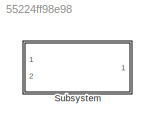
MODEL slx_55224ff98e98
KIND library
CONFIG AbsTol = auto
CONFIG EnableMultiTasking = off
CONFIG FixedStep = auto
CONFIG MaxStep = auto
CONFIG MinStep = auto
CONFIG RelTol = 1e-3
CONFIG SampleTimeConstraint = Unconstrained
CONFIG Solver = VariableStepAuto
CONFIG SolverName = VariableStepAuto
CONFIG StartTime = 0.0
CONFIG StopTime = 10.0
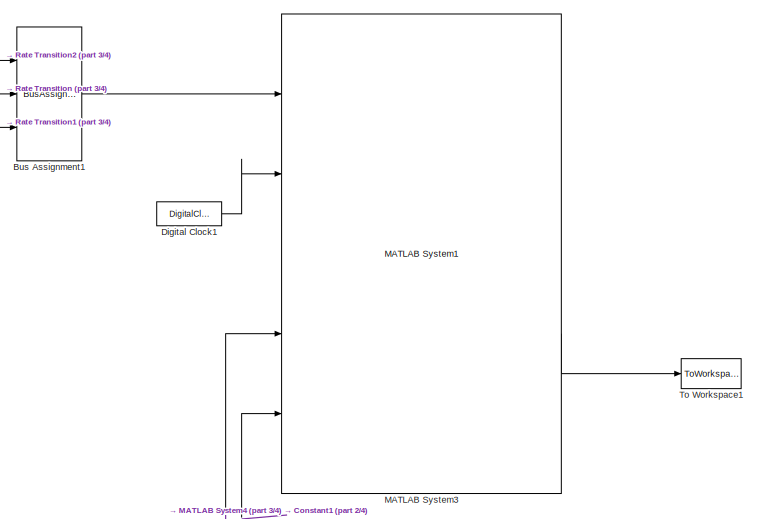
[diagram: Subsystem - part 1/4, top right region]
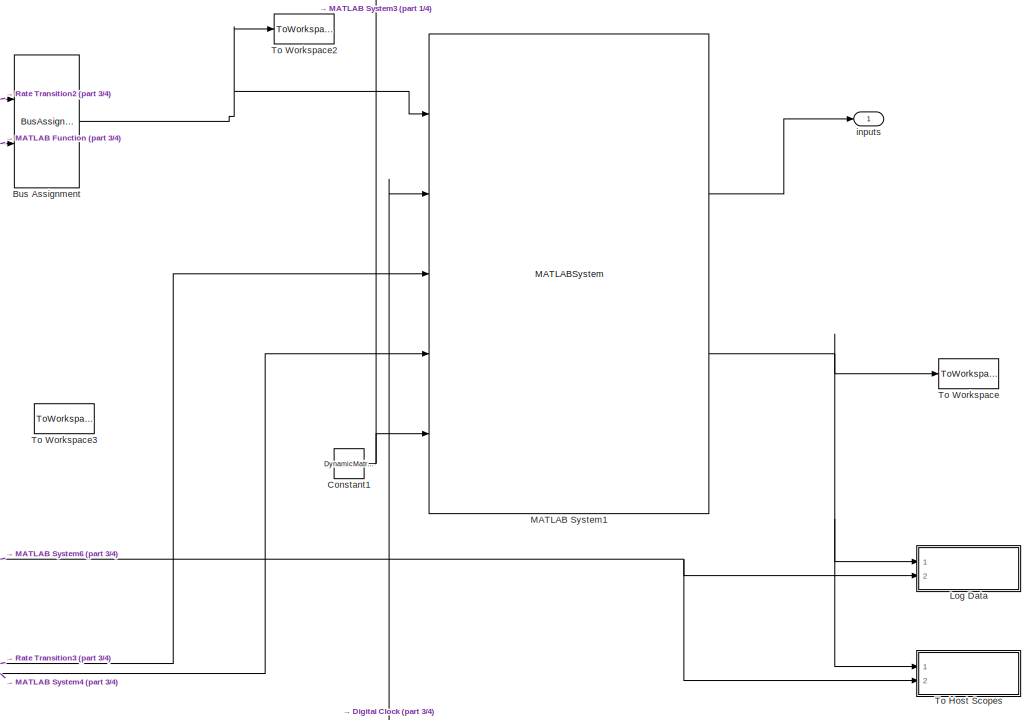
[diagram: Subsystem - part 2/4, bottom right region]
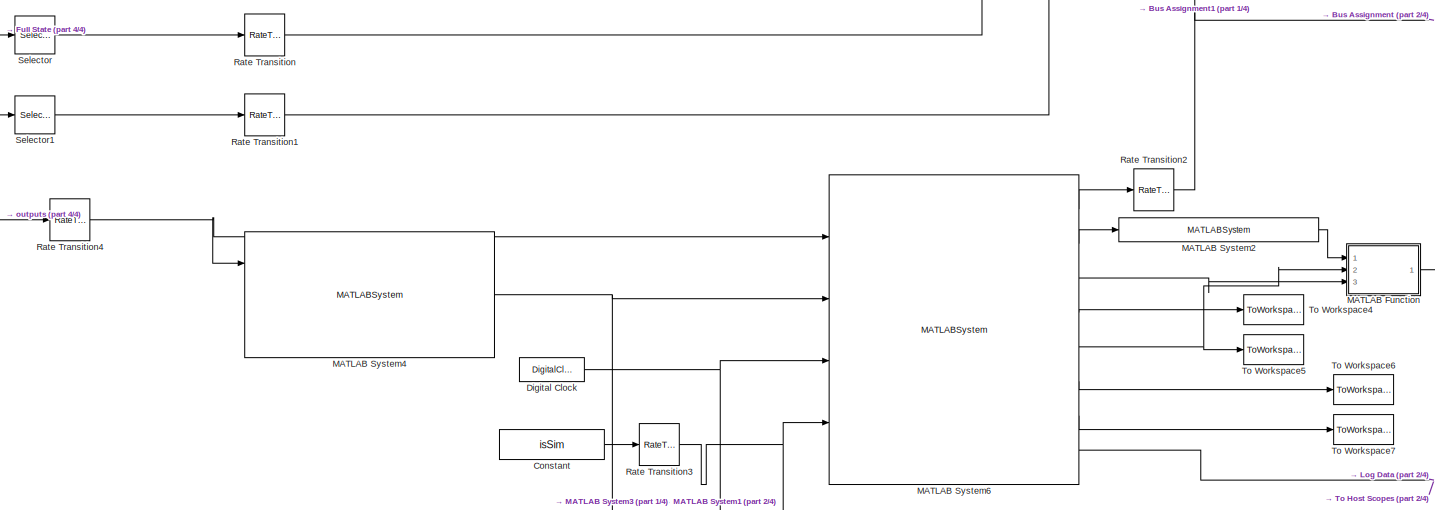
[diagram: Subsystem - part 3/4, bottom center region]
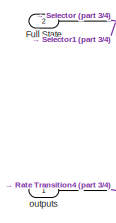
[diagram: Subsystem - part 4/4, middle left region]
BLOCK [SubSystem] Subsystem
  Ports = [2, 1]
  RequestExecContextInheritance = off
  Variant = off
BLOCK [BusAssignment] Subsystem/Bus Assignment
  AssignedSignals = dq
  Ports = [2, 1]
BLOCK [BusAssignment] Subsystem/Bus Assignment1
  AssignedSignals = q,dq
  Commented = on
  Ports = [3, 1]
BLOCK [Constant] Subsystem/Constant
  LockScale = on
  OutDataTypeStr = int8
  Value = isSim
BLOCK [Constant] Subsystem/Constant1
  OutDataTypeStr = Bus: cassieDynamicMatrixLibraryBus
  Value = DynamicMatrixLibrary
BLOCK [DigitalClock] Subsystem/Digital Clock
  SampleTime = sample_time
BLOCK [DigitalClock] Subsystem/Digital Clock1
  Commented = on
  SampleTime = sample_time
BLOCK [Inport] Subsystem/Full State
  IconDisplay = Port number
  Port = 2
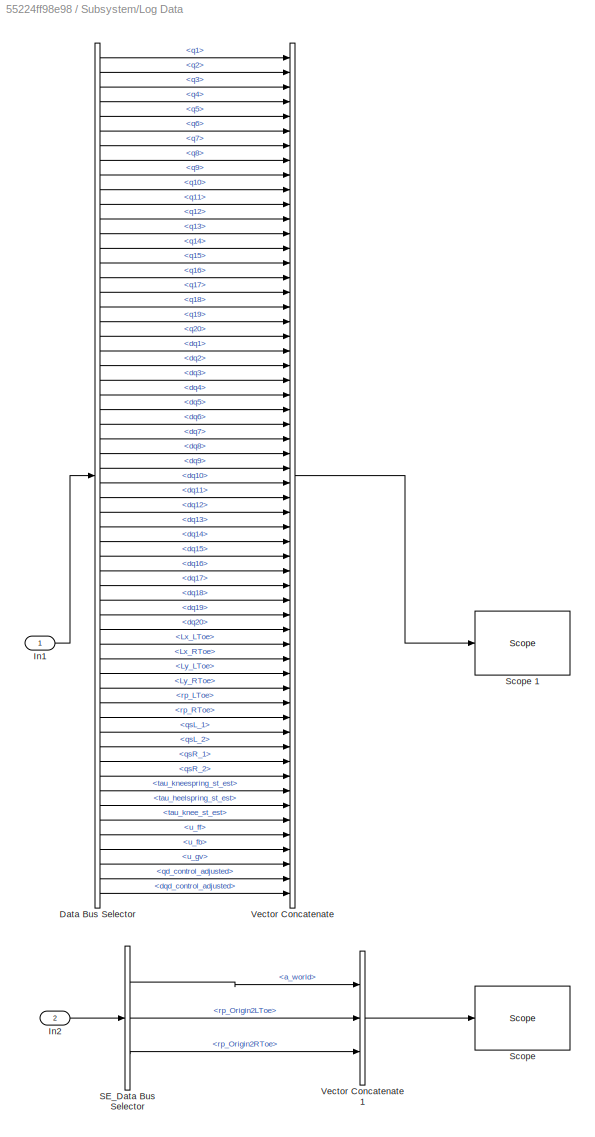
BLOCK [SubSystem] Subsystem/Log Data 
  Ports = [2]
  RequestExecContextInheritance = off
  Variant = off
BLOCK [BusSelector] Subsystem/Log Data /Data Bus Selector
  OutputAsBus = off
  OutputSignals = q1,q2,q3,q4,q5,q6,q7,q8,q9,q10,q11,q12,q13,q14,q15,q16,q17,q18,q19,q20,dq1,dq2,dq3,dq4,dq5,dq6,dq7,dq8,dq9,dq10,dq11,dq12,dq13,dq14,dq15,dq16,dq17,dq18,dq19,dq20,Lx_LToe,Lx_RToe,Ly_LToe,Ly_RToe,rp_LToe,rp_RToe,qsL_1,qsL_2,qsR_1,qsR_2,tau_kneespring_st_est,tau_heelspring_st_est,tau_knee_st_est,u_ff,u_fb,u_gv,qd_control_adjusted,dqd_control_adjusted
  Ports = [1, 58]
BLOCK [Inport] Subsystem/Log Data /In1
  IconDisplay = Port number
  OutDataTypeStr = Bus: cassieDataBus
BLOCK [Inport] Subsystem/Log Data /In2
  IconDisplay = Port number
  OutDataTypeStr = Bus: StateEstimator_DataBus
  Port = 2
BLOCK [BusSelector] Subsystem/Log Data /SE_Data Bus Selector
  OutputAsBus = off
  OutputSignals = a_world,rp_Origin2LToe,rp_Origin2RToe
  Ports = [1, 3]
BLOCK [Reference] Subsystem/Log Data /Scope   REF=slrtlib/Displays and
Logging/Scope 
  Ports = [1]
  SourceBlock = slrtlib/Displays and\nLogging/Scope
  SourceProductBaseCode = XP
  SourceProductName = Simulink Real-Time
  SourceType = xpcscopeblock
BLOCK [Reference] Subsystem/Log Data /Scope 1  REF=slrtlib/Displays and
Logging/Scope 
  Ports = [1]
  SourceBlock = slrtlib/Displays and\nLogging/Scope
  SourceProductBaseCode = XP
  SourceProductName = Simulink Real-Time
  SourceType = xpcscopeblock
BLOCK [Concatenate] Subsystem/Log Data /Vector Concatenate
  NumInputs = 58
  Ports = [58, 1]
BLOCK [Concatenate] Subsystem/Log Data /Vector Concatenate1
  NumInputs = 3
  Ports = [3, 1]
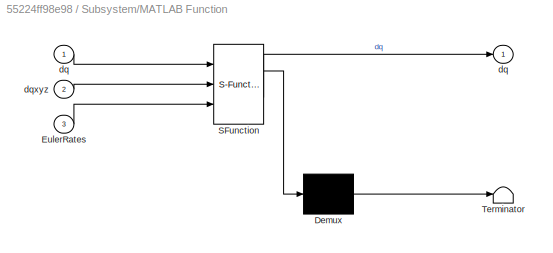
BLOCK [SubSystem] Subsystem/MATLAB Function
  ErrorFcn = Stateflow.Translate.translate
  PermitHierarchicalResolution = ExplicitOnly
  Ports = [3, 1]
  RequestExecContextInheritance = off
  SFBlockType = MATLAB Function
  TreatAsAtomicUnit = on
  Variant = off
BLOCK [Demux] Subsystem/MATLAB Function/ Demux 
  Outputs = 1
  Ports = [1, 1]
BLOCK [S-Function] Subsystem/MATLAB Function/ SFunction 
  EnableBusSupport = off
  FunctionName = sf_sfun
  PortCounts = [3 2]
  Ports = [3, 2]
  SFcnIsStateOwnerBlock = off
  SFunctionDeploymentMode = off
  Tag = Stateflow S-Function Cassie_CommandBlock_Library_5 17
BLOCK [Terminator] Subsystem/MATLAB Function/ Terminator 
BLOCK [Inport] Subsystem/MATLAB Function/EulerRates
  IconDisplay = Port number
  Port = 3
BLOCK [Outport] Subsystem/MATLAB Function/dq
  IconDisplay = Port number
BLOCK [Inport] Subsystem/MATLAB Function/dq 
  IconDisplay = Port number
BLOCK [Inport] Subsystem/MATLAB Function/dqxyz
  IconDisplay = Port number
  Port = 2
BLOCK [MATLABSystem] Subsystem/MATLAB System1
  CovPos_abduction = c_CovPos_abduction
  CovPos_knee = c_CovPos_knee
  CovPos_qj1 = c_CovPos_qj1
  CovPos_qj2 = c_CovPos_qj2
  CovPos_qj3 = c_CovPos_qj3
  CovPos_rotation = c_CovPos_rotation
  CovPos_thigh = c_CovPos_thigh
  CovPos_toe = c_CovPos_toe
  CovVel_abduction = c_CovVel_abduction
  CovVel_knee = c_CovVel_knee
  CovVel_qj1 = c_CovVel_qj1
  CovVel_qj2 = c_CovVel_qj2
  CovVel_qj3 = c_CovVel_qj3
  CovVel_rotation = c_CovVel_rotation
  CovVel_thigh = c_CovVel_thigh
  CovVel_toe = c_CovVel_toe
  Cov_Euler = c_Cov_Euler
  Cov_Euler_rates = c_Cov_Euler_rates
  Cov_Lx_LRToe_stTD0 = c_Cov_Lx_LRToe_stTD0
  Cov_Ly_LRToe_stTD0 = c_Cov_Ly_LRToe_stTD0
  Cov_rpx_LRToe_stTD0 = c_Cov_rpx_LRToe_stTD0
  Cov_rpy_LRToe_stTD0 = c_Cov_rpy_LRToe_stTD0
  IK_max_iter_num = c_IK_max_iter_num
  Kd_abduction = c_Kd_abduction
  Kd_knee = c_Kd_knee
  Kd_pitch = c_Kd_pitch
  Kd_roll = c_Kd_roll
  Kd_rotation = c_Kd_rotation
  Kd_st_rotation = c_Kd_st_rotation
  Kd_thigh = c_Kd_thigh
  Kd_toe = c_Kd_toe
  Kd_yaw = c_Kd_yaw
  Kp_abduction = c_Kp_abduction
  Kp_knee = c_Kp_knee
  Kp_pitch = c_Kp_pitch
  Kp_roll = c_Kp_roll
  Kp_rotation = c_Kp_rotation
  Kp_st_rotation = c_Kp_st_rotation
  Kp_thigh = c_Kp_thigh
  Kp_toe = c_Kp_toe
  Kp_yaw = c_Kp_yaw
  KsL_1 = c_KsL_1
  KsL_2 = c_KsL_2
  KsR_1 = c_KsR_1
  KsR_2 = c_KsR_2
  MaskDisplay = disp('Cassie_Controller_3');\nport_label('input',1,'EstStates');\nport_label('input',2,'t_total');\nport_label('input',3,'isSim');\nport_label('input',4,'IRC');\nport_label('input',5,'DynamicMatrixLibrary');\nport_label('output',1,'userInputs');\nport_label('output',2,'Data');
  MaskType = Cassie_Controller_3
  Ports = [5, 2]
  SimulateUsing = Interpreted execution
  System = Cassie_Controller_3
  Vx_tgd_offset = c_Vx_tgd_offset
  Vy_tgd_offset = c_Vy_tgd_offset
  adjusted_desired_roll_angle_fil_param = c_adjusted_desired_roll_angle_fil_param
  com_x_offset = c_com_x_offset
  knee_cp_time = c_knee_cp_time
  lateral_correction_gain = c_lateral_correction_gain
  max_st_rotation_motor_torque = c_max_st_rotation_motor_torque
  one_step_max_vel_gain = c_one_step_max_vel_gain
  rp_LRToe_fil_param = c_rp_LRToe_fil_param
  sample_time = sample_time
  st_rotation_torque_ramp_time = c_st_rotation_torque_ramp_time
  stance_thre_lb = c_stance_thre_lb
  stance_thre_lb_2 = c_stance_thre_lb_2
  stance_thre_ub = c_stance_thre_ub
  stance_thre_ub_2 = c_stance_thre_ub_2
  toe_leave_ground_lb = c_toe_leave_ground_lb
  toe_leave_ground_ub = c_toe_leave_ground_ub
  torque_transition_time = c_torque_transition_time
  u_abduction_swing_cp = c_u_abduction_swing_cp
  u_knee_cp = c_u_knee_cp
  u_pitch_cp = c_u_pitch_cp
  u_roll_cp = c_u_roll_cp
  use_dq_AR_for_PD = c_use_dq_AR_for_PD
  yaw_error_fil_param = c_yaw_error_fil_param
BLOCK [MATLABSystem] Subsystem/MATLAB System2
  MaskDisplay = disp('PolyRegressionFilter_2');\nport_label('input',1,'q');\nport_label('output',1,'dq');
  MaskType = PolyRegressionFilter_2
  Ports = [1, 1]
  SimulateUsing = Code generation
  System = PolyRegressionFilter_2
  delay = 0
  dop = c_dop
  history_length = c_history_length
  max_dop = 3
  max_history_length = 20
  sample_time = sample_time
  signal_dim = 20
BLOCK [Reference] Subsystem/MATLAB System3  REF=Cassie_CommandBlock_Library_3/Subsystem/MATLAB System1
  Commented = on
  Ports = [5, 2]
  SourceBlock = Cassie_CommandBlock_Library_3/Subsystem/MATLAB System1
  SourceType = Cassie_Controller_3
BLOCK [MATLABSystem] Subsystem/MATLAB System4
  H_fil_param = c_H_fil_param
  MaskDisplay = disp('RadioCommandInterpreter');\nport_label('input',1,'cassieOutputs');\nport_label('input',2,'t_total');\nport_label('input',3,'isSim');\nport_label('output',1,'IRC');
  MaskType = RadioCommandInterpreter
  Ports = [3, 1]
  SimulateUsing = Code generation
  System = RadioCommandInterpreter
  Vx_tgd_fil_param = c_Vx_tgd_fil_param
  Vy_tgd_avg_fil_param = c_Vy_tgd_avg_fil_param
  desired_com2stToe_lateral_fil_param = c_desired_com2stToe_lateral_fil_param
  max_turn_per_sec = c_max_turn_per_sec
  sample_time = sample_time
BLOCK [MATLABSystem] Subsystem/MATLAB System6
  CovPos_abduction = c_CovPos_abduction
  CovPos_knee = c_CovPos_knee
  CovPos_qj1 = c_CovPos_qj1
  CovPos_qj2 = c_CovPos_qj2
  CovPos_qj3 = c_CovPos_qj3
  CovPos_rotation = c_CovPos_rotation
  CovPos_thigh = c_CovPos_thigh
  CovPos_toe = c_CovPos_toe
  Cov_Euler = c_Cov_Euler
  Cov_LinearAccelerator_xy = c_Cov_LinearAccelerator_xy
  Cov_LinearAccelerator_z = c_Cov_LinearAccelerator_z
  Cov_rpx_LRToe_body = c_Cov_rpx_LRToe_body
  Cov_rpy_LRToe_body = c_Cov_rpy_LRToe_body
  Cov_rpz_LRToe_body = c_Cov_rpz_LRToe_body
  KsL_1 = c_KsL_1
  KsL_2 = c_KsL_2
  KsR_1 = c_KsR_1
  KsR_2 = c_KsR_2
  MaskDisplay = disp('StateEstimator_3');\nport_label('input',1,'cassieOutputs');\nport_label('input',2,'IRC');\nport_label('input',3,'t_total');\nport_label('input',4,'isSim');\nport_label('output',1,'EstStates');\nport_label('output',2,'q');\nport_label('output',3,'EulerRates');\nport_label('output',4,'qxyz');\nport_label('output',5,'dqxyz');\nport_label('output',6,'IT');\nport_label('output',7,'a_world');\nport_label('out...<+30ch>
  MaskType = StateEstimator_3
  Ports = [4, 8]
  SimulateUsing = Code generation
  System = StateEstimator_3
  Tx_slide_toe_2 = c_Tx_slide_toe_2
  Ty_slide_toe_2 = c_Ty_slide_toe_2
  Tz_slide_toe_2 = c_Tz_slide_toe_2
  sample_time = sample_time
  vx_slide_toe_1 = c_vx_slide_toe_1
  vx_slide_toe_2 = c_vx_slide_toe_2
  vy_slide_toe_1 = c_vy_slide_toe_1
  vy_slide_toe_2 = c_vy_slide_toe_2
  vz_slide_toe_1 = c_vz_slide_toe_1
  vz_slide_toe_2 = c_vz_slide_toe_2
BLOCK [RateTransition] Subsystem/Rate Transition
  OutPortSampleTime = sample_time
BLOCK [RateTransition] Subsystem/Rate Transition1
  OutPortSampleTime = sample_time
BLOCK [RateTransition] Subsystem/Rate Transition2
  OutPortSampleTime = sample_time
BLOCK [RateTransition] Subsystem/Rate Transition3
  OutPortSampleTime = sample_time
BLOCK [RateTransition] Subsystem/Rate Transition4
  OutPortSampleTime = sample_time
BLOCK [Selector] Subsystem/Selector
  IndexOptions = Index vector (dialog)
  Indices = 1:20
  InputPortWidth = 40
  OutputSizes = 1
  Ports = [1, 1]
BLOCK [Selector] Subsystem/Selector1
  IndexOptions = Index vector (dialog)
  Indices = 21:40
  InputPortWidth = 40
  OutputSizes = 1
  Ports = [1, 1]
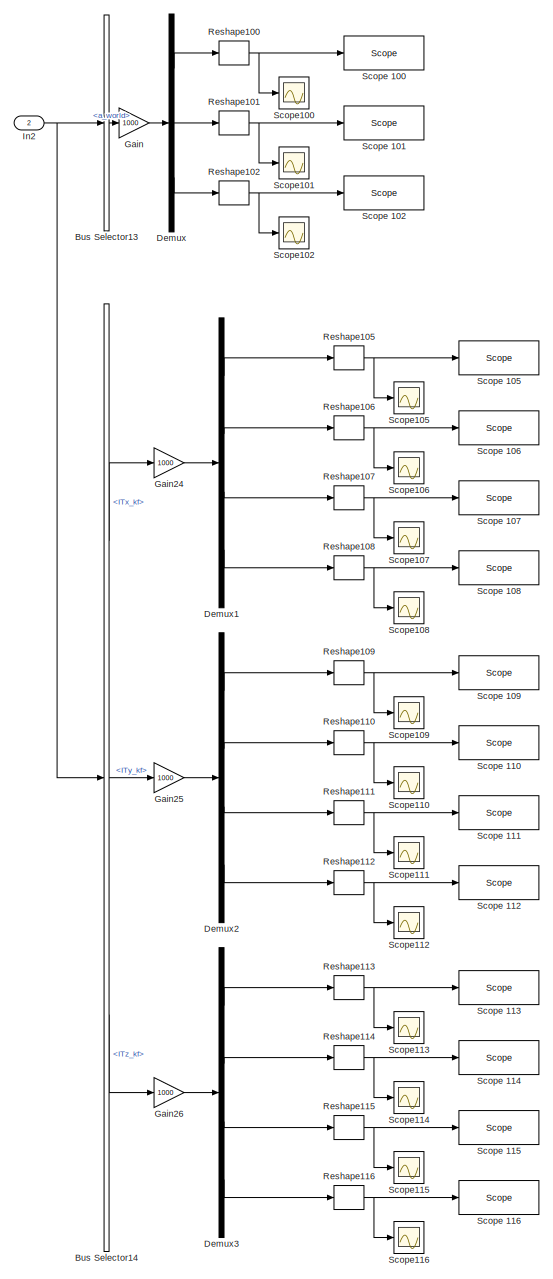
[diagram: Subsystem/To Host Scopes  - part 1/12, top right region]
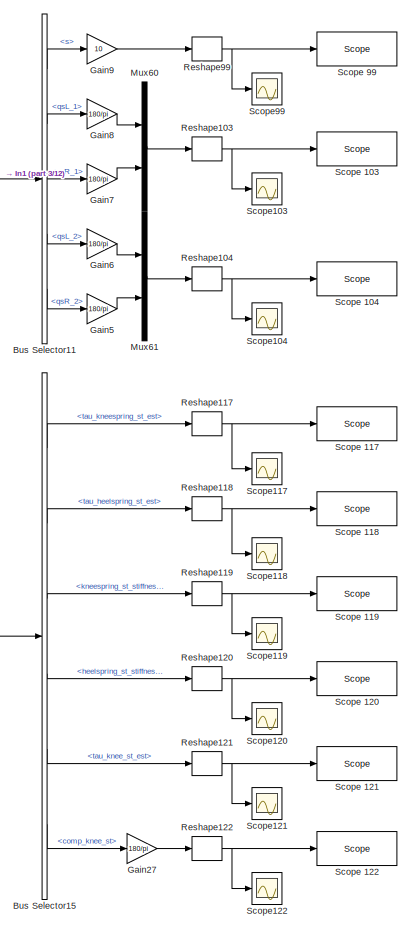
[diagram: Subsystem/To Host Scopes  - part 2/12, top center region]
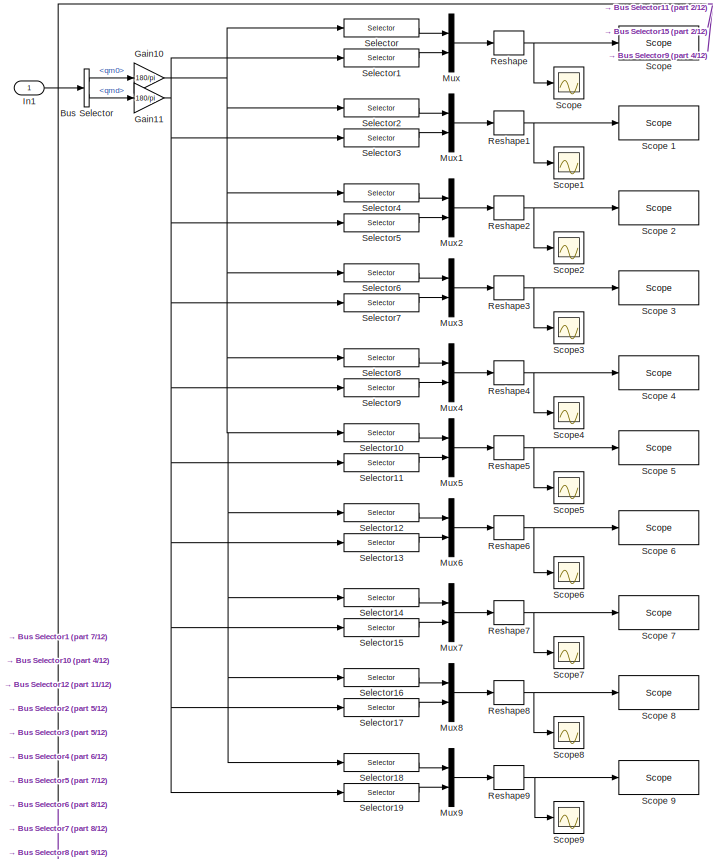
[diagram: Subsystem/To Host Scopes  - part 3/12, top left region]
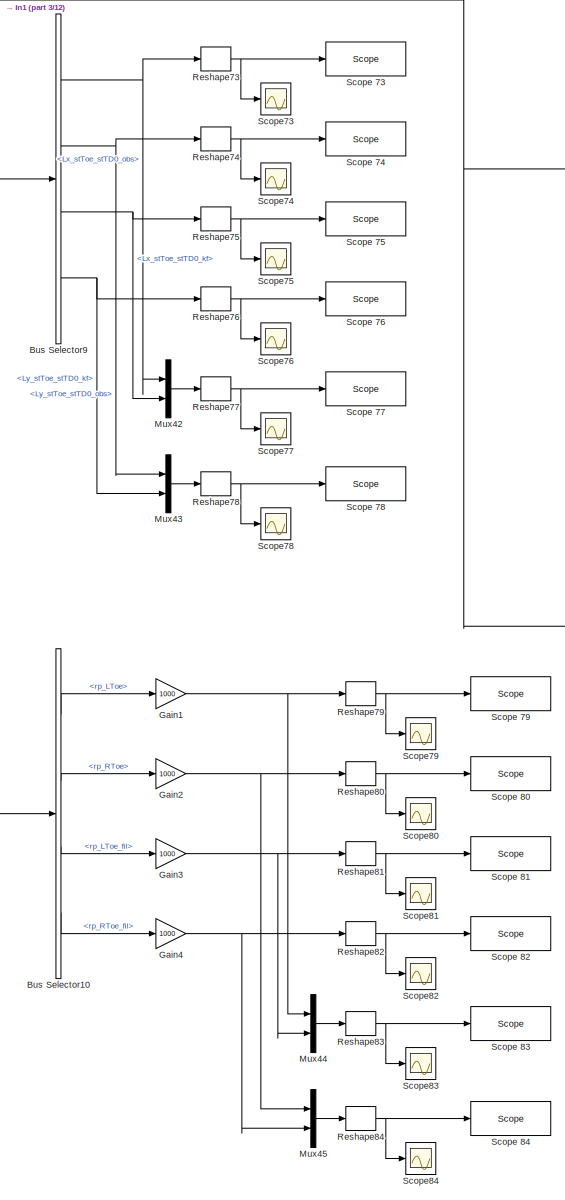
[diagram: Subsystem/To Host Scopes  - part 4/12, top center region]
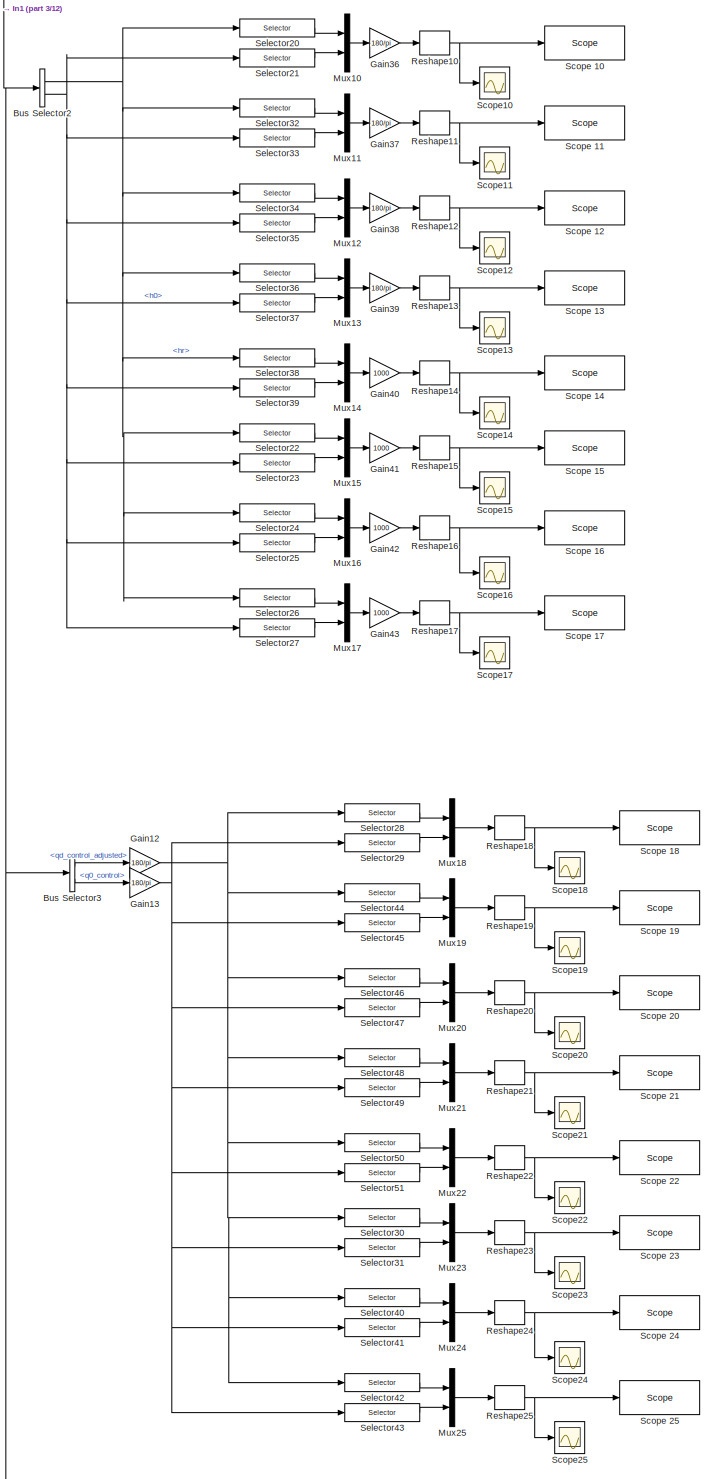
[diagram: Subsystem/To Host Scopes  - part 5/12, top left region]
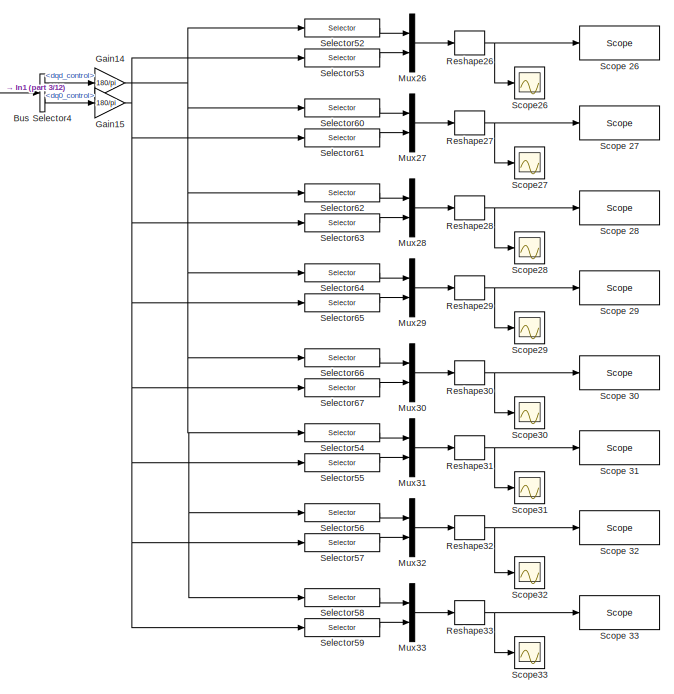
[diagram: Subsystem/To Host Scopes  - part 6/12, top left region]
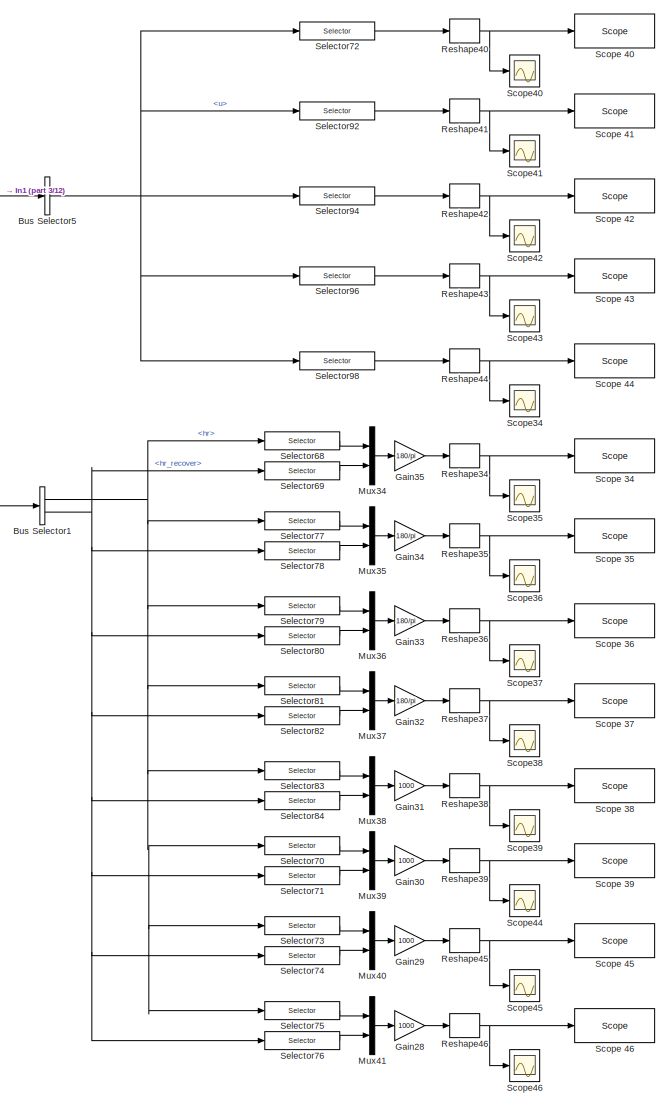
[diagram: Subsystem/To Host Scopes  - part 7/12, middle left region]
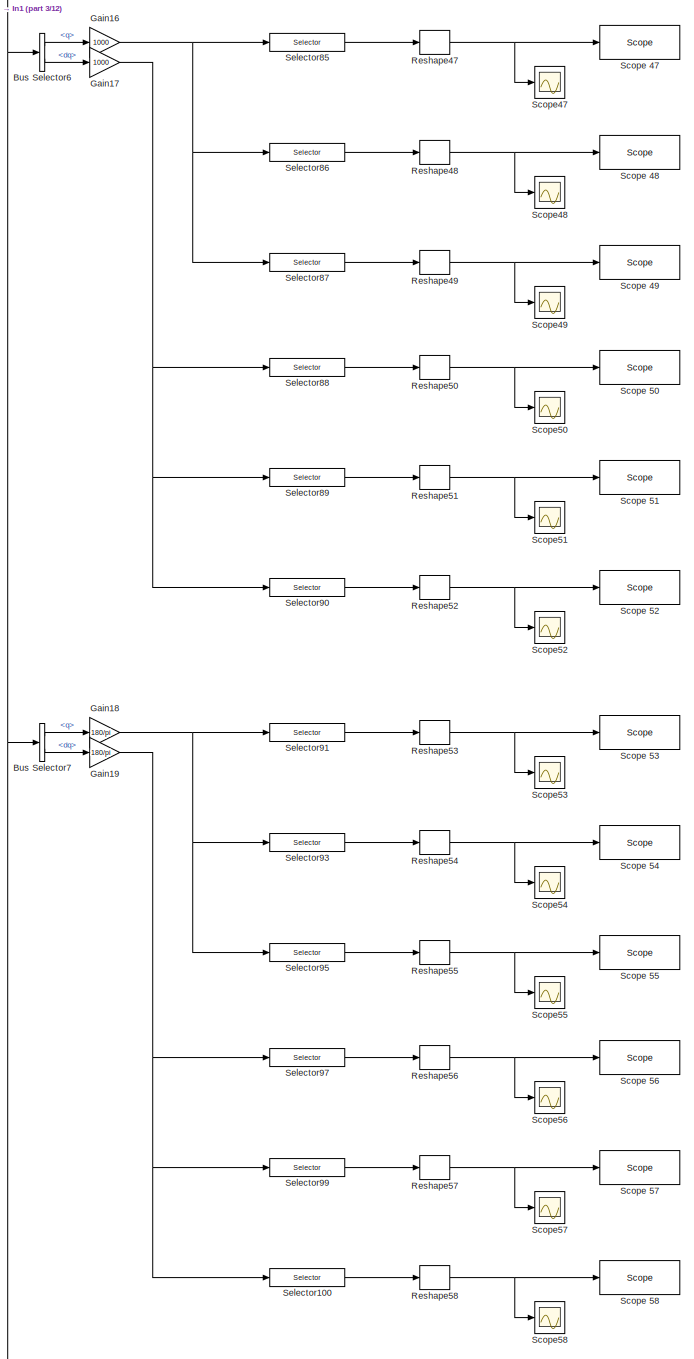
[diagram: Subsystem/To Host Scopes  - part 8/12, middle left region]
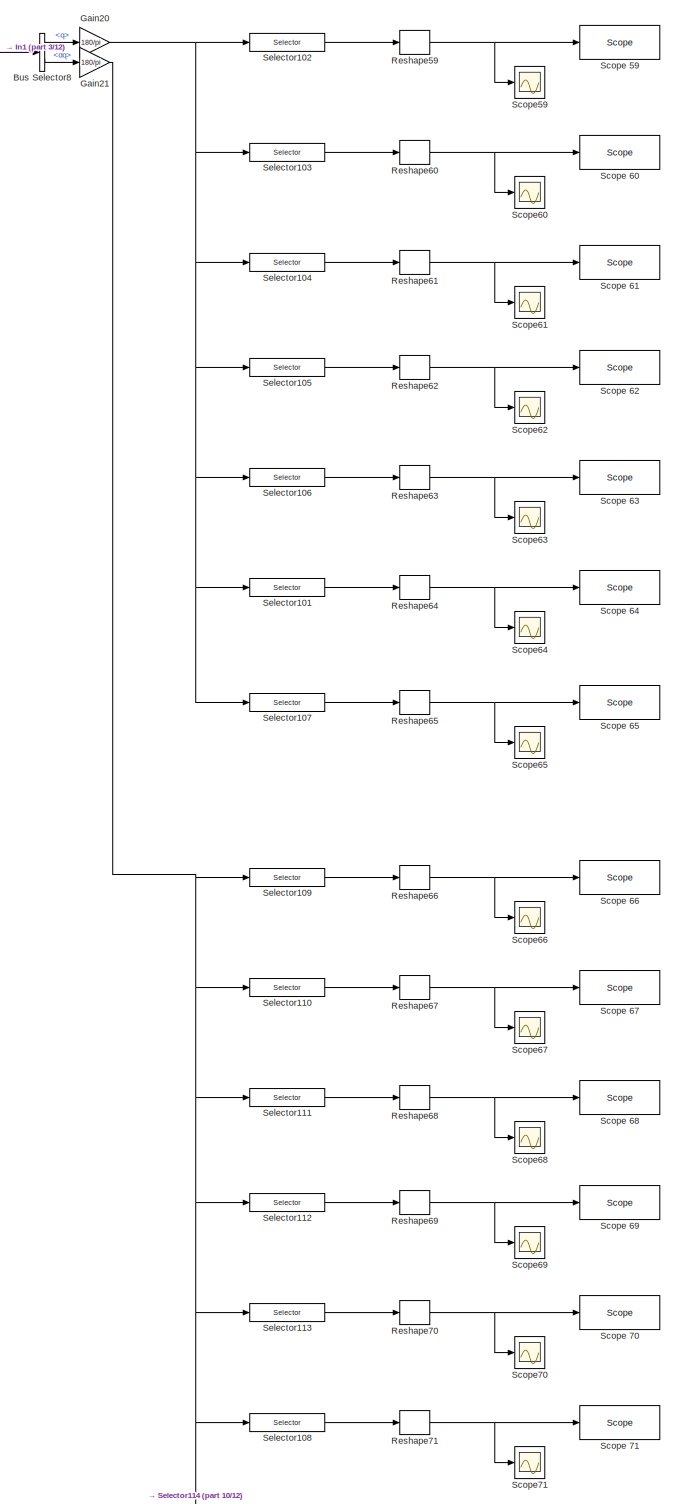
[diagram: Subsystem/To Host Scopes  - part 9/12, bottom left region]
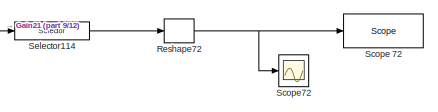
[diagram: Subsystem/To Host Scopes  - part 10/12, bottom left region]
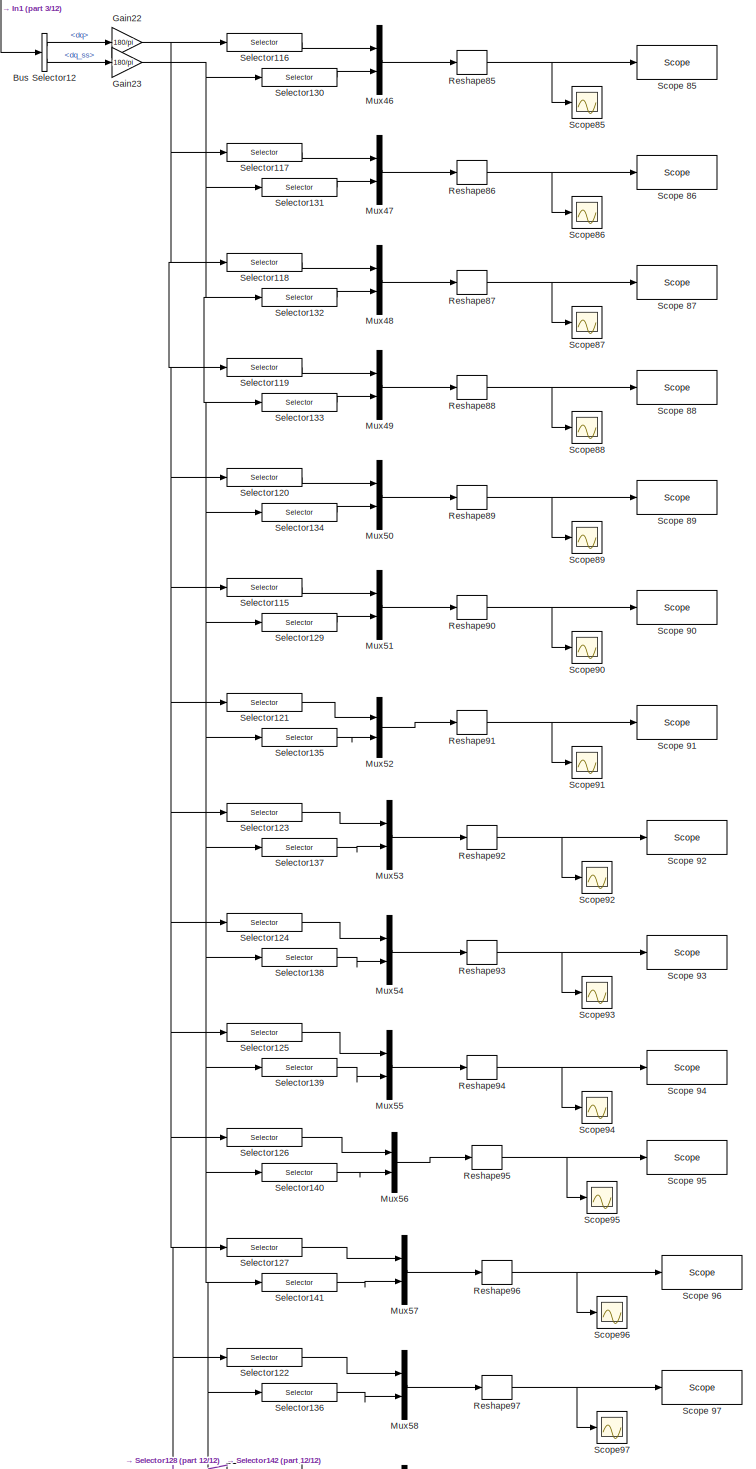
[diagram: Subsystem/To Host Scopes  - part 11/12, bottom left region]
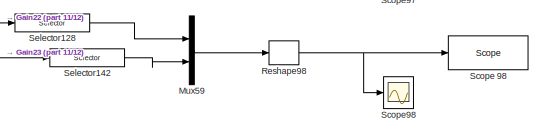
[diagram: Subsystem/To Host Scopes  - part 12/12, bottom left region]
BLOCK [SubSystem] Subsystem/To Host Scopes 
  Ports = [2]
  RequestExecContextInheritance = off
  Variant = off
BLOCK [BusSelector] Subsystem/To Host Scopes /Bus Selector
  OutputAsBus = off
  OutputSignals = qm0,qmd
  Ports = [1, 2]
BLOCK [BusSelector] Subsystem/To Host Scopes /Bus Selector1
  OutputAsBus = off
  OutputSignals = hr,hr_recover
  Ports = [1, 2]
BLOCK [BusSelector] Subsystem/To Host Scopes /Bus Selector10
  OutputAsBus = off
  OutputSignals = rp_LToe,rp_RToe,rp_LToe_fil,rp_RToe_fil
  Ports = [1, 4]
BLOCK [BusSelector] Subsystem/To Host Scopes /Bus Selector11
  OutputAsBus = off
  OutputSignals = s,qsL_1,qsR_1,qsL_2,qsR_2
  Ports = [1, 5]
BLOCK [BusSelector] Subsystem/To Host Scopes /Bus Selector12
  OutputAsBus = off
  OutputSignals = dq,dq_ss
  Ports = [1, 2]
BLOCK [BusSelector] Subsystem/To Host Scopes /Bus Selector13
  OutputAsBus = off
  OutputSignals = a_world
  Ports = [1, 1]
BLOCK [BusSelector] Subsystem/To Host Scopes /Bus Selector14
  OutputAsBus = off
  OutputSignals = ITx_kf,ITy_kf,ITz_kf
  Ports = [1, 3]
BLOCK [BusSelector] Subsystem/To Host Scopes /Bus Selector15
  OutputAsBus = off
  OutputSignals = tau_kneespring_st_est,tau_heelspring_st_est,kneespring_st_stiffness,heelspring_st_stiffness,tau_knee_st_est,comp_knee_st
  Ports = [1, 6]
BLOCK [BusSelector] Subsystem/To Host Scopes /Bus Selector2
  OutputAsBus = off
  OutputSignals = hr,h0
  Ports = [1, 2]
BLOCK [BusSelector] Subsystem/To Host Scopes /Bus Selector3
  OutputAsBus = off
  OutputSignals = qd_control_adjusted,q0_control
  Ports = [1, 2]
BLOCK [BusSelector] Subsystem/To Host Scopes /Bus Selector4
  OutputAsBus = off
  OutputSignals = dqd_control,dq0_control
  Ports = [1, 2]
BLOCK [BusSelector] Subsystem/To Host Scopes /Bus Selector5
  OutputAsBus = off
  OutputSignals = u
  Ports = [1, 1]
BLOCK [BusSelector] Subsystem/To Host Scopes /Bus Selector6
  OutputAsBus = off
  OutputSignals = q,dq
  Ports = [1, 2]
BLOCK [BusSelector] Subsystem/To Host Scopes /Bus Selector7
  OutputAsBus = off
  OutputSignals = q,dq
  Ports = [1, 2]
BLOCK [BusSelector] Subsystem/To Host Scopes /Bus Selector8
  OutputAsBus = off
  OutputSignals = q,dq
  Ports = [1, 2]
BLOCK [BusSelector] Subsystem/To Host Scopes /Bus Selector9
  OutputAsBus = off
  OutputSignals = Lx_stToe_stTD0_obs,Ly_stToe_stTD0_obs,Lx_stToe_stTD0_kf,Ly_stToe_stTD0_kf
  Ports = [1, 4]
BLOCK [Demux] Subsystem/To Host Scopes /Demux
  DisplayOption = bar
  Outputs = 3
  Ports = [1, 3]
BLOCK [Demux] Subsystem/To Host Scopes /Demux1
  DisplayOption = bar
  Ports = [1, 4]
BLOCK [Demux] Subsystem/To Host Scopes /Demux2
  DisplayOption = bar
  Ports = [1, 4]
BLOCK [Demux] Subsystem/To Host Scopes /Demux3
  DisplayOption = bar
  Ports = [1, 4]
BLOCK [Gain] Subsystem/To Host Scopes /Gain
  Gain = 1000
  OutDataTypeStr = Inherit: Inherit via internal rule
  ParamDataTypeStr = Inherit: Inherit via internal rule
  SaturateOnIntegerOverflow = off
BLOCK [Gain] Subsystem/To Host Scopes /Gain1
  Gain = 1000
  OutDataTypeStr = Inherit: Inherit via internal rule
  ParamDataTypeStr = Inherit: Inherit via internal rule
  SaturateOnIntegerOverflow = off
BLOCK [Gain] Subsystem/To Host Scopes /Gain10
  Gain = 180/pi
  OutDataTypeStr = Inherit: Inherit via internal rule
  ParamDataTypeStr = Inherit: Inherit via internal rule
  SaturateOnIntegerOverflow = off
BLOCK [Gain] Subsystem/To Host Scopes /Gain11
  Gain = 180/pi
  OutDataTypeStr = Inherit: Inherit via internal rule
  ParamDataTypeStr = Inherit: Inherit via internal rule
  SaturateOnIntegerOverflow = off
BLOCK [Gain] Subsystem/To Host Scopes /Gain12
  Gain = 180/pi
  OutDataTypeStr = Inherit: Inherit via internal rule
  ParamDataTypeStr = Inherit: Inherit via internal rule
  SaturateOnIntegerOverflow = off
BLOCK [Gain] Subsystem/To Host Scopes /Gain13
  Gain = 180/pi
  OutDataTypeStr = Inherit: Inherit via internal rule
  ParamDataTypeStr = Inherit: Inherit via internal rule
  SaturateOnIntegerOverflow = off
BLOCK [Gain] Subsystem/To Host Scopes /Gain14
  Gain = 180/pi
  OutDataTypeStr = Inherit: Inherit via internal rule
  ParamDataTypeStr = Inherit: Inherit via internal rule
  SaturateOnIntegerOverflow = off
BLOCK [Gain] Subsystem/To Host Scopes /Gain15
  Gain = 180/pi
  OutDataTypeStr = Inherit: Inherit via internal rule
  ParamDataTypeStr = Inherit: Inherit via internal rule
  SaturateOnIntegerOverflow = off
BLOCK [Gain] Subsystem/To Host Scopes /Gain16
  Gain = 1000
  OutDataTypeStr = Inherit: Inherit via internal rule
  ParamDataTypeStr = Inherit: Inherit via internal rule
  SaturateOnIntegerOverflow = off
BLOCK [Gain] Subsystem/To Host Scopes /Gain17
  Gain = 1000
  OutDataTypeStr = Inherit: Inherit via internal rule
  ParamDataTypeStr = Inherit: Inherit via internal rule
  SaturateOnIntegerOverflow = off
BLOCK [Gain] Subsystem/To Host Scopes /Gain18
  Gain = 180/pi
  OutDataTypeStr = Inherit: Inherit via internal rule
  ParamDataTypeStr = Inherit: Inherit via internal rule
  SaturateOnIntegerOverflow = off
BLOCK [Gain] Subsystem/To Host Scopes /Gain19
  Gain = 180/pi
  OutDataTypeStr = Inherit: Inherit via internal rule
  ParamDataTypeStr = Inherit: Inherit via internal rule
  SaturateOnIntegerOverflow = off
BLOCK [Gain] Subsystem/To Host Scopes /Gain2
  Gain = 1000
  OutDataTypeStr = Inherit: Inherit via internal rule
  ParamDataTypeStr = Inherit: Inherit via internal rule
  SaturateOnIntegerOverflow = off
BLOCK [Gain] Subsystem/To Host Scopes /Gain20
  Gain = 180/pi
  OutDataTypeStr = Inherit: Inherit via internal rule
  ParamDataTypeStr = Inherit: Inherit via internal rule
  SaturateOnIntegerOverflow = off
BLOCK [Gain] Subsystem/To Host Scopes /Gain21
  Gain = 180/pi
  OutDataTypeStr = Inherit: Inherit via internal rule
  ParamDataTypeStr = Inherit: Inherit via internal rule
  SaturateOnIntegerOverflow = off
BLOCK [Gain] Subsystem/To Host Scopes /Gain22
  Gain = 180/pi
  OutDataTypeStr = Inherit: Inherit via internal rule
  ParamDataTypeStr = Inherit: Inherit via internal rule
  SaturateOnIntegerOverflow = off
BLOCK [Gain] Subsystem/To Host Scopes /Gain23
  Gain = 180/pi
  OutDataTypeStr = Inherit: Inherit via internal rule
  ParamDataTypeStr = Inherit: Inherit via internal rule
  SaturateOnIntegerOverflow = off
BLOCK [Gain] Subsystem/To Host Scopes /Gain24
  Gain = 1000
  OutDataTypeStr = Inherit: Inherit via internal rule
  ParamDataTypeStr = Inherit: Inherit via internal rule
  SaturateOnIntegerOverflow = off
BLOCK [Gain] Subsystem/To Host Scopes /Gain25
  Gain = 1000
  OutDataTypeStr = Inherit: Inherit via internal rule
  ParamDataTypeStr = Inherit: Inherit via internal rule
  SaturateOnIntegerOverflow = off
BLOCK [Gain] Subsystem/To Host Scopes /Gain26
  Gain = 1000
  OutDataTypeStr = Inherit: Inherit via internal rule
  ParamDataTypeStr = Inherit: Inherit via internal rule
  SaturateOnIntegerOverflow = off
BLOCK [Gain] Subsystem/To Host Scopes /Gain27
  Gain = 180/pi
  OutDataTypeStr = Inherit: Inherit via internal rule
  ParamDataTypeStr = Inherit: Inherit via internal rule
  SaturateOnIntegerOverflow = off
BLOCK [Gain] Subsystem/To Host Scopes /Gain28
  Gain = 1000
  OutDataTypeStr = Inherit: Inherit via internal rule
  ParamDataTypeStr = Inherit: Inherit via internal rule
  SaturateOnIntegerOverflow = off
BLOCK [Gain] Subsystem/To Host Scopes /Gain29
  Gain = 1000
  OutDataTypeStr = Inherit: Inherit via internal rule
  ParamDataTypeStr = Inherit: Inherit via internal rule
  SaturateOnIntegerOverflow = off
BLOCK [Gain] Subsystem/To Host Scopes /Gain3
  Gain = 1000
  OutDataTypeStr = Inherit: Inherit via internal rule
  ParamDataTypeStr = Inherit: Inherit via internal rule
  SaturateOnIntegerOverflow = off
BLOCK [Gain] Subsystem/To Host Scopes /Gain30
  Gain = 1000
  OutDataTypeStr = Inherit: Inherit via internal rule
  ParamDataTypeStr = Inherit: Inherit via internal rule
  SaturateOnIntegerOverflow = off
BLOCK [Gain] Subsystem/To Host Scopes /Gain31
  Gain = 1000
  OutDataTypeStr = Inherit: Inherit via internal rule
  ParamDataTypeStr = Inherit: Inherit via internal rule
  SaturateOnIntegerOverflow = off
BLOCK [Gain] Subsystem/To Host Scopes /Gain32
  Gain = 180/pi
  OutDataTypeStr = Inherit: Inherit via internal rule
  ParamDataTypeStr = Inherit: Inherit via internal rule
  SaturateOnIntegerOverflow = off
BLOCK [Gain] Subsystem/To Host Scopes /Gain33
  Gain = 180/pi
  OutDataTypeStr = Inherit: Inherit via internal rule
  ParamDataTypeStr = Inherit: Inherit via internal rule
  SaturateOnIntegerOverflow = off
BLOCK [Gain] Subsystem/To Host Scopes /Gain34
  Gain = 180/pi
  OutDataTypeStr = Inherit: Inherit via internal rule
  ParamDataTypeStr = Inherit: Inherit via internal rule
  SaturateOnIntegerOverflow = off
BLOCK [Gain] Subsystem/To Host Scopes /Gain35
  Gain = 180/pi
  OutDataTypeStr = Inherit: Inherit via internal rule
  ParamDataTypeStr = Inherit: Inherit via internal rule
  SaturateOnIntegerOverflow = off
BLOCK [Gain] Subsystem/To Host Scopes /Gain36
  Gain = 180/pi
  OutDataTypeStr = Inherit: Inherit via internal rule
  ParamDataTypeStr = Inherit: Inherit via internal rule
  SaturateOnIntegerOverflow = off
BLOCK [Gain] Subsystem/To Host Scopes /Gain37
  Gain = 180/pi
  OutDataTypeStr = Inherit: Inherit via internal rule
  ParamDataTypeStr = Inherit: Inherit via internal rule
  SaturateOnIntegerOverflow = off
BLOCK [Gain] Subsystem/To Host Scopes /Gain38
  Gain = 180/pi
  OutDataTypeStr = Inherit: Inherit via internal rule
  ParamDataTypeStr = Inherit: Inherit via internal rule
  SaturateOnIntegerOverflow = off
BLOCK [Gain] Subsystem/To Host Scopes /Gain39
  Gain = 180/pi
  OutDataTypeStr = Inherit: Inherit via internal rule
  ParamDataTypeStr = Inherit: Inherit via internal rule
  SaturateOnIntegerOverflow = off
BLOCK [Gain] Subsystem/To Host Scopes /Gain4
  Gain = 1000
  OutDataTypeStr = Inherit: Inherit via internal rule
  ParamDataTypeStr = Inherit: Inherit via internal rule
  SaturateOnIntegerOverflow = off
BLOCK [Gain] Subsystem/To Host Scopes /Gain40
  Gain = 1000
  OutDataTypeStr = Inherit: Inherit via internal rule
  ParamDataTypeStr = Inherit: Inherit via internal rule
  SaturateOnIntegerOverflow = off
BLOCK [Gain] Subsystem/To Host Scopes /Gain41
  Gain = 1000
  OutDataTypeStr = Inherit: Inherit via internal rule
  ParamDataTypeStr = Inherit: Inherit via internal rule
  SaturateOnIntegerOverflow = off
BLOCK [Gain] Subsystem/To Host Scopes /Gain42
  Gain = 1000
  OutDataTypeStr = Inherit: Inherit via internal rule
  ParamDataTypeStr = Inherit: Inherit via internal rule
  SaturateOnIntegerOverflow = off
BLOCK [Gain] Subsystem/To Host Scopes /Gain43
  Gain = 1000
  OutDataTypeStr = Inherit: Inherit via internal rule
  ParamDataTypeStr = Inherit: Inherit via internal rule
  SaturateOnIntegerOverflow = off
BLOCK [Gain] Subsystem/To Host Scopes /Gain5
  Gain = 180/pi
  OutDataTypeStr = Inherit: Inherit via internal rule
  ParamDataTypeStr = Inherit: Inherit via internal rule
  SaturateOnIntegerOverflow = off
BLOCK [Gain] Subsystem/To Host Scopes /Gain6
  Gain = 180/pi
  OutDataTypeStr = Inherit: Inherit via internal rule
  ParamDataTypeStr = Inherit: Inherit via internal rule
  SaturateOnIntegerOverflow = off
BLOCK [Gain] Subsystem/To Host Scopes /Gain7
  Gain = 180/pi
  OutDataTypeStr = Inherit: Inherit via internal rule
  ParamDataTypeStr = Inherit: Inherit via internal rule
  SaturateOnIntegerOverflow = off
BLOCK [Gain] Subsystem/To Host Scopes /Gain8
  Gain = 180/pi
  OutDataTypeStr = Inherit: Inherit via internal rule
  ParamDataTypeStr = Inherit: Inherit via internal rule
  SaturateOnIntegerOverflow = off
BLOCK [Gain] Subsystem/To Host Scopes /Gain9
  Gain = 10
  OutDataTypeStr = Inherit: Inherit via internal rule
  ParamDataTypeStr = Inherit: Inherit via internal rule
  SaturateOnIntegerOverflow = off
BLOCK [Inport] Subsystem/To Host Scopes /In1
  IconDisplay = Port number
BLOCK [Inport] Subsystem/To Host Scopes /In2
  IconDisplay = Port number
  OutDataTypeStr = Bus: StateEstimator_DataBus
  Port = 2
BLOCK [Mux] Subsystem/To Host Scopes /Mux
  DisplayOption = bar
  Inputs = 2
  Ports = [2, 1]
BLOCK [Mux] Subsystem/To Host Scopes /Mux1
  DisplayOption = bar
  Inputs = 2
  Ports = [2, 1]
BLOCK [Mux] Subsystem/To Host Scopes /Mux10
  DisplayOption = bar
  Inputs = 2
  Ports = [2, 1]
BLOCK [Mux] Subsystem/To Host Scopes /Mux11
  DisplayOption = bar
  Inputs = 2
  Ports = [2, 1]
BLOCK [Mux] Subsystem/To Host Scopes /Mux12
  DisplayOption = bar
  Inputs = 2
  Ports = [2, 1]
BLOCK [Mux] Subsystem/To Host Scopes /Mux13
  DisplayOption = bar
  Inputs = 2
  Ports = [2, 1]
BLOCK [Mux] Subsystem/To Host Scopes /Mux14
  DisplayOption = bar
  Inputs = 2
  Ports = [2, 1]
BLOCK [Mux] Subsystem/To Host Scopes /Mux15
  DisplayOption = bar
  Inputs = 2
  Ports = [2, 1]
BLOCK [Mux] Subsystem/To Host Scopes /Mux16
  DisplayOption = bar
  Inputs = 2
  Ports = [2, 1]
BLOCK [Mux] Subsystem/To Host Scopes /Mux17
  DisplayOption = bar
  Inputs = 2
  Ports = [2, 1]
BLOCK [Mux] Subsystem/To Host Scopes /Mux18
  DisplayOption = bar
  Inputs = 2
  Ports = [2, 1]
BLOCK [Mux] Subsystem/To Host Scopes /Mux19
  DisplayOption = bar
  Inputs = 2
  Ports = [2, 1]
BLOCK [Mux] Subsystem/To Host Scopes /Mux2
  DisplayOption = bar
  Inputs = 2
  Ports = [2, 1]
BLOCK [Mux] Subsystem/To Host Scopes /Mux20
  DisplayOption = bar
  Inputs = 2
  Ports = [2, 1]
BLOCK [Mux] Subsystem/To Host Scopes /Mux21
  DisplayOption = bar
  Inputs = 2
  Ports = [2, 1]
BLOCK [Mux] Subsystem/To Host Scopes /Mux22
  DisplayOption = bar
  Inputs = 2
  Ports = [2, 1]
BLOCK [Mux] Subsystem/To Host Scopes /Mux23
  DisplayOption = bar
  Inputs = 2
  Ports = [2, 1]
BLOCK [Mux] Subsystem/To Host Scopes /Mux24
  DisplayOption = bar
  Inputs = 2
  Ports = [2, 1]
BLOCK [Mux] Subsystem/To Host Scopes /Mux25
  DisplayOption = bar
  Inputs = 2
  Ports = [2, 1]
BLOCK [Mux] Subsystem/To Host Scopes /Mux26
  DisplayOption = bar
  Inputs = 2
  Ports = [2, 1]
BLOCK [Mux] Subsystem/To Host Scopes /Mux27
  DisplayOption = bar
  Inputs = 2
  Ports = [2, 1]
BLOCK [Mux] Subsystem/To Host Scopes /Mux28
  DisplayOption = bar
  Inputs = 2
  Ports = [2, 1]
BLOCK [Mux] Subsystem/To Host Scopes /Mux29
  DisplayOption = bar
  Inputs = 2
  Ports = [2, 1]
BLOCK [Mux] Subsystem/To Host Scopes /Mux3
  DisplayOption = bar
  Inputs = 2
  Ports = [2, 1]
BLOCK [Mux] Subsystem/To Host Scopes /Mux30
  DisplayOption = bar
  Inputs = 2
  Ports = [2, 1]
BLOCK [Mux] Subsystem/To Host Scopes /Mux31
  DisplayOption = bar
  Inputs = 2
  Ports = [2, 1]
BLOCK [Mux] Subsystem/To Host Scopes /Mux32
  DisplayOption = bar
  Inputs = 2
  Ports = [2, 1]
BLOCK [Mux] Subsystem/To Host Scopes /Mux33
  DisplayOption = bar
  Inputs = 2
  Ports = [2, 1]
BLOCK [Mux] Subsystem/To Host Scopes /Mux34
  DisplayOption = bar
  Inputs = 2
  Ports = [2, 1]
BLOCK [Mux] Subsystem/To Host Scopes /Mux35
  DisplayOption = bar
  Inputs = 2
  Ports = [2, 1]
BLOCK [Mux] Subsystem/To Host Scopes /Mux36
  DisplayOption = bar
  Inputs = 2
  Ports = [2, 1]
BLOCK [Mux] Subsystem/To Host Scopes /Mux37
  DisplayOption = bar
  Inputs = 2
  Ports = [2, 1]
BLOCK [Mux] Subsystem/To Host Scopes /Mux38
  DisplayOption = bar
  Inputs = 2
  Ports = [2, 1]
BLOCK [Mux] Subsystem/To Host Scopes /Mux39
  DisplayOption = bar
  Inputs = 2
  Ports = [2, 1]
BLOCK [Mux] Subsystem/To Host Scopes /Mux4
  DisplayOption = bar
  Inputs = 2
  Ports = [2, 1]
BLOCK [Mux] Subsystem/To Host Scopes /Mux40
  DisplayOption = bar
  Inputs = 2
  Ports = [2, 1]
BLOCK [Mux] Subsystem/To Host Scopes /Mux41
  DisplayOption = bar
  Inputs = 2
  Ports = [2, 1]
BLOCK [Mux] Subsystem/To Host Scopes /Mux42
  DisplayOption = bar
  Inputs = 2
  Ports = [2, 1]
BLOCK [Mux] Subsystem/To Host Scopes /Mux43
  DisplayOption = bar
  Inputs = 2
  Ports = [2, 1]
BLOCK [Mux] Subsystem/To Host Scopes /Mux44
  DisplayOption = bar
  Inputs = 2
  Ports = [2, 1]
BLOCK [Mux] Subsystem/To Host Scopes /Mux45
  DisplayOption = bar
  Inputs = 2
  Ports = [2, 1]
BLOCK [Mux] Subsystem/To Host Scopes /Mux46
  DisplayOption = bar
  Inputs = 2
  Ports = [2, 1]
BLOCK [Mux] Subsystem/To Host Scopes /Mux47
  DisplayOption = bar
  Inputs = 2
  Ports = [2, 1]
BLOCK [Mux] Subsystem/To Host Scopes /Mux48
  DisplayOption = bar
  Inputs = 2
  Ports = [2, 1]
BLOCK [Mux] Subsystem/To Host Scopes /Mux49
  DisplayOption = bar
  Inputs = 2
  Ports = [2, 1]
BLOCK [Mux] Subsystem/To Host Scopes /Mux5
  DisplayOption = bar
  Inputs = 2
  Ports = [2, 1]
BLOCK [Mux] Subsystem/To Host Scopes /Mux50
  DisplayOption = bar
  Inputs = 2
  Ports = [2, 1]
BLOCK [Mux] Subsystem/To Host Scopes /Mux51
  DisplayOption = bar
  Inputs = 2
  Ports = [2, 1]
BLOCK [Mux] Subsystem/To Host Scopes /Mux52
  DisplayOption = bar
  Inputs = 2
  Ports = [2, 1]
BLOCK [Mux] Subsystem/To Host Scopes /Mux53
  DisplayOption = bar
  Inputs = 2
  Ports = [2, 1]
BLOCK [Mux] Subsystem/To Host Scopes /Mux54
  DisplayOption = bar
  Inputs = 2
  Ports = [2, 1]
BLOCK [Mux] Subsystem/To Host Scopes /Mux55
  DisplayOption = bar
  Inputs = 2
  Ports = [2, 1]
BLOCK [Mux] Subsystem/To Host Scopes /Mux56
  DisplayOption = bar
  Inputs = 2
  Ports = [2, 1]
BLOCK [Mux] Subsystem/To Host Scopes /Mux57
  DisplayOption = bar
  Inputs = 2
  Ports = [2, 1]
BLOCK [Mux] Subsystem/To Host Scopes /Mux58
  DisplayOption = bar
  Inputs = 2
  Ports = [2, 1]
BLOCK [Mux] Subsystem/To Host Scopes /Mux59
  DisplayOption = bar
  Inputs = 2
  Ports = [2, 1]
BLOCK [Mux] Subsystem/To Host Scopes /Mux6
  DisplayOption = bar
  Inputs = 2
  Ports = [2, 1]
BLOCK [Mux] Subsystem/To Host Scopes /Mux60
  DisplayOption = bar
  Inputs = 2
  Ports = [2, 1]
BLOCK [Mux] Subsystem/To Host Scopes /Mux61
  DisplayOption = bar
  Inputs = 2
  Ports = [2, 1]
BLOCK [Mux] Subsystem/To Host Scopes /Mux7
  DisplayOption = bar
  Inputs = 2
  Ports = [2, 1]
BLOCK [Mux] Subsystem/To Host Scopes /Mux8
  DisplayOption = bar
  Inputs = 2
  Ports = [2, 1]
BLOCK [Mux] Subsystem/To Host Scopes /Mux9
  DisplayOption = bar
  Inputs = 2
  Ports = [2, 1]
BLOCK [Reshape] Subsystem/To Host Scopes /Reshape
  Ports = [1, 1]
BLOCK [Reshape] Subsystem/To Host Scopes /Reshape1
  Ports = [1, 1]
BLOCK [Reshape] Subsystem/To Host Scopes /Reshape10
  Ports = [1, 1]
BLOCK [Reshape] Subsystem/To Host Scopes /Reshape100
  Ports = [1, 1]
BLOCK [Reshape] Subsystem/To Host Scopes /Reshape101
  Ports = [1, 1]
BLOCK [Reshape] Subsystem/To Host Scopes /Reshape102
  Ports = [1, 1]
BLOCK [Reshape] Subsystem/To Host Scopes /Reshape103
  Ports = [1, 1]
BLOCK [Reshape] Subsystem/To Host Scopes /Reshape104
  Ports = [1, 1]
BLOCK [Reshape] Subsystem/To Host Scopes /Reshape105
  Ports = [1, 1]
BLOCK [Reshape] Subsystem/To Host Scopes /Reshape106
  Ports = [1, 1]
BLOCK [Reshape] Subsystem/To Host Scopes /Reshape107
  Ports = [1, 1]
BLOCK [Reshape] Subsystem/To Host Scopes /Reshape108
  Ports = [1, 1]
BLOCK [Reshape] Subsystem/To Host Scopes /Reshape109
  Ports = [1, 1]
BLOCK [Reshape] Subsystem/To Host Scopes /Reshape11
  Ports = [1, 1]
BLOCK [Reshape] Subsystem/To Host Scopes /Reshape110
  Ports = [1, 1]
BLOCK [Reshape] Subsystem/To Host Scopes /Reshape111
  Ports = [1, 1]
BLOCK [Reshape] Subsystem/To Host Scopes /Reshape112
  Ports = [1, 1]
BLOCK [Reshape] Subsystem/To Host Scopes /Reshape113
  Ports = [1, 1]
BLOCK [Reshape] Subsystem/To Host Scopes /Reshape114
  Ports = [1, 1]
BLOCK [Reshape] Subsystem/To Host Scopes /Reshape115
  Ports = [1, 1]
BLOCK [Reshape] Subsystem/To Host Scopes /Reshape116
  Ports = [1, 1]
BLOCK [Reshape] Subsystem/To Host Scopes /Reshape117
  Ports = [1, 1]
BLOCK [Reshape] Subsystem/To Host Scopes /Reshape118
  Ports = [1, 1]
BLOCK [Reshape] Subsystem/To Host Scopes /Reshape119
  Ports = [1, 1]
BLOCK [Reshape] Subsystem/To Host Scopes /Reshape12
  Ports = [1, 1]
BLOCK [Reshape] Subsystem/To Host Scopes /Reshape120
  Ports = [1, 1]
BLOCK [Reshape] Subsystem/To Host Scopes /Reshape121
  Ports = [1, 1]
BLOCK [Reshape] Subsystem/To Host Scopes /Reshape122
  Ports = [1, 1]
BLOCK [Reshape] Subsystem/To Host Scopes /Reshape13
  Ports = [1, 1]
BLOCK [Reshape] Subsystem/To Host Scopes /Reshape14
  Ports = [1, 1]
BLOCK [Reshape] Subsystem/To Host Scopes /Reshape15
  Ports = [1, 1]
BLOCK [Reshape] Subsystem/To Host Scopes /Reshape16
  Ports = [1, 1]
BLOCK [Reshape] Subsystem/To Host Scopes /Reshape17
  Ports = [1, 1]
BLOCK [Reshape] Subsystem/To Host Scopes /Reshape18
  Ports = [1, 1]
BLOCK [Reshape] Subsystem/To Host Scopes /Reshape19
  Ports = [1, 1]
BLOCK [Reshape] Subsystem/To Host Scopes /Reshape2
  Ports = [1, 1]
BLOCK [Reshape] Subsystem/To Host Scopes /Reshape20
  Ports = [1, 1]
BLOCK [Reshape] Subsystem/To Host Scopes /Reshape21
  Ports = [1, 1]
BLOCK [Reshape] Subsystem/To Host Scopes /Reshape22
  Ports = [1, 1]
BLOCK [Reshape] Subsystem/To Host Scopes /Reshape23
  Ports = [1, 1]
BLOCK [Reshape] Subsystem/To Host Scopes /Reshape24
  Ports = [1, 1]
BLOCK [Reshape] Subsystem/To Host Scopes /Reshape25
  Ports = [1, 1]
BLOCK [Reshape] Subsystem/To Host Scopes /Reshape26
  Ports = [1, 1]
BLOCK [Reshape] Subsystem/To Host Scopes /Reshape27
  Ports = [1, 1]
BLOCK [Reshape] Subsystem/To Host Scopes /Reshape28
  Ports = [1, 1]
BLOCK [Reshape] Subsystem/To Host Scopes /Reshape29
  Ports = [1, 1]
BLOCK [Reshape] Subsystem/To Host Scopes /Reshape3
  Ports = [1, 1]
BLOCK [Reshape] Subsystem/To Host Scopes /Reshape30
  Ports = [1, 1]
BLOCK [Reshape] Subsystem/To Host Scopes /Reshape31
  Ports = [1, 1]
BLOCK [Reshape] Subsystem/To Host Scopes /Reshape32
  Ports = [1, 1]
BLOCK [Reshape] Subsystem/To Host Scopes /Reshape33
  Ports = [1, 1]
BLOCK [Reshape] Subsystem/To Host Scopes /Reshape34
  Ports = [1, 1]
BLOCK [Reshape] Subsystem/To Host Scopes /Reshape35
  Ports = [1, 1]
BLOCK [Reshape] Subsystem/To Host Scopes /Reshape36
  Ports = [1, 1]
BLOCK [Reshape] Subsystem/To Host Scopes /Reshape37
  Ports = [1, 1]
BLOCK [Reshape] Subsystem/To Host Scopes /Reshape38
  Ports = [1, 1]
BLOCK [Reshape] Subsystem/To Host Scopes /Reshape39
  Ports = [1, 1]
BLOCK [Reshape] Subsystem/To Host Scopes /Reshape4
  Ports = [1, 1]
BLOCK [Reshape] Subsystem/To Host Scopes /Reshape40
  Ports = [1, 1]
BLOCK [Reshape] Subsystem/To Host Scopes /Reshape41
  Ports = [1, 1]
BLOCK [Reshape] Subsystem/To Host Scopes /Reshape42
  Ports = [1, 1]
BLOCK [Reshape] Subsystem/To Host Scopes /Reshape43
  Ports = [1, 1]
BLOCK [Reshape] Subsystem/To Host Scopes /Reshape44
  Ports = [1, 1]
BLOCK [Reshape] Subsystem/To Host Scopes /Reshape45
  Ports = [1, 1]
BLOCK [Reshape] Subsystem/To Host Scopes /Reshape46
  Ports = [1, 1]
BLOCK [Reshape] Subsystem/To Host Scopes /Reshape47
  Ports = [1, 1]
BLOCK [Reshape] Subsystem/To Host Scopes /Reshape48
  Ports = [1, 1]
BLOCK [Reshape] Subsystem/To Host Scopes /Reshape49
  Ports = [1, 1]
BLOCK [Reshape] Subsystem/To Host Scopes /Reshape5
  Ports = [1, 1]
BLOCK [Reshape] Subsystem/To Host Scopes /Reshape50
  Ports = [1, 1]
BLOCK [Reshape] Subsystem/To Host Scopes /Reshape51
  Ports = [1, 1]
BLOCK [Reshape] Subsystem/To Host Scopes /Reshape52
  Ports = [1, 1]
BLOCK [Reshape] Subsystem/To Host Scopes /Reshape53
  Ports = [1, 1]
BLOCK [Reshape] Subsystem/To Host Scopes /Reshape54
  Ports = [1, 1]
BLOCK [Reshape] Subsystem/To Host Scopes /Reshape55
  Ports = [1, 1]
BLOCK [Reshape] Subsystem/To Host Scopes /Reshape56
  Ports = [1, 1]
BLOCK [Reshape] Subsystem/To Host Scopes /Reshape57
  Ports = [1, 1]
BLOCK [Reshape] Subsystem/To Host Scopes /Reshape58
  Ports = [1, 1]
BLOCK [Reshape] Subsystem/To Host Scopes /Reshape59
  Ports = [1, 1]
BLOCK [Reshape] Subsystem/To Host Scopes /Reshape6
  Ports = [1, 1]
BLOCK [Reshape] Subsystem/To Host Scopes /Reshape60
  Ports = [1, 1]
BLOCK [Reshape] Subsystem/To Host Scopes /Reshape61
  Ports = [1, 1]
BLOCK [Reshape] Subsystem/To Host Scopes /Reshape62
  Ports = [1, 1]
BLOCK [Reshape] Subsystem/To Host Scopes /Reshape63
  Ports = [1, 1]
BLOCK [Reshape] Subsystem/To Host Scopes /Reshape64
  Ports = [1, 1]
BLOCK [Reshape] Subsystem/To Host Scopes /Reshape65
  Ports = [1, 1]
BLOCK [Reshape] Subsystem/To Host Scopes /Reshape66
  Ports = [1, 1]
BLOCK [Reshape] Subsystem/To Host Scopes /Reshape67
  Ports = [1, 1]
BLOCK [Reshape] Subsystem/To Host Scopes /Reshape68
  Ports = [1, 1]
BLOCK [Reshape] Subsystem/To Host Scopes /Reshape69
  Ports = [1, 1]
BLOCK [Reshape] Subsystem/To Host Scopes /Reshape7
  Ports = [1, 1]
BLOCK [Reshape] Subsystem/To Host Scopes /Reshape70
  Ports = [1, 1]
BLOCK [Reshape] Subsystem/To Host Scopes /Reshape71
  Ports = [1, 1]
BLOCK [Reshape] Subsystem/To Host Scopes /Reshape72
  Ports = [1, 1]
BLOCK [Reshape] Subsystem/To Host Scopes /Reshape73
  Ports = [1, 1]
BLOCK [Reshape] Subsystem/To Host Scopes /Reshape74
  Ports = [1, 1]
BLOCK [Reshape] Subsystem/To Host Scopes /Reshape75
  Ports = [1, 1]
BLOCK [Reshape] Subsystem/To Host Scopes /Reshape76
  Ports = [1, 1]
BLOCK [Reshape] Subsystem/To Host Scopes /Reshape77
  Ports = [1, 1]
BLOCK [Reshape] Subsystem/To Host Scopes /Reshape78
  Ports = [1, 1]
BLOCK [Reshape] Subsystem/To Host Scopes /Reshape79
  Ports = [1, 1]
BLOCK [Reshape] Subsystem/To Host Scopes /Reshape8
  Ports = [1, 1]
BLOCK [Reshape] Subsystem/To Host Scopes /Reshape80
  Ports = [1, 1]
BLOCK [Reshape] Subsystem/To Host Scopes /Reshape81
  Ports = [1, 1]
BLOCK [Reshape] Subsystem/To Host Scopes /Reshape82
  Ports = [1, 1]
BLOCK [Reshape] Subsystem/To Host Scopes /Reshape83
  Ports = [1, 1]
BLOCK [Reshape] Subsystem/To Host Scopes /Reshape84
  Ports = [1, 1]
BLOCK [Reshape] Subsystem/To Host Scopes /Reshape85
  Ports = [1, 1]
BLOCK [Reshape] Subsystem/To Host Scopes /Reshape86
  Ports = [1, 1]
BLOCK [Reshape] Subsystem/To Host Scopes /Reshape87
  Ports = [1, 1]
BLOCK [Reshape] Subsystem/To Host Scopes /Reshape88
  Ports = [1, 1]
BLOCK [Reshape] Subsystem/To Host Scopes /Reshape89
  Ports = [1, 1]
BLOCK [Reshape] Subsystem/To Host Scopes /Reshape9
  Ports = [1, 1]
BLOCK [Reshape] Subsystem/To Host Scopes /Reshape90
  Ports = [1, 1]
BLOCK [Reshape] Subsystem/To Host Scopes /Reshape91
  Ports = [1, 1]
BLOCK [Reshape] Subsystem/To Host Scopes /Reshape92
  Ports = [1, 1]
BLOCK [Reshape] Subsystem/To Host Scopes /Reshape93
  Ports = [1, 1]
BLOCK [Reshape] Subsystem/To Host Scopes /Reshape94
  Ports = [1, 1]
BLOCK [Reshape] Subsystem/To Host Scopes /Reshape95
  Ports = [1, 1]
BLOCK [Reshape] Subsystem/To Host Scopes /Reshape96
  Ports = [1, 1]
BLOCK [Reshape] Subsystem/To Host Scopes /Reshape97
  Ports = [1, 1]
BLOCK [Reshape] Subsystem/To Host Scopes /Reshape98
  Ports = [1, 1]
BLOCK [Reshape] Subsystem/To Host Scopes /Reshape99
  Ports = [1, 1]
BLOCK [Scope] Subsystem/To Host Scopes /Scope
  NumInputPorts = 1
  Ports = [1]
  ScopeSpecificationString = Simulink.scopes.TimeScopeBlockCfg('CurrentConfiguration', extmgr.ConfigurationSet(extmgr.Configuration('Core','General UI',true),extmgr.Configuration('Core','Source UI',true),extmgr.Configuration('Sources','WiredSimulink',true),extmgr.Configuration('Visuals','Time Domain',true),extmgr.Configuration('Tools','Plot Navigation',true),extmgr.Configuration('Tools','Measurements',true)),'Version','2017b'...<+1ch>
BLOCK [Reference] Subsystem/To Host Scopes /Scope   REF=slrtlib/Displays and
Logging/Scope 
  Ports = [1]
  SourceBlock = slrtlib/Displays and\nLogging/Scope
  SourceProductBaseCode = XP
  SourceProductName = Simulink Real-Time
  SourceType = xpcscopeblock
BLOCK [Reference] Subsystem/To Host Scopes /Scope 1  REF=slrtlib/Displays and
Logging/Scope 
  Ports = [1]
  SourceBlock = slrtlib/Displays and\nLogging/Scope
  SourceProductBaseCode = XP
  SourceProductName = Simulink Real-Time
  SourceType = xpcscopeblock
BLOCK [Reference] Subsystem/To Host Scopes /Scope 10  REF=slrtlib/Displays and
Logging/Scope 
  Ports = [1]
  SourceBlock = slrtlib/Displays and\nLogging/Scope
  SourceProductBaseCode = XP
  SourceProductName = Simulink Real-Time
  SourceType = xpcscopeblock
BLOCK [Reference] Subsystem/To Host Scopes /Scope 100  REF=slrtlib/Displays and
Logging/Scope 
  Ports = [1]
  SourceBlock = slrtlib/Displays and\nLogging/Scope
  SourceProductBaseCode = XP
  SourceProductName = Simulink Real-Time
  SourceType = xpcscopeblock
BLOCK [Reference] Subsystem/To Host Scopes /Scope 101  REF=slrtlib/Displays and
Logging/Scope 
  Ports = [1]
  SourceBlock = slrtlib/Displays and\nLogging/Scope
  SourceProductBaseCode = XP
  SourceProductName = Simulink Real-Time
  SourceType = xpcscopeblock
BLOCK [Reference] Subsystem/To Host Scopes /Scope 102  REF=slrtlib/Displays and
Logging/Scope 
  Ports = [1]
  SourceBlock = slrtlib/Displays and\nLogging/Scope
  SourceProductBaseCode = XP
  SourceProductName = Simulink Real-Time
  SourceType = xpcscopeblock
BLOCK [Reference] Subsystem/To Host Scopes /Scope 103  REF=slrtlib/Displays and
Logging/Scope 
  Ports = [1]
  SourceBlock = slrtlib/Displays and\nLogging/Scope
  SourceProductBaseCode = XP
  SourceProductName = Simulink Real-Time
  SourceType = xpcscopeblock
BLOCK [Reference] Subsystem/To Host Scopes /Scope 104  REF=slrtlib/Displays and
Logging/Scope 
  Ports = [1]
  SourceBlock = slrtlib/Displays and\nLogging/Scope
  SourceProductBaseCode = XP
  SourceProductName = Simulink Real-Time
  SourceType = xpcscopeblock
BLOCK [Reference] Subsystem/To Host Scopes /Scope 105  REF=slrtlib/Displays and
Logging/Scope 
  Ports = [1]
  SourceBlock = slrtlib/Displays and\nLogging/Scope
  SourceProductBaseCode = XP
  SourceProductName = Simulink Real-Time
  SourceType = xpcscopeblock
BLOCK [Reference] Subsystem/To Host Scopes /Scope 106  REF=slrtlib/Displays and
Logging/Scope 
  Ports = [1]
  SourceBlock = slrtlib/Displays and\nLogging/Scope
  SourceProductBaseCode = XP
  SourceProductName = Simulink Real-Time
  SourceType = xpcscopeblock
BLOCK [Reference] Subsystem/To Host Scopes /Scope 107  REF=slrtlib/Displays and
Logging/Scope 
  Ports = [1]
  SourceBlock = slrtlib/Displays and\nLogging/Scope
  SourceProductBaseCode = XP
  SourceProductName = Simulink Real-Time
  SourceType = xpcscopeblock
BLOCK [Reference] Subsystem/To Host Scopes /Scope 108  REF=slrtlib/Displays and
Logging/Scope 
  Ports = [1]
  SourceBlock = slrtlib/Displays and\nLogging/Scope
  SourceProductBaseCode = XP
  SourceProductName = Simulink Real-Time
  SourceType = xpcscopeblock
BLOCK [Reference] Subsystem/To Host Scopes /Scope 109  REF=slrtlib/Displays and
Logging/Scope 
  Ports = [1]
  SourceBlock = slrtlib/Displays and\nLogging/Scope
  SourceProductBaseCode = XP
  SourceProductName = Simulink Real-Time
  SourceType = xpcscopeblock
BLOCK [Reference] Subsystem/To Host Scopes /Scope 11  REF=slrtlib/Displays and
Logging/Scope 
  Ports = [1]
  SourceBlock = slrtlib/Displays and\nLogging/Scope
  SourceProductBaseCode = XP
  SourceProductName = Simulink Real-Time
  SourceType = xpcscopeblock
BLOCK [Reference] Subsystem/To Host Scopes /Scope 110  REF=slrtlib/Displays and
Logging/Scope 
  Ports = [1]
  SourceBlock = slrtlib/Displays and\nLogging/Scope
  SourceProductBaseCode = XP
  SourceProductName = Simulink Real-Time
  SourceType = xpcscopeblock
BLOCK [Reference] Subsystem/To Host Scopes /Scope 111  REF=slrtlib/Displays and
Logging/Scope 
  Ports = [1]
  SourceBlock = slrtlib/Displays and\nLogging/Scope
  SourceProductBaseCode = XP
  SourceProductName = Simulink Real-Time
  SourceType = xpcscopeblock
BLOCK [Reference] Subsystem/To Host Scopes /Scope 112  REF=slrtlib/Displays and
Logging/Scope 
  Ports = [1]
  SourceBlock = slrtlib/Displays and\nLogging/Scope
  SourceProductBaseCode = XP
  SourceProductName = Simulink Real-Time
  SourceType = xpcscopeblock
BLOCK [Reference] Subsystem/To Host Scopes /Scope 113  REF=slrtlib/Displays and
Logging/Scope 
  Ports = [1]
  SourceBlock = slrtlib/Displays and\nLogging/Scope
  SourceProductBaseCode = XP
  SourceProductName = Simulink Real-Time
  SourceType = xpcscopeblock
BLOCK [Reference] Subsystem/To Host Scopes /Scope 114  REF=slrtlib/Displays and
Logging/Scope 
  Ports = [1]
  SourceBlock = slrtlib/Displays and\nLogging/Scope
  SourceProductBaseCode = XP
  SourceProductName = Simulink Real-Time
  SourceType = xpcscopeblock
BLOCK [Reference] Subsystem/To Host Scopes /Scope 115  REF=slrtlib/Displays and
Logging/Scope 
  Ports = [1]
  SourceBlock = slrtlib/Displays and\nLogging/Scope
  SourceProductBaseCode = XP
  SourceProductName = Simulink Real-Time
  SourceType = xpcscopeblock
BLOCK [Reference] Subsystem/To Host Scopes /Scope 116  REF=slrtlib/Displays and
Logging/Scope 
  Ports = [1]
  SourceBlock = slrtlib/Displays and\nLogging/Scope
  SourceProductBaseCode = XP
  SourceProductName = Simulink Real-Time
  SourceType = xpcscopeblock
BLOCK [Reference] Subsystem/To Host Scopes /Scope 117  REF=slrtlib/Displays and
Logging/Scope 
  Ports = [1]
  SourceBlock = slrtlib/Displays and\nLogging/Scope
  SourceProductBaseCode = XP
  SourceProductName = Simulink Real-Time
  SourceType = xpcscopeblock
BLOCK [Reference] Subsystem/To Host Scopes /Scope 118  REF=slrtlib/Displays and
Logging/Scope 
  Ports = [1]
  SourceBlock = slrtlib/Displays and\nLogging/Scope
  SourceProductBaseCode = XP
  SourceProductName = Simulink Real-Time
  SourceType = xpcscopeblock
BLOCK [Reference] Subsystem/To Host Scopes /Scope 119  REF=slrtlib/Displays and
Logging/Scope 
  Ports = [1]
  SourceBlock = slrtlib/Displays and\nLogging/Scope
  SourceProductBaseCode = XP
  SourceProductName = Simulink Real-Time
  SourceType = xpcscopeblock
BLOCK [Reference] Subsystem/To Host Scopes /Scope 12  REF=slrtlib/Displays and
Logging/Scope 
  Ports = [1]
  SourceBlock = slrtlib/Displays and\nLogging/Scope
  SourceProductBaseCode = XP
  SourceProductName = Simulink Real-Time
  SourceType = xpcscopeblock
BLOCK [Reference] Subsystem/To Host Scopes /Scope 120  REF=slrtlib/Displays and
Logging/Scope 
  Ports = [1]
  SourceBlock = slrtlib/Displays and\nLogging/Scope
  SourceProductBaseCode = XP
  SourceProductName = Simulink Real-Time
  SourceType = xpcscopeblock
BLOCK [Reference] Subsystem/To Host Scopes /Scope 121  REF=slrtlib/Displays and
Logging/Scope 
  Ports = [1]
  SourceBlock = slrtlib/Displays and\nLogging/Scope
  SourceProductBaseCode = XP
  SourceProductName = Simulink Real-Time
  SourceType = xpcscopeblock
BLOCK [Reference] Subsystem/To Host Scopes /Scope 122  REF=slrtlib/Displays and
Logging/Scope 
  Ports = [1]
  SourceBlock = slrtlib/Displays and\nLogging/Scope
  SourceProductBaseCode = XP
  SourceProductName = Simulink Real-Time
  SourceType = xpcscopeblock
BLOCK [Reference] Subsystem/To Host Scopes /Scope 13  REF=slrtlib/Displays and
Logging/Scope 
  Ports = [1]
  SourceBlock = slrtlib/Displays and\nLogging/Scope
  SourceProductBaseCode = XP
  SourceProductName = Simulink Real-Time
  SourceType = xpcscopeblock
BLOCK [Reference] Subsystem/To Host Scopes /Scope 14  REF=slrtlib/Displays and
Logging/Scope 
  Ports = [1]
  SourceBlock = slrtlib/Displays and\nLogging/Scope
  SourceProductBaseCode = XP
  SourceProductName = Simulink Real-Time
  SourceType = xpcscopeblock
BLOCK [Reference] Subsystem/To Host Scopes /Scope 15  REF=slrtlib/Displays and
Logging/Scope 
  Ports = [1]
  SourceBlock = slrtlib/Displays and\nLogging/Scope
  SourceProductBaseCode = XP
  SourceProductName = Simulink Real-Time
  SourceType = xpcscopeblock
BLOCK [Reference] Subsystem/To Host Scopes /Scope 16  REF=slrtlib/Displays and
Logging/Scope 
  Ports = [1]
  SourceBlock = slrtlib/Displays and\nLogging/Scope
  SourceProductBaseCode = XP
  SourceProductName = Simulink Real-Time
  SourceType = xpcscopeblock
BLOCK [Reference] Subsystem/To Host Scopes /Scope 17  REF=slrtlib/Displays and
Logging/Scope 
  Ports = [1]
  SourceBlock = slrtlib/Displays and\nLogging/Scope
  SourceProductBaseCode = XP
  SourceProductName = Simulink Real-Time
  SourceType = xpcscopeblock
BLOCK [Reference] Subsystem/To Host Scopes /Scope 18  REF=slrtlib/Displays and
Logging/Scope 
  Ports = [1]
  SourceBlock = slrtlib/Displays and\nLogging/Scope
  SourceProductBaseCode = XP
  SourceProductName = Simulink Real-Time
  SourceType = xpcscopeblock
BLOCK [Reference] Subsystem/To Host Scopes /Scope 19  REF=slrtlib/Displays and
Logging/Scope 
  Ports = [1]
  SourceBlock = slrtlib/Displays and\nLogging/Scope
  SourceProductBaseCode = XP
  SourceProductName = Simulink Real-Time
  SourceType = xpcscopeblock
BLOCK [Reference] Subsystem/To Host Scopes /Scope 2  REF=slrtlib/Displays and
Logging/Scope 
  Ports = [1]
  SourceBlock = slrtlib/Displays and\nLogging/Scope
  SourceProductBaseCode = XP
  SourceProductName = Simulink Real-Time
  SourceType = xpcscopeblock
BLOCK [Reference] Subsystem/To Host Scopes /Scope 20  REF=slrtlib/Displays and
Logging/Scope 
  Ports = [1]
  SourceBlock = slrtlib/Displays and\nLogging/Scope
  SourceProductBaseCode = XP
  SourceProductName = Simulink Real-Time
  SourceType = xpcscopeblock
BLOCK [Reference] Subsystem/To Host Scopes /Scope 21  REF=slrtlib/Displays and
Logging/Scope 
  Ports = [1]
  SourceBlock = slrtlib/Displays and\nLogging/Scope
  SourceProductBaseCode = XP
  SourceProductName = Simulink Real-Time
  SourceType = xpcscopeblock
BLOCK [Reference] Subsystem/To Host Scopes /Scope 22  REF=slrtlib/Displays and
Logging/Scope 
  Ports = [1]
  SourceBlock = slrtlib/Displays and\nLogging/Scope
  SourceProductBaseCode = XP
  SourceProductName = Simulink Real-Time
  SourceType = xpcscopeblock
BLOCK [Reference] Subsystem/To Host Scopes /Scope 23  REF=slrtlib/Displays and
Logging/Scope 
  Ports = [1]
  SourceBlock = slrtlib/Displays and\nLogging/Scope
  SourceProductBaseCode = XP
  SourceProductName = Simulink Real-Time
  SourceType = xpcscopeblock
BLOCK [Reference] Subsystem/To Host Scopes /Scope 24  REF=slrtlib/Displays and
Logging/Scope 
  Ports = [1]
  SourceBlock = slrtlib/Displays and\nLogging/Scope
  SourceProductBaseCode = XP
  SourceProductName = Simulink Real-Time
  SourceType = xpcscopeblock
BLOCK [Reference] Subsystem/To Host Scopes /Scope 25  REF=slrtlib/Displays and
Logging/Scope 
  Ports = [1]
  SourceBlock = slrtlib/Displays and\nLogging/Scope
  SourceProductBaseCode = XP
  SourceProductName = Simulink Real-Time
  SourceType = xpcscopeblock
BLOCK [Reference] Subsystem/To Host Scopes /Scope 26  REF=slrtlib/Displays and
Logging/Scope 
  Ports = [1]
  SourceBlock = slrtlib/Displays and\nLogging/Scope
  SourceProductBaseCode = XP
  SourceProductName = Simulink Real-Time
  SourceType = xpcscopeblock
BLOCK [Reference] Subsystem/To Host Scopes /Scope 27  REF=slrtlib/Displays and
Logging/Scope 
  Ports = [1]
  SourceBlock = slrtlib/Displays and\nLogging/Scope
  SourceProductBaseCode = XP
  SourceProductName = Simulink Real-Time
  SourceType = xpcscopeblock
BLOCK [Reference] Subsystem/To Host Scopes /Scope 28  REF=slrtlib/Displays and
Logging/Scope 
  Ports = [1]
  SourceBlock = slrtlib/Displays and\nLogging/Scope
  SourceProductBaseCode = XP
  SourceProductName = Simulink Real-Time
  SourceType = xpcscopeblock
BLOCK [Reference] Subsystem/To Host Scopes /Scope 29  REF=slrtlib/Displays and
Logging/Scope 
  Ports = [1]
  SourceBlock = slrtlib/Displays and\nLogging/Scope
  SourceProductBaseCode = XP
  SourceProductName = Simulink Real-Time
  SourceType = xpcscopeblock
BLOCK [Reference] Subsystem/To Host Scopes /Scope 3  REF=slrtlib/Displays and
Logging/Scope 
  Ports = [1]
  SourceBlock = slrtlib/Displays and\nLogging/Scope
  SourceProductBaseCode = XP
  SourceProductName = Simulink Real-Time
  SourceType = xpcscopeblock
BLOCK [Reference] Subsystem/To Host Scopes /Scope 30  REF=slrtlib/Displays and
Logging/Scope 
  Ports = [1]
  SourceBlock = slrtlib/Displays and\nLogging/Scope
  SourceProductBaseCode = XP
  SourceProductName = Simulink Real-Time
  SourceType = xpcscopeblock
BLOCK [Reference] Subsystem/To Host Scopes /Scope 31  REF=slrtlib/Displays and
Logging/Scope 
  Ports = [1]
  SourceBlock = slrtlib/Displays and\nLogging/Scope
  SourceProductBaseCode = XP
  SourceProductName = Simulink Real-Time
  SourceType = xpcscopeblock
BLOCK [Reference] Subsystem/To Host Scopes /Scope 32  REF=slrtlib/Displays and
Logging/Scope 
  Ports = [1]
  SourceBlock = slrtlib/Displays and\nLogging/Scope
  SourceProductBaseCode = XP
  SourceProductName = Simulink Real-Time
  SourceType = xpcscopeblock
BLOCK [Reference] Subsystem/To Host Scopes /Scope 33  REF=slrtlib/Displays and
Logging/Scope 
  Ports = [1]
  SourceBlock = slrtlib/Displays and\nLogging/Scope
  SourceProductBaseCode = XP
  SourceProductName = Simulink Real-Time
  SourceType = xpcscopeblock
BLOCK [Reference] Subsystem/To Host Scopes /Scope 34  REF=slrtlib/Displays and
Logging/Scope 
  Ports = [1]
  SourceBlock = slrtlib/Displays and\nLogging/Scope
  SourceProductBaseCode = XP
  SourceProductName = Simulink Real-Time
  SourceType = xpcscopeblock
BLOCK [Reference] Subsystem/To Host Scopes /Scope 35  REF=slrtlib/Displays and
Logging/Scope 
  Ports = [1]
  SourceBlock = slrtlib/Displays and\nLogging/Scope
  SourceProductBaseCode = XP
  SourceProductName = Simulink Real-Time
  SourceType = xpcscopeblock
BLOCK [Reference] Subsystem/To Host Scopes /Scope 36  REF=slrtlib/Displays and
Logging/Scope 
  Ports = [1]
  SourceBlock = slrtlib/Displays and\nLogging/Scope
  SourceProductBaseCode = XP
  SourceProductName = Simulink Real-Time
  SourceType = xpcscopeblock
BLOCK [Reference] Subsystem/To Host Scopes /Scope 37  REF=slrtlib/Displays and
Logging/Scope 
  Ports = [1]
  SourceBlock = slrtlib/Displays and\nLogging/Scope
  SourceProductBaseCode = XP
  SourceProductName = Simulink Real-Time
  SourceType = xpcscopeblock
BLOCK [Reference] Subsystem/To Host Scopes /Scope 38  REF=slrtlib/Displays and
Logging/Scope 
  Ports = [1]
  SourceBlock = slrtlib/Displays and\nLogging/Scope
  SourceProductBaseCode = XP
  SourceProductName = Simulink Real-Time
  SourceType = xpcscopeblock
BLOCK [Reference] Subsystem/To Host Scopes /Scope 39  REF=slrtlib/Displays and
Logging/Scope 
  Ports = [1]
  SourceBlock = slrtlib/Displays and\nLogging/Scope
  SourceProductBaseCode = XP
  SourceProductName = Simulink Real-Time
  SourceType = xpcscopeblock
BLOCK [Reference] Subsystem/To Host Scopes /Scope 4  REF=slrtlib/Displays and
Logging/Scope 
  Ports = [1]
  SourceBlock = slrtlib/Displays and\nLogging/Scope
  SourceProductBaseCode = XP
  SourceProductName = Simulink Real-Time
  SourceType = xpcscopeblock
BLOCK [Reference] Subsystem/To Host Scopes /Scope 40  REF=slrtlib/Displays and
Logging/Scope 
  Ports = [1]
  SourceBlock = slrtlib/Displays and\nLogging/Scope
  SourceProductBaseCode = XP
  SourceProductName = Simulink Real-Time
  SourceType = xpcscopeblock
BLOCK [Reference] Subsystem/To Host Scopes /Scope 41  REF=slrtlib/Displays and
Logging/Scope 
  Ports = [1]
  SourceBlock = slrtlib/Displays and\nLogging/Scope
  SourceProductBaseCode = XP
  SourceProductName = Simulink Real-Time
  SourceType = xpcscopeblock
BLOCK [Reference] Subsystem/To Host Scopes /Scope 42  REF=slrtlib/Displays and
Logging/Scope 
  Ports = [1]
  SourceBlock = slrtlib/Displays and\nLogging/Scope
  SourceProductBaseCode = XP
  SourceProductName = Simulink Real-Time
  SourceType = xpcscopeblock
BLOCK [Reference] Subsystem/To Host Scopes /Scope 43  REF=slrtlib/Displays and
Logging/Scope 
  Ports = [1]
  SourceBlock = slrtlib/Displays and\nLogging/Scope
  SourceProductBaseCode = XP
  SourceProductName = Simulink Real-Time
  SourceType = xpcscopeblock
BLOCK [Reference] Subsystem/To Host Scopes /Scope 44  REF=slrtlib/Displays and
Logging/Scope 
  Ports = [1]
  SourceBlock = slrtlib/Displays and\nLogging/Scope
  SourceProductBaseCode = XP
  SourceProductName = Simulink Real-Time
  SourceType = xpcscopeblock
BLOCK [Reference] Subsystem/To Host Scopes /Scope 45  REF=slrtlib/Displays and
Logging/Scope 
  Ports = [1]
  SourceBlock = slrtlib/Displays and\nLogging/Scope
  SourceProductBaseCode = XP
  SourceProductName = Simulink Real-Time
  SourceType = xpcscopeblock
BLOCK [Reference] Subsystem/To Host Scopes /Scope 46  REF=slrtlib/Displays and
Logging/Scope 
  Ports = [1]
  SourceBlock = slrtlib/Displays and\nLogging/Scope
  SourceProductBaseCode = XP
  SourceProductName = Simulink Real-Time
  SourceType = xpcscopeblock
BLOCK [Reference] Subsystem/To Host Scopes /Scope 47  REF=slrtlib/Displays and
Logging/Scope 
  Ports = [1]
  SourceBlock = slrtlib/Displays and\nLogging/Scope
  SourceProductBaseCode = XP
  SourceProductName = Simulink Real-Time
  SourceType = xpcscopeblock
BLOCK [Reference] Subsystem/To Host Scopes /Scope 48  REF=slrtlib/Displays and
Logging/Scope 
  Ports = [1]
  SourceBlock = slrtlib/Displays and\nLogging/Scope
  SourceProductBaseCode = XP
  SourceProductName = Simulink Real-Time
  SourceType = xpcscopeblock
BLOCK [Reference] Subsystem/To Host Scopes /Scope 49  REF=slrtlib/Displays and
Logging/Scope 
  Ports = [1]
  SourceBlock = slrtlib/Displays and\nLogging/Scope
  SourceProductBaseCode = XP
  SourceProductName = Simulink Real-Time
  SourceType = xpcscopeblock
BLOCK [Reference] Subsystem/To Host Scopes /Scope 5  REF=slrtlib/Displays and
Logging/Scope 
  Ports = [1]
  SourceBlock = slrtlib/Displays and\nLogging/Scope
  SourceProductBaseCode = XP
  SourceProductName = Simulink Real-Time
  SourceType = xpcscopeblock
BLOCK [Reference] Subsystem/To Host Scopes /Scope 50  REF=slrtlib/Displays and
Logging/Scope 
  Ports = [1]
  SourceBlock = slrtlib/Displays and\nLogging/Scope
  SourceProductBaseCode = XP
  SourceProductName = Simulink Real-Time
  SourceType = xpcscopeblock
BLOCK [Reference] Subsystem/To Host Scopes /Scope 51  REF=slrtlib/Displays and
Logging/Scope 
  Ports = [1]
  SourceBlock = slrtlib/Displays and\nLogging/Scope
  SourceProductBaseCode = XP
  SourceProductName = Simulink Real-Time
  SourceType = xpcscopeblock
BLOCK [Reference] Subsystem/To Host Scopes /Scope 52  REF=slrtlib/Displays and
Logging/Scope 
  Ports = [1]
  SourceBlock = slrtlib/Displays and\nLogging/Scope
  SourceProductBaseCode = XP
  SourceProductName = Simulink Real-Time
  SourceType = xpcscopeblock
BLOCK [Reference] Subsystem/To Host Scopes /Scope 53  REF=slrtlib/Displays and
Logging/Scope 
  Ports = [1]
  SourceBlock = slrtlib/Displays and\nLogging/Scope
  SourceProductBaseCode = XP
  SourceProductName = Simulink Real-Time
  SourceType = xpcscopeblock
BLOCK [Reference] Subsystem/To Host Scopes /Scope 54  REF=slrtlib/Displays and
Logging/Scope 
  Ports = [1]
  SourceBlock = slrtlib/Displays and\nLogging/Scope
  SourceProductBaseCode = XP
  SourceProductName = Simulink Real-Time
  SourceType = xpcscopeblock
BLOCK [Reference] Subsystem/To Host Scopes /Scope 55  REF=slrtlib/Displays and
Logging/Scope 
  Ports = [1]
  SourceBlock = slrtlib/Displays and\nLogging/Scope
  SourceProductBaseCode = XP
  SourceProductName = Simulink Real-Time
  SourceType = xpcscopeblock
BLOCK [Reference] Subsystem/To Host Scopes /Scope 56  REF=slrtlib/Displays and
Logging/Scope 
  Ports = [1]
  SourceBlock = slrtlib/Displays and\nLogging/Scope
  SourceProductBaseCode = XP
  SourceProductName = Simulink Real-Time
  SourceType = xpcscopeblock
BLOCK [Reference] Subsystem/To Host Scopes /Scope 57  REF=slrtlib/Displays and
Logging/Scope 
  Ports = [1]
  SourceBlock = slrtlib/Displays and\nLogging/Scope
  SourceProductBaseCode = XP
  SourceProductName = Simulink Real-Time
  SourceType = xpcscopeblock
BLOCK [Reference] Subsystem/To Host Scopes /Scope 58  REF=slrtlib/Displays and
Logging/Scope 
  Ports = [1]
  SourceBlock = slrtlib/Displays and\nLogging/Scope
  SourceProductBaseCode = XP
  SourceProductName = Simulink Real-Time
  SourceType = xpcscopeblock
BLOCK [Reference] Subsystem/To Host Scopes /Scope 59  REF=slrtlib/Displays and
Logging/Scope 
  Ports = [1]
  SourceBlock = slrtlib/Displays and\nLogging/Scope
  SourceProductBaseCode = XP
  SourceProductName = Simulink Real-Time
  SourceType = xpcscopeblock
BLOCK [Reference] Subsystem/To Host Scopes /Scope 6  REF=slrtlib/Displays and
Logging/Scope 
  Ports = [1]
  SourceBlock = slrtlib/Displays and\nLogging/Scope
  SourceProductBaseCode = XP
  SourceProductName = Simulink Real-Time
  SourceType = xpcscopeblock
BLOCK [Reference] Subsystem/To Host Scopes /Scope 60  REF=slrtlib/Displays and
Logging/Scope 
  Ports = [1]
  SourceBlock = slrtlib/Displays and\nLogging/Scope
  SourceProductBaseCode = XP
  SourceProductName = Simulink Real-Time
  SourceType = xpcscopeblock
BLOCK [Reference] Subsystem/To Host Scopes /Scope 61  REF=slrtlib/Displays and
Logging/Scope 
  Ports = [1]
  SourceBlock = slrtlib/Displays and\nLogging/Scope
  SourceProductBaseCode = XP
  SourceProductName = Simulink Real-Time
  SourceType = xpcscopeblock
BLOCK [Reference] Subsystem/To Host Scopes /Scope 62  REF=slrtlib/Displays and
Logging/Scope 
  Ports = [1]
  SourceBlock = slrtlib/Displays and\nLogging/Scope
  SourceProductBaseCode = XP
  SourceProductName = Simulink Real-Time
  SourceType = xpcscopeblock
BLOCK [Reference] Subsystem/To Host Scopes /Scope 63  REF=slrtlib/Displays and
Logging/Scope 
  Ports = [1]
  SourceBlock = slrtlib/Displays and\nLogging/Scope
  SourceProductBaseCode = XP
  SourceProductName = Simulink Real-Time
  SourceType = xpcscopeblock
BLOCK [Reference] Subsystem/To Host Scopes /Scope 64  REF=slrtlib/Displays and
Logging/Scope 
  Ports = [1]
  SourceBlock = slrtlib/Displays and\nLogging/Scope
  SourceProductBaseCode = XP
  SourceProductName = Simulink Real-Time
  SourceType = xpcscopeblock
BLOCK [Reference] Subsystem/To Host Scopes /Scope 65  REF=slrtlib/Displays and
Logging/Scope 
  Ports = [1]
  SourceBlock = slrtlib/Displays and\nLogging/Scope
  SourceProductBaseCode = XP
  SourceProductName = Simulink Real-Time
  SourceType = xpcscopeblock
BLOCK [Reference] Subsystem/To Host Scopes /Scope 66  REF=slrtlib/Displays and
Logging/Scope 
  Ports = [1]
  SourceBlock = slrtlib/Displays and\nLogging/Scope
  SourceProductBaseCode = XP
  SourceProductName = Simulink Real-Time
  SourceType = xpcscopeblock
BLOCK [Reference] Subsystem/To Host Scopes /Scope 67  REF=slrtlib/Displays and
Logging/Scope 
  Ports = [1]
  SourceBlock = slrtlib/Displays and\nLogging/Scope
  SourceProductBaseCode = XP
  SourceProductName = Simulink Real-Time
  SourceType = xpcscopeblock
BLOCK [Reference] Subsystem/To Host Scopes /Scope 68  REF=slrtlib/Displays and
Logging/Scope 
  Ports = [1]
  SourceBlock = slrtlib/Displays and\nLogging/Scope
  SourceProductBaseCode = XP
  SourceProductName = Simulink Real-Time
  SourceType = xpcscopeblock
BLOCK [Reference] Subsystem/To Host Scopes /Scope 69  REF=slrtlib/Displays and
Logging/Scope 
  Ports = [1]
  SourceBlock = slrtlib/Displays and\nLogging/Scope
  SourceProductBaseCode = XP
  SourceProductName = Simulink Real-Time
  SourceType = xpcscopeblock
BLOCK [Reference] Subsystem/To Host Scopes /Scope 7  REF=slrtlib/Displays and
Logging/Scope 
  Ports = [1]
  SourceBlock = slrtlib/Displays and\nLogging/Scope
  SourceProductBaseCode = XP
  SourceProductName = Simulink Real-Time
  SourceType = xpcscopeblock
BLOCK [Reference] Subsystem/To Host Scopes /Scope 70  REF=slrtlib/Displays and
Logging/Scope 
  Ports = [1]
  SourceBlock = slrtlib/Displays and\nLogging/Scope
  SourceProductBaseCode = XP
  SourceProductName = Simulink Real-Time
  SourceType = xpcscopeblock
BLOCK [Reference] Subsystem/To Host Scopes /Scope 71  REF=slrtlib/Displays and
Logging/Scope 
  Ports = [1]
  SourceBlock = slrtlib/Displays and\nLogging/Scope
  SourceProductBaseCode = XP
  SourceProductName = Simulink Real-Time
  SourceType = xpcscopeblock
BLOCK [Reference] Subsystem/To Host Scopes /Scope 72  REF=slrtlib/Displays and
Logging/Scope 
  Ports = [1]
  SourceBlock = slrtlib/Displays and\nLogging/Scope
  SourceProductBaseCode = XP
  SourceProductName = Simulink Real-Time
  SourceType = xpcscopeblock
BLOCK [Reference] Subsystem/To Host Scopes /Scope 73  REF=slrtlib/Displays and
Logging/Scope 
  Ports = [1]
  SourceBlock = slrtlib/Displays and\nLogging/Scope
  SourceProductBaseCode = XP
  SourceProductName = Simulink Real-Time
  SourceType = xpcscopeblock
BLOCK [Reference] Subsystem/To Host Scopes /Scope 74  REF=slrtlib/Displays and
Logging/Scope 
  Ports = [1]
  SourceBlock = slrtlib/Displays and\nLogging/Scope
  SourceProductBaseCode = XP
  SourceProductName = Simulink Real-Time
  SourceType = xpcscopeblock
BLOCK [Reference] Subsystem/To Host Scopes /Scope 75  REF=slrtlib/Displays and
Logging/Scope 
  Ports = [1]
  SourceBlock = slrtlib/Displays and\nLogging/Scope
  SourceProductBaseCode = XP
  SourceProductName = Simulink Real-Time
  SourceType = xpcscopeblock
BLOCK [Reference] Subsystem/To Host Scopes /Scope 76  REF=slrtlib/Displays and
Logging/Scope 
  Ports = [1]
  SourceBlock = slrtlib/Displays and\nLogging/Scope
  SourceProductBaseCode = XP
  SourceProductName = Simulink Real-Time
  SourceType = xpcscopeblock
BLOCK [Reference] Subsystem/To Host Scopes /Scope 77  REF=slrtlib/Displays and
Logging/Scope 
  Ports = [1]
  SourceBlock = slrtlib/Displays and\nLogging/Scope
  SourceProductBaseCode = XP
  SourceProductName = Simulink Real-Time
  SourceType = xpcscopeblock
BLOCK [Reference] Subsystem/To Host Scopes /Scope 78  REF=slrtlib/Displays and
Logging/Scope 
  Ports = [1]
  SourceBlock = slrtlib/Displays and\nLogging/Scope
  SourceProductBaseCode = XP
  SourceProductName = Simulink Real-Time
  SourceType = xpcscopeblock
BLOCK [Reference] Subsystem/To Host Scopes /Scope 79  REF=slrtlib/Displays and
Logging/Scope 
  Ports = [1]
  SourceBlock = slrtlib/Displays and\nLogging/Scope
  SourceProductBaseCode = XP
  SourceProductName = Simulink Real-Time
  SourceType = xpcscopeblock
BLOCK [Reference] Subsystem/To Host Scopes /Scope 8  REF=slrtlib/Displays and
Logging/Scope 
  Ports = [1]
  SourceBlock = slrtlib/Displays and\nLogging/Scope
  SourceProductBaseCode = XP
  SourceProductName = Simulink Real-Time
  SourceType = xpcscopeblock
BLOCK [Reference] Subsystem/To Host Scopes /Scope 80  REF=slrtlib/Displays and
Logging/Scope 
  Ports = [1]
  SourceBlock = slrtlib/Displays and\nLogging/Scope
  SourceProductBaseCode = XP
  SourceProductName = Simulink Real-Time
  SourceType = xpcscopeblock
BLOCK [Reference] Subsystem/To Host Scopes /Scope 81  REF=slrtlib/Displays and
Logging/Scope 
  Ports = [1]
  SourceBlock = slrtlib/Displays and\nLogging/Scope
  SourceProductBaseCode = XP
  SourceProductName = Simulink Real-Time
  SourceType = xpcscopeblock
BLOCK [Reference] Subsystem/To Host Scopes /Scope 82  REF=slrtlib/Displays and
Logging/Scope 
  Ports = [1]
  SourceBlock = slrtlib/Displays and\nLogging/Scope
  SourceProductBaseCode = XP
  SourceProductName = Simulink Real-Time
  SourceType = xpcscopeblock
BLOCK [Reference] Subsystem/To Host Scopes /Scope 83  REF=slrtlib/Displays and
Logging/Scope 
  Ports = [1]
  SourceBlock = slrtlib/Displays and\nLogging/Scope
  SourceProductBaseCode = XP
  SourceProductName = Simulink Real-Time
  SourceType = xpcscopeblock
BLOCK [Reference] Subsystem/To Host Scopes /Scope 84  REF=slrtlib/Displays and
Logging/Scope 
  Ports = [1]
  SourceBlock = slrtlib/Displays and\nLogging/Scope
  SourceProductBaseCode = XP
  SourceProductName = Simulink Real-Time
  SourceType = xpcscopeblock
BLOCK [Reference] Subsystem/To Host Scopes /Scope 85  REF=slrtlib/Displays and
Logging/Scope 
  Ports = [1]
  SourceBlock = slrtlib/Displays and\nLogging/Scope
  SourceProductBaseCode = XP
  SourceProductName = Simulink Real-Time
  SourceType = xpcscopeblock
BLOCK [Reference] Subsystem/To Host Scopes /Scope 86  REF=slrtlib/Displays and
Logging/Scope 
  Ports = [1]
  SourceBlock = slrtlib/Displays and\nLogging/Scope
  SourceProductBaseCode = XP
  SourceProductName = Simulink Real-Time
  SourceType = xpcscopeblock
BLOCK [Reference] Subsystem/To Host Scopes /Scope 87  REF=slrtlib/Displays and
Logging/Scope 
  Ports = [1]
  SourceBlock = slrtlib/Displays and\nLogging/Scope
  SourceProductBaseCode = XP
  SourceProductName = Simulink Real-Time
  SourceType = xpcscopeblock
BLOCK [Reference] Subsystem/To Host Scopes /Scope 88  REF=slrtlib/Displays and
Logging/Scope 
  Ports = [1]
  SourceBlock = slrtlib/Displays and\nLogging/Scope
  SourceProductBaseCode = XP
  SourceProductName = Simulink Real-Time
  SourceType = xpcscopeblock
BLOCK [Reference] Subsystem/To Host Scopes /Scope 89  REF=slrtlib/Displays and
Logging/Scope 
  Ports = [1]
  SourceBlock = slrtlib/Displays and\nLogging/Scope
  SourceProductBaseCode = XP
  SourceProductName = Simulink Real-Time
  SourceType = xpcscopeblock
BLOCK [Reference] Subsystem/To Host Scopes /Scope 9  REF=slrtlib/Displays and
Logging/Scope 
  Ports = [1]
  SourceBlock = slrtlib/Displays and\nLogging/Scope
  SourceProductBaseCode = XP
  SourceProductName = Simulink Real-Time
  SourceType = xpcscopeblock
BLOCK [Reference] Subsystem/To Host Scopes /Scope 90  REF=slrtlib/Displays and
Logging/Scope 
  Ports = [1]
  SourceBlock = slrtlib/Displays and\nLogging/Scope
  SourceProductBaseCode = XP
  SourceProductName = Simulink Real-Time
  SourceType = xpcscopeblock
BLOCK [Reference] Subsystem/To Host Scopes /Scope 91  REF=slrtlib/Displays and
Logging/Scope 
  Ports = [1]
  SourceBlock = slrtlib/Displays and\nLogging/Scope
  SourceProductBaseCode = XP
  SourceProductName = Simulink Real-Time
  SourceType = xpcscopeblock
BLOCK [Reference] Subsystem/To Host Scopes /Scope 92  REF=slrtlib/Displays and
Logging/Scope 
  Ports = [1]
  SourceBlock = slrtlib/Displays and\nLogging/Scope
  SourceProductBaseCode = XP
  SourceProductName = Simulink Real-Time
  SourceType = xpcscopeblock
BLOCK [Reference] Subsystem/To Host Scopes /Scope 93  REF=slrtlib/Displays and
Logging/Scope 
  Ports = [1]
  SourceBlock = slrtlib/Displays and\nLogging/Scope
  SourceProductBaseCode = XP
  SourceProductName = Simulink Real-Time
  SourceType = xpcscopeblock
BLOCK [Reference] Subsystem/To Host Scopes /Scope 94  REF=slrtlib/Displays and
Logging/Scope 
  Ports = [1]
  SourceBlock = slrtlib/Displays and\nLogging/Scope
  SourceProductBaseCode = XP
  SourceProductName = Simulink Real-Time
  SourceType = xpcscopeblock
BLOCK [Reference] Subsystem/To Host Scopes /Scope 95  REF=slrtlib/Displays and
Logging/Scope 
  Ports = [1]
  SourceBlock = slrtlib/Displays and\nLogging/Scope
  SourceProductBaseCode = XP
  SourceProductName = Simulink Real-Time
  SourceType = xpcscopeblock
BLOCK [Reference] Subsystem/To Host Scopes /Scope 96  REF=slrtlib/Displays and
Logging/Scope 
  Ports = [1]
  SourceBlock = slrtlib/Displays and\nLogging/Scope
  SourceProductBaseCode = XP
  SourceProductName = Simulink Real-Time
  SourceType = xpcscopeblock
BLOCK [Reference] Subsystem/To Host Scopes /Scope 97  REF=slrtlib/Displays and
Logging/Scope 
  Ports = [1]
  SourceBlock = slrtlib/Displays and\nLogging/Scope
  SourceProductBaseCode = XP
  SourceProductName = Simulink Real-Time
  SourceType = xpcscopeblock
BLOCK [Reference] Subsystem/To Host Scopes /Scope 98  REF=slrtlib/Displays and
Logging/Scope 
  Ports = [1]
  SourceBlock = slrtlib/Displays and\nLogging/Scope
  SourceProductBaseCode = XP
  SourceProductName = Simulink Real-Time
  SourceType = xpcscopeblock
BLOCK [Reference] Subsystem/To Host Scopes /Scope 99  REF=slrtlib/Displays and
Logging/Scope 
  Ports = [1]
  SourceBlock = slrtlib/Displays and\nLogging/Scope
  SourceProductBaseCode = XP
  SourceProductName = Simulink Real-Time
  SourceType = xpcscopeblock
BLOCK [Scope] Subsystem/To Host Scopes /Scope1
  NumInputPorts = 1
  Ports = [1]
  ScopeSpecificationString = Simulink.scopes.TimeScopeBlockCfg('CurrentConfiguration', extmgr.ConfigurationSet(extmgr.Configuration('Core','General UI',true),extmgr.Configuration('Core','Source UI',true),extmgr.Configuration('Sources','WiredSimulink',true,'DataLoggingVariableName','ScopeData1'),extmgr.Configuration('Visuals','Time Domain',true),extmgr.Configuration('Tools','Plot Navigation',true),extmgr.Configuration('Tools',...<+40ch>  <repeated x3 — deduplicated; at blocks: Scope1, Scope105, Scope117>
BLOCK [Scope] Subsystem/To Host Scopes /Scope10
  NumInputPorts = 1
  Ports = [1]
  ScopeSpecificationString = Simulink.scopes.TimeScopeBlockCfg('CurrentConfiguration', extmgr.ConfigurationSet(extmgr.Configuration('Core','General UI',true),extmgr.Configuration('Core','Source UI',true),extmgr.Configuration('Sources','WiredSimulink',true,'DataLoggingVariableName','ScopeData10'),extmgr.Configuration('Visuals','Time Domain',true),extmgr.Configuration('Tools','Plot Navigation',true),extmgr.Configuration('Tools'...<+41ch>
BLOCK [Scope] Subsystem/To Host Scopes /Scope100
  NumInputPorts = 1
  Ports = [1]
  ScopeSpecificationString = Simulink.scopes.TimeScopeBlockCfg('CurrentConfiguration', extmgr.ConfigurationSet(extmgr.Configuration('Core','General UI',true),extmgr.Configuration('Core','Source UI',true),extmgr.Configuration('Sources','WiredSimulink',true,'DataLoggingVariableName','ScopeData100'),extmgr.Configuration('Visuals','Time Domain',true),extmgr.Configuration('Tools','Plot Navigation',true),extmgr.Configuration('Tools...<+42ch>
BLOCK [Scope] Subsystem/To Host Scopes /Scope101
  NumInputPorts = 1
  Ports = [1]
  ScopeSpecificationString = Simulink.scopes.TimeScopeBlockCfg('CurrentConfiguration', extmgr.ConfigurationSet(extmgr.Configuration('Core','General UI',true),extmgr.Configuration('Core','Source UI',true),extmgr.Configuration('Sources','WiredSimulink',true,'DataLoggingVariableName','ScopeData101'),extmgr.Configuration('Visuals','Time Domain',true),extmgr.Configuration('Tools','Plot Navigation',true),extmgr.Configuration('Tools...<+42ch>
BLOCK [Scope] Subsystem/To Host Scopes /Scope102
  NumInputPorts = 1
  Ports = [1]
  ScopeSpecificationString = Simulink.scopes.TimeScopeBlockCfg('CurrentConfiguration', extmgr.ConfigurationSet(extmgr.Configuration('Core','General UI',true),extmgr.Configuration('Core','Source UI',true),extmgr.Configuration('Sources','WiredSimulink',true,'DataLoggingVariableName','ScopeData102'),extmgr.Configuration('Visuals','Time Domain',true),extmgr.Configuration('Tools','Plot Navigation',true),extmgr.Configuration('Tools...<+42ch>
BLOCK [Scope] Subsystem/To Host Scopes /Scope103
  NumInputPorts = 1
  Ports = [1]
  ScopeSpecificationString = Simulink.scopes.TimeScopeBlockCfg('CurrentConfiguration', extmgr.ConfigurationSet(extmgr.Configuration('Core','General UI',true),extmgr.Configuration('Core','Source UI',true),extmgr.Configuration('Sources','WiredSimulink',true,'DataLoggingVariableName','ScopeData103'),extmgr.Configuration('Visuals','Time Domain',true),extmgr.Configuration('Tools','Plot Navigation',true),extmgr.Configuration('Tools...<+42ch>
BLOCK [Scope] Subsystem/To Host Scopes /Scope104
  NumInputPorts = 1
  Ports = [1]
  ScopeSpecificationString = Simulink.scopes.TimeScopeBlockCfg('CurrentConfiguration', extmgr.ConfigurationSet(extmgr.Configuration('Core','General UI',true),extmgr.Configuration('Core','Source UI',true),extmgr.Configuration('Sources','WiredSimulink',true,'DataLoggingVariableName','ScopeData104'),extmgr.Configuration('Visuals','Time Domain',true),extmgr.Configuration('Tools','Plot Navigation',true),extmgr.Configuration('Tools...<+42ch>
BLOCK [Scope] Subsystem/To Host Scopes /Scope105
  NumInputPorts = 1
  Ports = [1]
BLOCK [Scope] Subsystem/To Host Scopes /Scope106
  NumInputPorts = 1
  Ports = [1]
  ScopeSpecificationString = Simulink.scopes.TimeScopeBlockCfg('CurrentConfiguration', extmgr.ConfigurationSet(extmgr.Configuration('Core','General UI',true),extmgr.Configuration('Core','Source UI',true),extmgr.Configuration('Sources','WiredSimulink',true,'DataLoggingVariableName','ScopeData2'),extmgr.Configuration('Visuals','Time Domain',true),extmgr.Configuration('Tools','Plot Navigation',true),extmgr.Configuration('Tools',...<+40ch>  <repeated x3 — deduplicated; at blocks: Scope106, Scope118, Scope2>
BLOCK [Scope] Subsystem/To Host Scopes /Scope107
  NumInputPorts = 1
  Ports = [1]
  ScopeSpecificationString = Simulink.scopes.TimeScopeBlockCfg('CurrentConfiguration', extmgr.ConfigurationSet(extmgr.Configuration('Core','General UI',true),extmgr.Configuration('Core','Source UI',true),extmgr.Configuration('Sources','WiredSimulink',true,'DataLoggingVariableName','ScopeData3'),extmgr.Configuration('Visuals','Time Domain',true),extmgr.Configuration('Tools','Plot Navigation',true),extmgr.Configuration('Tools',...<+40ch>  <repeated x3 — deduplicated; at blocks: Scope107, Scope119, Scope3>
BLOCK [Scope] Subsystem/To Host Scopes /Scope108
  NumInputPorts = 1
  Ports = [1]
  ScopeSpecificationString = Simulink.scopes.TimeScopeBlockCfg('CurrentConfiguration', extmgr.ConfigurationSet(extmgr.Configuration('Core','General UI',true),extmgr.Configuration('Core','Source UI',true),extmgr.Configuration('Sources','WiredSimulink',true,'DataLoggingVariableName','ScopeData4'),extmgr.Configuration('Visuals','Time Domain',true),extmgr.Configuration('Tools','Plot Navigation',true),extmgr.Configuration('Tools',...<+40ch>  <repeated x3 — deduplicated; at blocks: Scope108, Scope120, Scope4>
BLOCK [Scope] Subsystem/To Host Scopes /Scope109
  NumInputPorts = 1
  Ports = [1]
  ScopeSpecificationString = Simulink.scopes.TimeScopeBlockCfg('CurrentConfiguration', extmgr.ConfigurationSet(extmgr.Configuration('Core','General UI',true),extmgr.Configuration('Core','Source UI',true),extmgr.Configuration('Sources','WiredSimulink',true,'DataLoggingVariableName','ScopeData5'),extmgr.Configuration('Visuals','Time Domain',true),extmgr.Configuration('Tools','Plot Navigation',true),extmgr.Configuration('Tools',...<+40ch>  <repeated x3 — deduplicated; at blocks: Scope109, Scope121, Scope5>
BLOCK [Scope] Subsystem/To Host Scopes /Scope11
  NumInputPorts = 1
  Ports = [1]
  ScopeSpecificationString = Simulink.scopes.TimeScopeBlockCfg('CurrentConfiguration', extmgr.ConfigurationSet(extmgr.Configuration('Core','General UI',true),extmgr.Configuration('Core','Source UI',true),extmgr.Configuration('Sources','WiredSimulink',true,'DataLoggingVariableName','ScopeData11'),extmgr.Configuration('Visuals','Time Domain',true),extmgr.Configuration('Tools','Plot Navigation',true),extmgr.Configuration('Tools'...<+41ch>
BLOCK [Scope] Subsystem/To Host Scopes /Scope110
  NumInputPorts = 1
  Ports = [1]
  ScopeSpecificationString = Simulink.scopes.TimeScopeBlockCfg('CurrentConfiguration', extmgr.ConfigurationSet(extmgr.Configuration('Core','General UI',true),extmgr.Configuration('Core','Source UI',true),extmgr.Configuration('Sources','WiredSimulink',true,'DataLoggingVariableName','ScopeData6'),extmgr.Configuration('Visuals','Time Domain',true),extmgr.Configuration('Tools','Plot Navigation',true),extmgr.Configuration('Tools',...<+40ch>  <repeated x3 — deduplicated; at blocks: Scope110, Scope122, Scope6>
BLOCK [Scope] Subsystem/To Host Scopes /Scope111
  NumInputPorts = 1
  Ports = [1]
  ScopeSpecificationString = Simulink.scopes.TimeScopeBlockCfg('CurrentConfiguration', extmgr.ConfigurationSet(extmgr.Configuration('Core','General UI',true),extmgr.Configuration('Core','Source UI',true),extmgr.Configuration('Sources','WiredSimulink',true,'DataLoggingVariableName','ScopeData7'),extmgr.Configuration('Visuals','Time Domain',true),extmgr.Configuration('Tools','Plot Navigation',true),extmgr.Configuration('Tools',...<+40ch>
BLOCK [Scope] Subsystem/To Host Scopes /Scope112
  NumInputPorts = 1
  Ports = [1]
  ScopeSpecificationString = Simulink.scopes.TimeScopeBlockCfg('CurrentConfiguration', extmgr.ConfigurationSet(extmgr.Configuration('Core','General UI',true),extmgr.Configuration('Core','Source UI',true),extmgr.Configuration('Sources','WiredSimulink',true,'DataLoggingVariableName','ScopeData8'),extmgr.Configuration('Visuals','Time Domain',true),extmgr.Configuration('Tools','Plot Navigation',true),extmgr.Configuration('Tools',...<+40ch>
BLOCK [Scope] Subsystem/To Host Scopes /Scope113
  NumInputPorts = 1
  Ports = [1]
  ScopeSpecificationString = Simulink.scopes.TimeScopeBlockCfg('CurrentConfiguration', extmgr.ConfigurationSet(extmgr.Configuration('Core','General UI',true),extmgr.Configuration('Core','Source UI',true),extmgr.Configuration('Sources','WiredSimulink',true,'DataLoggingVariableName','ScopeData9'),extmgr.Configuration('Visuals','Time Domain',true),extmgr.Configuration('Tools','Plot Navigation',true),extmgr.Configuration('Tools',...<+40ch>
BLOCK [Scope] Subsystem/To Host Scopes /Scope114
  NumInputPorts = 1
  Ports = [1]
  ScopeSpecificationString = Simulink.scopes.TimeScopeBlockCfg('CurrentConfiguration', extmgr.ConfigurationSet(extmgr.Configuration('Core','General UI',true),extmgr.Configuration('Core','Source UI',true),extmgr.Configuration('Sources','WiredSimulink',true,'DataLoggingVariableName','ScopeData10'),extmgr.Configuration('Visuals','Time Domain',true),extmgr.Configuration('Tools','Plot Navigation',true),extmgr.Configuration('Tools'...<+41ch>
BLOCK [Scope] Subsystem/To Host Scopes /Scope115
  NumInputPorts = 1
  Ports = [1]
  ScopeSpecificationString = Simulink.scopes.TimeScopeBlockCfg('CurrentConfiguration', extmgr.ConfigurationSet(extmgr.Configuration('Core','General UI',true),extmgr.Configuration('Core','Source UI',true),extmgr.Configuration('Sources','WiredSimulink',true,'DataLoggingVariableName','ScopeData11'),extmgr.Configuration('Visuals','Time Domain',true),extmgr.Configuration('Tools','Plot Navigation',true),extmgr.Configuration('Tools'...<+41ch>
BLOCK [Scope] Subsystem/To Host Scopes /Scope116
  NumInputPorts = 1
  Ports = [1]
  ScopeSpecificationString = Simulink.scopes.TimeScopeBlockCfg('CurrentConfiguration', extmgr.ConfigurationSet(extmgr.Configuration('Core','General UI',true),extmgr.Configuration('Core','Source UI',true),extmgr.Configuration('Sources','WiredSimulink',true,'DataLoggingVariableName','ScopeData12'),extmgr.Configuration('Visuals','Time Domain',true),extmgr.Configuration('Tools','Plot Navigation',true),extmgr.Configuration('Tools'...<+41ch>
BLOCK [Scope] Subsystem/To Host Scopes /Scope117
  NumInputPorts = 1
  Ports = [1]
BLOCK [Scope] Subsystem/To Host Scopes /Scope118
  NumInputPorts = 1
  Ports = [1]
BLOCK [Scope] Subsystem/To Host Scopes /Scope119
  NumInputPorts = 1
  Ports = [1]
BLOCK [Scope] Subsystem/To Host Scopes /Scope12
  NumInputPorts = 1
  Ports = [1]
  ScopeSpecificationString = Simulink.scopes.TimeScopeBlockCfg('CurrentConfiguration', extmgr.ConfigurationSet(extmgr.Configuration('Core','General UI',true),extmgr.Configuration('Core','Source UI',true),extmgr.Configuration('Sources','WiredSimulink',true,'DataLoggingVariableName','ScopeData12'),extmgr.Configuration('Visuals','Time Domain',true),extmgr.Configuration('Tools','Plot Navigation',true),extmgr.Configuration('Tools'...<+41ch>
BLOCK [Scope] Subsystem/To Host Scopes /Scope120
  NumInputPorts = 1
  Ports = [1]
BLOCK [Scope] Subsystem/To Host Scopes /Scope121
  NumInputPorts = 1
  Ports = [1]
BLOCK [Scope] Subsystem/To Host Scopes /Scope122
  NumInputPorts = 1
  Ports = [1]
BLOCK [Scope] Subsystem/To Host Scopes /Scope13
  NumInputPorts = 1
  Ports = [1]
  ScopeSpecificationString = Simulink.scopes.TimeScopeBlockCfg('CurrentConfiguration', extmgr.ConfigurationSet(extmgr.Configuration('Core','General UI',true),extmgr.Configuration('Core','Source UI',true),extmgr.Configuration('Sources','WiredSimulink',true,'DataLoggingVariableName','ScopeData13'),extmgr.Configuration('Visuals','Time Domain',true),extmgr.Configuration('Tools','Plot Navigation',true),extmgr.Configuration('Tools'...<+41ch>
BLOCK [Scope] Subsystem/To Host Scopes /Scope14
  NumInputPorts = 1
  Ports = [1]
  ScopeSpecificationString = Simulink.scopes.TimeScopeBlockCfg('CurrentConfiguration', extmgr.ConfigurationSet(extmgr.Configuration('Core','General UI',true),extmgr.Configuration('Core','Source UI',true),extmgr.Configuration('Sources','WiredSimulink',true,'DataLoggingVariableName','ScopeData14'),extmgr.Configuration('Visuals','Time Domain',true),extmgr.Configuration('Tools','Plot Navigation',true),extmgr.Configuration('Tools'...<+41ch>
BLOCK [Scope] Subsystem/To Host Scopes /Scope15
  NumInputPorts = 1
  Ports = [1]
  ScopeSpecificationString = Simulink.scopes.TimeScopeBlockCfg('CurrentConfiguration', extmgr.ConfigurationSet(extmgr.Configuration('Core','General UI',true),extmgr.Configuration('Core','Source UI',true),extmgr.Configuration('Sources','WiredSimulink',true,'DataLoggingVariableName','ScopeData15'),extmgr.Configuration('Visuals','Time Domain',true),extmgr.Configuration('Tools','Plot Navigation',true),extmgr.Configuration('Tools'...<+41ch>
BLOCK [Scope] Subsystem/To Host Scopes /Scope16
  NumInputPorts = 1
  Ports = [1]
  ScopeSpecificationString = Simulink.scopes.TimeScopeBlockCfg('CurrentConfiguration', extmgr.ConfigurationSet(extmgr.Configuration('Core','General UI',true),extmgr.Configuration('Core','Source UI',true),extmgr.Configuration('Sources','WiredSimulink',true,'DataLoggingVariableName','ScopeData16'),extmgr.Configuration('Visuals','Time Domain',true),extmgr.Configuration('Tools','Plot Navigation',true),extmgr.Configuration('Tools'...<+41ch>
BLOCK [Scope] Subsystem/To Host Scopes /Scope17
  NumInputPorts = 1
  Ports = [1]
  ScopeSpecificationString = Simulink.scopes.TimeScopeBlockCfg('CurrentConfiguration', extmgr.ConfigurationSet(extmgr.Configuration('Core','General UI',true),extmgr.Configuration('Core','Source UI',true),extmgr.Configuration('Sources','WiredSimulink',true,'DataLoggingVariableName','ScopeData17'),extmgr.Configuration('Visuals','Time Domain',true),extmgr.Configuration('Tools','Plot Navigation',true),extmgr.Configuration('Tools'...<+41ch>
BLOCK [Scope] Subsystem/To Host Scopes /Scope18
  NumInputPorts = 1
  Ports = [1]
  ScopeSpecificationString = Simulink.scopes.TimeScopeBlockCfg('CurrentConfiguration', extmgr.ConfigurationSet(extmgr.Configuration('Core','General UI',true),extmgr.Configuration('Core','Source UI',true),extmgr.Configuration('Sources','WiredSimulink',true,'DataLoggingVariableName','ScopeData18'),extmgr.Configuration('Visuals','Time Domain',true),extmgr.Configuration('Tools','Plot Navigation',true),extmgr.Configuration('Tools'...<+41ch>
BLOCK [Scope] Subsystem/To Host Scopes /Scope19
  NumInputPorts = 1
  Ports = [1]
  ScopeSpecificationString = Simulink.scopes.TimeScopeBlockCfg('CurrentConfiguration', extmgr.ConfigurationSet(extmgr.Configuration('Core','General UI',true),extmgr.Configuration('Core','Source UI',true),extmgr.Configuration('Sources','WiredSimulink',true,'DataLoggingVariableName','ScopeData19'),extmgr.Configuration('Visuals','Time Domain',true),extmgr.Configuration('Tools','Plot Navigation',true),extmgr.Configuration('Tools'...<+41ch>
BLOCK [Scope] Subsystem/To Host Scopes /Scope2
  NumInputPorts = 1
  Ports = [1]
BLOCK [Scope] Subsystem/To Host Scopes /Scope20
  NumInputPorts = 1
  Ports = [1]
  ScopeSpecificationString = Simulink.scopes.TimeScopeBlockCfg('CurrentConfiguration', extmgr.ConfigurationSet(extmgr.Configuration('Core','General UI',true),extmgr.Configuration('Core','Source UI',true),extmgr.Configuration('Sources','WiredSimulink',true,'DataLoggingVariableName','ScopeData20'),extmgr.Configuration('Visuals','Time Domain',true),extmgr.Configuration('Tools','Plot Navigation',true),extmgr.Configuration('Tools'...<+41ch>
BLOCK [Scope] Subsystem/To Host Scopes /Scope21
  NumInputPorts = 1
  Ports = [1]
  ScopeSpecificationString = Simulink.scopes.TimeScopeBlockCfg('CurrentConfiguration', extmgr.ConfigurationSet(extmgr.Configuration('Core','General UI',true),extmgr.Configuration('Core','Source UI',true),extmgr.Configuration('Sources','WiredSimulink',true,'DataLoggingVariableName','ScopeData21'),extmgr.Configuration('Visuals','Time Domain',true),extmgr.Configuration('Tools','Plot Navigation',true),extmgr.Configuration('Tools'...<+41ch>
BLOCK [Scope] Subsystem/To Host Scopes /Scope22
  NumInputPorts = 1
  Ports = [1]
  ScopeSpecificationString = Simulink.scopes.TimeScopeBlockCfg('CurrentConfiguration', extmgr.ConfigurationSet(extmgr.Configuration('Core','General UI',true),extmgr.Configuration('Core','Source UI',true),extmgr.Configuration('Sources','WiredSimulink',true,'DataLoggingVariableName','ScopeData22'),extmgr.Configuration('Visuals','Time Domain',true),extmgr.Configuration('Tools','Plot Navigation',true),extmgr.Configuration('Tools'...<+41ch>
BLOCK [Scope] Subsystem/To Host Scopes /Scope23
  NumInputPorts = 1
  Ports = [1]
  ScopeSpecificationString = Simulink.scopes.TimeScopeBlockCfg('CurrentConfiguration', extmgr.ConfigurationSet(extmgr.Configuration('Core','General UI',true),extmgr.Configuration('Core','Source UI',true),extmgr.Configuration('Sources','WiredSimulink',true,'DataLoggingVariableName','ScopeData23'),extmgr.Configuration('Visuals','Time Domain',true),extmgr.Configuration('Tools','Plot Navigation',true),extmgr.Configuration('Tools'...<+41ch>
BLOCK [Scope] Subsystem/To Host Scopes /Scope24
  NumInputPorts = 1
  Ports = [1]
  ScopeSpecificationString = Simulink.scopes.TimeScopeBlockCfg('CurrentConfiguration', extmgr.ConfigurationSet(extmgr.Configuration('Core','General UI',true),extmgr.Configuration('Core','Source UI',true),extmgr.Configuration('Sources','WiredSimulink',true,'DataLoggingVariableName','ScopeData24'),extmgr.Configuration('Visuals','Time Domain',true),extmgr.Configuration('Tools','Plot Navigation',true),extmgr.Configuration('Tools'...<+41ch>
BLOCK [Scope] Subsystem/To Host Scopes /Scope25
  NumInputPorts = 1
  Ports = [1]
  ScopeSpecificationString = Simulink.scopes.TimeScopeBlockCfg('CurrentConfiguration', extmgr.ConfigurationSet(extmgr.Configuration('Core','General UI',true),extmgr.Configuration('Core','Source UI',true),extmgr.Configuration('Sources','WiredSimulink',true,'DataLoggingVariableName','ScopeData25'),extmgr.Configuration('Visuals','Time Domain',true),extmgr.Configuration('Tools','Plot Navigation',true),extmgr.Configuration('Tools'...<+41ch>
BLOCK [Scope] Subsystem/To Host Scopes /Scope26
  NumInputPorts = 1
  Ports = [1]
  ScopeSpecificationString = Simulink.scopes.TimeScopeBlockCfg('CurrentConfiguration', extmgr.ConfigurationSet(extmgr.Configuration('Core','General UI',true),extmgr.Configuration('Core','Source UI',true),extmgr.Configuration('Sources','WiredSimulink',true,'DataLoggingVariableName','ScopeData26'),extmgr.Configuration('Visuals','Time Domain',true),extmgr.Configuration('Tools','Plot Navigation',true),extmgr.Configuration('Tools'...<+41ch>
BLOCK [Scope] Subsystem/To Host Scopes /Scope27
  NumInputPorts = 1
  Ports = [1]
  ScopeSpecificationString = Simulink.scopes.TimeScopeBlockCfg('CurrentConfiguration', extmgr.ConfigurationSet(extmgr.Configuration('Core','General UI',true),extmgr.Configuration('Core','Source UI',true),extmgr.Configuration('Sources','WiredSimulink',true,'DataLoggingVariableName','ScopeData27'),extmgr.Configuration('Visuals','Time Domain',true),extmgr.Configuration('Tools','Plot Navigation',true),extmgr.Configuration('Tools'...<+41ch>
BLOCK [Scope] Subsystem/To Host Scopes /Scope28
  NumInputPorts = 1
  Ports = [1]
  ScopeSpecificationString = Simulink.scopes.TimeScopeBlockCfg('CurrentConfiguration', extmgr.ConfigurationSet(extmgr.Configuration('Core','General UI',true),extmgr.Configuration('Core','Source UI',true),extmgr.Configuration('Sources','WiredSimulink',true,'DataLoggingVariableName','ScopeData28'),extmgr.Configuration('Visuals','Time Domain',true),extmgr.Configuration('Tools','Plot Navigation',true),extmgr.Configuration('Tools'...<+41ch>
BLOCK [Scope] Subsystem/To Host Scopes /Scope29
  NumInputPorts = 1
  Ports = [1]
  ScopeSpecificationString = Simulink.scopes.TimeScopeBlockCfg('CurrentConfiguration', extmgr.ConfigurationSet(extmgr.Configuration('Core','General UI',true),extmgr.Configuration('Core','Source UI',true),extmgr.Configuration('Sources','WiredSimulink',true,'DataLoggingVariableName','ScopeData29'),extmgr.Configuration('Visuals','Time Domain',true),extmgr.Configuration('Tools','Plot Navigation',true),extmgr.Configuration('Tools'...<+41ch>
BLOCK [Scope] Subsystem/To Host Scopes /Scope3
  NumInputPorts = 1
  Ports = [1]
BLOCK [Scope] Subsystem/To Host Scopes /Scope30
  NumInputPorts = 1
  Ports = [1]
  ScopeSpecificationString = Simulink.scopes.TimeScopeBlockCfg('CurrentConfiguration', extmgr.ConfigurationSet(extmgr.Configuration('Core','General UI',true),extmgr.Configuration('Core','Source UI',true),extmgr.Configuration('Sources','WiredSimulink',true,'DataLoggingVariableName','ScopeData30'),extmgr.Configuration('Visuals','Time Domain',true),extmgr.Configuration('Tools','Plot Navigation',true),extmgr.Configuration('Tools'...<+41ch>
BLOCK [Scope] Subsystem/To Host Scopes /Scope31
  NumInputPorts = 1
  Ports = [1]
  ScopeSpecificationString = Simulink.scopes.TimeScopeBlockCfg('CurrentConfiguration', extmgr.ConfigurationSet(extmgr.Configuration('Core','General UI',true),extmgr.Configuration('Core','Source UI',true),extmgr.Configuration('Sources','WiredSimulink',true,'DataLoggingVariableName','ScopeData31'),extmgr.Configuration('Visuals','Time Domain',true),extmgr.Configuration('Tools','Plot Navigation',true),extmgr.Configuration('Tools'...<+41ch>
BLOCK [Scope] Subsystem/To Host Scopes /Scope32
  NumInputPorts = 1
  Ports = [1]
  ScopeSpecificationString = Simulink.scopes.TimeScopeBlockCfg('CurrentConfiguration', extmgr.ConfigurationSet(extmgr.Configuration('Core','General UI',true),extmgr.Configuration('Core','Source UI',true),extmgr.Configuration('Sources','WiredSimulink',true,'DataLoggingVariableName','ScopeData32'),extmgr.Configuration('Visuals','Time Domain',true),extmgr.Configuration('Tools','Plot Navigation',true),extmgr.Configuration('Tools'...<+41ch>
BLOCK [Scope] Subsystem/To Host Scopes /Scope33
  NumInputPorts = 1
  Ports = [1]
  ScopeSpecificationString = Simulink.scopes.TimeScopeBlockCfg('CurrentConfiguration', extmgr.ConfigurationSet(extmgr.Configuration('Core','General UI',true),extmgr.Configuration('Core','Source UI',true),extmgr.Configuration('Sources','WiredSimulink',true,'DataLoggingVariableName','ScopeData33'),extmgr.Configuration('Visuals','Time Domain',true),extmgr.Configuration('Tools','Plot Navigation',true),extmgr.Configuration('Tools'...<+41ch>
BLOCK [Scope] Subsystem/To Host Scopes /Scope34
  NumInputPorts = 1
  Ports = [1]
  ScopeSpecificationString = Simulink.scopes.TimeScopeBlockCfg('CurrentConfiguration', extmgr.ConfigurationSet(extmgr.Configuration('Core','General UI',true),extmgr.Configuration('Core','Source UI',true),extmgr.Configuration('Sources','WiredSimulink',true,'DataLoggingVariableName','ScopeData34'),extmgr.Configuration('Visuals','Time Domain',true),extmgr.Configuration('Tools','Plot Navigation',true),extmgr.Configuration('Tools'...<+41ch>
BLOCK [Scope] Subsystem/To Host Scopes /Scope35
  NumInputPorts = 1
  Ports = [1]
  ScopeSpecificationString = Simulink.scopes.TimeScopeBlockCfg('CurrentConfiguration', extmgr.ConfigurationSet(extmgr.Configuration('Core','General UI',true),extmgr.Configuration('Core','Source UI',true),extmgr.Configuration('Sources','WiredSimulink',true,'DataLoggingVariableName','ScopeData35'),extmgr.Configuration('Visuals','Time Domain',true),extmgr.Configuration('Tools','Plot Navigation',true),extmgr.Configuration('Tools'...<+41ch>
BLOCK [Scope] Subsystem/To Host Scopes /Scope36
  NumInputPorts = 1
  Ports = [1]
  ScopeSpecificationString = Simulink.scopes.TimeScopeBlockCfg('CurrentConfiguration', extmgr.ConfigurationSet(extmgr.Configuration('Core','General UI',true),extmgr.Configuration('Core','Source UI',true),extmgr.Configuration('Sources','WiredSimulink',true,'DataLoggingVariableName','ScopeData36'),extmgr.Configuration('Visuals','Time Domain',true),extmgr.Configuration('Tools','Plot Navigation',true),extmgr.Configuration('Tools'...<+41ch>
BLOCK [Scope] Subsystem/To Host Scopes /Scope37
  NumInputPorts = 1
  Ports = [1]
  ScopeSpecificationString = Simulink.scopes.TimeScopeBlockCfg('CurrentConfiguration', extmgr.ConfigurationSet(extmgr.Configuration('Core','General UI',true),extmgr.Configuration('Core','Source UI',true),extmgr.Configuration('Sources','WiredSimulink',true,'DataLoggingVariableName','ScopeData37'),extmgr.Configuration('Visuals','Time Domain',true),extmgr.Configuration('Tools','Plot Navigation',true),extmgr.Configuration('Tools'...<+41ch>
BLOCK [Scope] Subsystem/To Host Scopes /Scope38
  NumInputPorts = 1
  Ports = [1]
  ScopeSpecificationString = Simulink.scopes.TimeScopeBlockCfg('CurrentConfiguration', extmgr.ConfigurationSet(extmgr.Configuration('Core','General UI',true),extmgr.Configuration('Core','Source UI',true),extmgr.Configuration('Sources','WiredSimulink',true,'DataLoggingVariableName','ScopeData38'),extmgr.Configuration('Visuals','Time Domain',true),extmgr.Configuration('Tools','Plot Navigation',true),extmgr.Configuration('Tools'...<+41ch>
BLOCK [Scope] Subsystem/To Host Scopes /Scope39
  NumInputPorts = 1
  Ports = [1]
  ScopeSpecificationString = Simulink.scopes.TimeScopeBlockCfg('CurrentConfiguration', extmgr.ConfigurationSet(extmgr.Configuration('Core','General UI',true),extmgr.Configuration('Core','Source UI',true),extmgr.Configuration('Sources','WiredSimulink',true,'DataLoggingVariableName','ScopeData39'),extmgr.Configuration('Visuals','Time Domain',true),extmgr.Configuration('Tools','Plot Navigation',true),extmgr.Configuration('Tools'...<+41ch>
BLOCK [Scope] Subsystem/To Host Scopes /Scope4
  NumInputPorts = 1
  Ports = [1]
BLOCK [Scope] Subsystem/To Host Scopes /Scope40
  NumInputPorts = 1
  Ports = [1]
  ScopeSpecificationString = Simulink.scopes.TimeScopeBlockCfg('CurrentConfiguration', extmgr.ConfigurationSet(extmgr.Configuration('Core','General UI',true),extmgr.Configuration('Core','Source UI',true),extmgr.Configuration('Sources','WiredSimulink',true,'DataLoggingVariableName','ScopeData40'),extmgr.Configuration('Visuals','Time Domain',true),extmgr.Configuration('Tools','Plot Navigation',true),extmgr.Configuration('Tools'...<+41ch>
BLOCK [Scope] Subsystem/To Host Scopes /Scope41
  NumInputPorts = 1
  Ports = [1]
  ScopeSpecificationString = Simulink.scopes.TimeScopeBlockCfg('CurrentConfiguration', extmgr.ConfigurationSet(extmgr.Configuration('Core','General UI',true),extmgr.Configuration('Core','Source UI',true),extmgr.Configuration('Sources','WiredSimulink',true,'DataLoggingVariableName','ScopeData41'),extmgr.Configuration('Visuals','Time Domain',true),extmgr.Configuration('Tools','Plot Navigation',true),extmgr.Configuration('Tools'...<+41ch>
BLOCK [Scope] Subsystem/To Host Scopes /Scope42
  NumInputPorts = 1
  Ports = [1]
  ScopeSpecificationString = Simulink.scopes.TimeScopeBlockCfg('CurrentConfiguration', extmgr.ConfigurationSet(extmgr.Configuration('Core','General UI',true),extmgr.Configuration('Core','Source UI',true),extmgr.Configuration('Sources','WiredSimulink',true,'DataLoggingVariableName','ScopeData42'),extmgr.Configuration('Visuals','Time Domain',true),extmgr.Configuration('Tools','Plot Navigation',true),extmgr.Configuration('Tools'...<+41ch>
BLOCK [Scope] Subsystem/To Host Scopes /Scope43
  NumInputPorts = 1
  Ports = [1]
  ScopeSpecificationString = Simulink.scopes.TimeScopeBlockCfg('CurrentConfiguration', extmgr.ConfigurationSet(extmgr.Configuration('Core','General UI',true),extmgr.Configuration('Core','Source UI',true),extmgr.Configuration('Sources','WiredSimulink',true,'DataLoggingVariableName','ScopeData43'),extmgr.Configuration('Visuals','Time Domain',true),extmgr.Configuration('Tools','Plot Navigation',true),extmgr.Configuration('Tools'...<+41ch>
BLOCK [Scope] Subsystem/To Host Scopes /Scope44
  NumInputPorts = 1
  Ports = [1]
  ScopeSpecificationString = Simulink.scopes.TimeScopeBlockCfg('CurrentConfiguration', extmgr.ConfigurationSet(extmgr.Configuration('Core','General UI',true),extmgr.Configuration('Core','Source UI',true),extmgr.Configuration('Sources','WiredSimulink',true,'DataLoggingVariableName','ScopeData44'),extmgr.Configuration('Visuals','Time Domain',true),extmgr.Configuration('Tools','Plot Navigation',true),extmgr.Configuration('Tools'...<+41ch>
BLOCK [Scope] Subsystem/To Host Scopes /Scope45
  NumInputPorts = 1
  Ports = [1]
  ScopeSpecificationString = Simulink.scopes.TimeScopeBlockCfg('CurrentConfiguration', extmgr.ConfigurationSet(extmgr.Configuration('Core','General UI',true),extmgr.Configuration('Core','Source UI',true),extmgr.Configuration('Sources','WiredSimulink',true,'DataLoggingVariableName','ScopeData45'),extmgr.Configuration('Visuals','Time Domain',true),extmgr.Configuration('Tools','Plot Navigation',true),extmgr.Configuration('Tools'...<+41ch>
BLOCK [Scope] Subsystem/To Host Scopes /Scope46
  NumInputPorts = 1
  Ports = [1]
  ScopeSpecificationString = Simulink.scopes.TimeScopeBlockCfg('CurrentConfiguration', extmgr.ConfigurationSet(extmgr.Configuration('Core','General UI',true),extmgr.Configuration('Core','Source UI',true),extmgr.Configuration('Sources','WiredSimulink',true,'DataLoggingVariableName','ScopeData46'),extmgr.Configuration('Visuals','Time Domain',true),extmgr.Configuration('Tools','Plot Navigation',true),extmgr.Configuration('Tools'...<+41ch>
BLOCK [Scope] Subsystem/To Host Scopes /Scope47
  NumInputPorts = 1
  Ports = [1]
  ScopeSpecificationString = Simulink.scopes.TimeScopeBlockCfg('CurrentConfiguration', extmgr.ConfigurationSet(extmgr.Configuration('Core','General UI',true),extmgr.Configuration('Core','Source UI',true),extmgr.Configuration('Sources','WiredSimulink',true,'DataLoggingVariableName','ScopeData47'),extmgr.Configuration('Visuals','Time Domain',true),extmgr.Configuration('Tools','Plot Navigation',true),extmgr.Configuration('Tools'...<+41ch>
BLOCK [Scope] Subsystem/To Host Scopes /Scope48
  NumInputPorts = 1
  Ports = [1]
  ScopeSpecificationString = Simulink.scopes.TimeScopeBlockCfg('CurrentConfiguration', extmgr.ConfigurationSet(extmgr.Configuration('Core','General UI',true),extmgr.Configuration('Core','Source UI',true),extmgr.Configuration('Sources','WiredSimulink',true,'DataLoggingVariableName','ScopeData48'),extmgr.Configuration('Visuals','Time Domain',true),extmgr.Configuration('Tools','Plot Navigation',true),extmgr.Configuration('Tools'...<+41ch>
BLOCK [Scope] Subsystem/To Host Scopes /Scope49
  NumInputPorts = 1
  Ports = [1]
  ScopeSpecificationString = Simulink.scopes.TimeScopeBlockCfg('CurrentConfiguration', extmgr.ConfigurationSet(extmgr.Configuration('Core','General UI',true),extmgr.Configuration('Core','Source UI',true),extmgr.Configuration('Sources','WiredSimulink',true,'DataLoggingVariableName','ScopeData49'),extmgr.Configuration('Visuals','Time Domain',true),extmgr.Configuration('Tools','Plot Navigation',true),extmgr.Configuration('Tools'...<+41ch>
BLOCK [Scope] Subsystem/To Host Scopes /Scope5
  NumInputPorts = 1
  Ports = [1]
BLOCK [Scope] Subsystem/To Host Scopes /Scope50
  NumInputPorts = 1
  Ports = [1]
  ScopeSpecificationString = Simulink.scopes.TimeScopeBlockCfg('CurrentConfiguration', extmgr.ConfigurationSet(extmgr.Configuration('Core','General UI',true),extmgr.Configuration('Core','Source UI',true),extmgr.Configuration('Sources','WiredSimulink',true,'DataLoggingVariableName','ScopeData50'),extmgr.Configuration('Visuals','Time Domain',true),extmgr.Configuration('Tools','Plot Navigation',true),extmgr.Configuration('Tools'...<+41ch>
BLOCK [Scope] Subsystem/To Host Scopes /Scope51
  NumInputPorts = 1
  Ports = [1]
  ScopeSpecificationString = Simulink.scopes.TimeScopeBlockCfg('CurrentConfiguration', extmgr.ConfigurationSet(extmgr.Configuration('Core','General UI',true),extmgr.Configuration('Core','Source UI',true),extmgr.Configuration('Sources','WiredSimulink',true,'DataLoggingVariableName','ScopeData51'),extmgr.Configuration('Visuals','Time Domain',true),extmgr.Configuration('Tools','Plot Navigation',true),extmgr.Configuration('Tools'...<+41ch>
BLOCK [Scope] Subsystem/To Host Scopes /Scope52
  NumInputPorts = 1
  Ports = [1]
  ScopeSpecificationString = Simulink.scopes.TimeScopeBlockCfg('CurrentConfiguration', extmgr.ConfigurationSet(extmgr.Configuration('Core','General UI',true),extmgr.Configuration('Core','Source UI',true),extmgr.Configuration('Sources','WiredSimulink',true,'DataLoggingVariableName','ScopeData52'),extmgr.Configuration('Visuals','Time Domain',true),extmgr.Configuration('Tools','Plot Navigation',true),extmgr.Configuration('Tools'...<+41ch>
BLOCK [Scope] Subsystem/To Host Scopes /Scope53
  NumInputPorts = 1
  Ports = [1]
  ScopeSpecificationString = Simulink.scopes.TimeScopeBlockCfg('CurrentConfiguration', extmgr.ConfigurationSet(extmgr.Configuration('Core','General UI',true),extmgr.Configuration('Core','Source UI',true),extmgr.Configuration('Sources','WiredSimulink',true,'DataLoggingVariableName','ScopeData53'),extmgr.Configuration('Visuals','Time Domain',true),extmgr.Configuration('Tools','Plot Navigation',true),extmgr.Configuration('Tools'...<+41ch>
BLOCK [Scope] Subsystem/To Host Scopes /Scope54
  NumInputPorts = 1
  Ports = [1]
  ScopeSpecificationString = Simulink.scopes.TimeScopeBlockCfg('CurrentConfiguration', extmgr.ConfigurationSet(extmgr.Configuration('Core','General UI',true),extmgr.Configuration('Core','Source UI',true),extmgr.Configuration('Sources','WiredSimulink',true,'DataLoggingVariableName','ScopeData54'),extmgr.Configuration('Visuals','Time Domain',true),extmgr.Configuration('Tools','Plot Navigation',true),extmgr.Configuration('Tools'...<+41ch>
BLOCK [Scope] Subsystem/To Host Scopes /Scope55
  NumInputPorts = 1
  Ports = [1]
  ScopeSpecificationString = Simulink.scopes.TimeScopeBlockCfg('CurrentConfiguration', extmgr.ConfigurationSet(extmgr.Configuration('Core','General UI',true),extmgr.Configuration('Core','Source UI',true),extmgr.Configuration('Sources','WiredSimulink',true,'DataLoggingVariableName','ScopeData55'),extmgr.Configuration('Visuals','Time Domain',true),extmgr.Configuration('Tools','Plot Navigation',true),extmgr.Configuration('Tools'...<+41ch>
BLOCK [Scope] Subsystem/To Host Scopes /Scope56
  NumInputPorts = 1
  Ports = [1]
  ScopeSpecificationString = Simulink.scopes.TimeScopeBlockCfg('CurrentConfiguration', extmgr.ConfigurationSet(extmgr.Configuration('Core','General UI',true),extmgr.Configuration('Core','Source UI',true),extmgr.Configuration('Sources','WiredSimulink',true,'DataLoggingVariableName','ScopeData56'),extmgr.Configuration('Visuals','Time Domain',true),extmgr.Configuration('Tools','Plot Navigation',true),extmgr.Configuration('Tools'...<+41ch>
BLOCK [Scope] Subsystem/To Host Scopes /Scope57
  NumInputPorts = 1
  Ports = [1]
  ScopeSpecificationString = Simulink.scopes.TimeScopeBlockCfg('CurrentConfiguration', extmgr.ConfigurationSet(extmgr.Configuration('Core','General UI',true),extmgr.Configuration('Core','Source UI',true),extmgr.Configuration('Sources','WiredSimulink',true,'DataLoggingVariableName','ScopeData57'),extmgr.Configuration('Visuals','Time Domain',true),extmgr.Configuration('Tools','Plot Navigation',true),extmgr.Configuration('Tools'...<+41ch>
BLOCK [Scope] Subsystem/To Host Scopes /Scope58
  NumInputPorts = 1
  Ports = [1]
  ScopeSpecificationString = Simulink.scopes.TimeScopeBlockCfg('CurrentConfiguration', extmgr.ConfigurationSet(extmgr.Configuration('Core','General UI',true),extmgr.Configuration('Core','Source UI',true),extmgr.Configuration('Sources','WiredSimulink',true,'DataLoggingVariableName','ScopeData58'),extmgr.Configuration('Visuals','Time Domain',true),extmgr.Configuration('Tools','Plot Navigation',true),extmgr.Configuration('Tools'...<+41ch>
BLOCK [Scope] Subsystem/To Host Scopes /Scope59
  NumInputPorts = 1
  Ports = [1]
  ScopeSpecificationString = Simulink.scopes.TimeScopeBlockCfg('CurrentConfiguration', extmgr.ConfigurationSet(extmgr.Configuration('Core','General UI',true),extmgr.Configuration('Core','Source UI',true),extmgr.Configuration('Sources','WiredSimulink',true,'DataLoggingVariableName','ScopeData59'),extmgr.Configuration('Visuals','Time Domain',true),extmgr.Configuration('Tools','Plot Navigation',true),extmgr.Configuration('Tools'...<+41ch>
BLOCK [Scope] Subsystem/To Host Scopes /Scope6
  NumInputPorts = 1
  Ports = [1]
BLOCK [Scope] Subsystem/To Host Scopes /Scope60
  NumInputPorts = 1
  Ports = [1]
  ScopeSpecificationString = Simulink.scopes.TimeScopeBlockCfg('CurrentConfiguration', extmgr.ConfigurationSet(extmgr.Configuration('Core','General UI',true),extmgr.Configuration('Core','Source UI',true),extmgr.Configuration('Sources','WiredSimulink',true,'DataLoggingVariableName','ScopeData60'),extmgr.Configuration('Visuals','Time Domain',true),extmgr.Configuration('Tools','Plot Navigation',true),extmgr.Configuration('Tools'...<+41ch>
BLOCK [Scope] Subsystem/To Host Scopes /Scope61
  NumInputPorts = 1
  Ports = [1]
  ScopeSpecificationString = Simulink.scopes.TimeScopeBlockCfg('CurrentConfiguration', extmgr.ConfigurationSet(extmgr.Configuration('Core','General UI',true),extmgr.Configuration('Core','Source UI',true),extmgr.Configuration('Sources','WiredSimulink',true,'DataLoggingVariableName','ScopeData61'),extmgr.Configuration('Visuals','Time Domain',true),extmgr.Configuration('Tools','Plot Navigation',true),extmgr.Configuration('Tools'...<+41ch>
BLOCK [Scope] Subsystem/To Host Scopes /Scope62
  NumInputPorts = 1
  Ports = [1]
  ScopeSpecificationString = Simulink.scopes.TimeScopeBlockCfg('CurrentConfiguration', extmgr.ConfigurationSet(extmgr.Configuration('Core','General UI',true),extmgr.Configuration('Core','Source UI',true),extmgr.Configuration('Sources','WiredSimulink',true,'DataLoggingVariableName','ScopeData62'),extmgr.Configuration('Visuals','Time Domain',true),extmgr.Configuration('Tools','Plot Navigation',true),extmgr.Configuration('Tools'...<+41ch>
BLOCK [Scope] Subsystem/To Host Scopes /Scope63
  NumInputPorts = 1
  Ports = [1]
  ScopeSpecificationString = Simulink.scopes.TimeScopeBlockCfg('CurrentConfiguration', extmgr.ConfigurationSet(extmgr.Configuration('Core','General UI',true),extmgr.Configuration('Core','Source UI',true),extmgr.Configuration('Sources','WiredSimulink',true,'DataLoggingVariableName','ScopeData63'),extmgr.Configuration('Visuals','Time Domain',true),extmgr.Configuration('Tools','Plot Navigation',true),extmgr.Configuration('Tools'...<+41ch>
BLOCK [Scope] Subsystem/To Host Scopes /Scope64
  NumInputPorts = 1
  Ports = [1]
  ScopeSpecificationString = Simulink.scopes.TimeScopeBlockCfg('CurrentConfiguration', extmgr.ConfigurationSet(extmgr.Configuration('Core','General UI',true),extmgr.Configuration('Core','Source UI',true),extmgr.Configuration('Sources','WiredSimulink',true,'DataLoggingVariableName','ScopeData64'),extmgr.Configuration('Visuals','Time Domain',true),extmgr.Configuration('Tools','Plot Navigation',true),extmgr.Configuration('Tools'...<+41ch>
BLOCK [Scope] Subsystem/To Host Scopes /Scope65
  NumInputPorts = 1
  Ports = [1]
  ScopeSpecificationString = Simulink.scopes.TimeScopeBlockCfg('CurrentConfiguration', extmgr.ConfigurationSet(extmgr.Configuration('Core','General UI',true),extmgr.Configuration('Core','Source UI',true),extmgr.Configuration('Sources','WiredSimulink',true,'DataLoggingVariableName','ScopeData65'),extmgr.Configuration('Visuals','Time Domain',true),extmgr.Configuration('Tools','Plot Navigation',true),extmgr.Configuration('Tools'...<+41ch>
BLOCK [Scope] Subsystem/To Host Scopes /Scope66
  NumInputPorts = 1
  Ports = [1]
  ScopeSpecificationString = Simulink.scopes.TimeScopeBlockCfg('CurrentConfiguration', extmgr.ConfigurationSet(extmgr.Configuration('Core','General UI',true),extmgr.Configuration('Core','Source UI',true),extmgr.Configuration('Sources','WiredSimulink',true,'DataLoggingVariableName','ScopeData66'),extmgr.Configuration('Visuals','Time Domain',true),extmgr.Configuration('Tools','Plot Navigation',true),extmgr.Configuration('Tools'...<+41ch>
BLOCK [Scope] Subsystem/To Host Scopes /Scope67
  NumInputPorts = 1
  Ports = [1]
  ScopeSpecificationString = Simulink.scopes.TimeScopeBlockCfg('CurrentConfiguration', extmgr.ConfigurationSet(extmgr.Configuration('Core','General UI',true),extmgr.Configuration('Core','Source UI',true),extmgr.Configuration('Sources','WiredSimulink',true,'DataLoggingVariableName','ScopeData67'),extmgr.Configuration('Visuals','Time Domain',true),extmgr.Configuration('Tools','Plot Navigation',true),extmgr.Configuration('Tools'...<+41ch>
BLOCK [Scope] Subsystem/To Host Scopes /Scope68
  NumInputPorts = 1
  Ports = [1]
  ScopeSpecificationString = Simulink.scopes.TimeScopeBlockCfg('CurrentConfiguration', extmgr.ConfigurationSet(extmgr.Configuration('Core','General UI',true),extmgr.Configuration('Core','Source UI',true),extmgr.Configuration('Sources','WiredSimulink',true,'DataLoggingVariableName','ScopeData68'),extmgr.Configuration('Visuals','Time Domain',true),extmgr.Configuration('Tools','Plot Navigation',true),extmgr.Configuration('Tools'...<+41ch>
BLOCK [Scope] Subsystem/To Host Scopes /Scope69
  NumInputPorts = 1
  Ports = [1]
  ScopeSpecificationString = Simulink.scopes.TimeScopeBlockCfg('CurrentConfiguration', extmgr.ConfigurationSet(extmgr.Configuration('Core','General UI',true),extmgr.Configuration('Core','Source UI',true),extmgr.Configuration('Sources','WiredSimulink',true,'DataLoggingVariableName','ScopeData69'),extmgr.Configuration('Visuals','Time Domain',true),extmgr.Configuration('Tools','Plot Navigation',true),extmgr.Configuration('Tools'...<+41ch>
BLOCK [Scope] Subsystem/To Host Scopes /Scope7
  NumInputPorts = 1
  Ports = [1]
  ScopeSpecificationString = Simulink.scopes.TimeScopeBlockCfg('CurrentConfiguration', extmgr.ConfigurationSet(extmgr.Configuration('Core','General UI',true),extmgr.Configuration('Core','Source UI',true),extmgr.Configuration('Sources','WiredSimulink',true,'DataLoggingVariableName','ScopeData7'),extmgr.Configuration('Visuals','Time Domain',true),extmgr.Configuration('Tools','Plot Navigation',true),extmgr.Configuration('Tools',...<+40ch>
BLOCK [Scope] Subsystem/To Host Scopes /Scope70
  NumInputPorts = 1
  Ports = [1]
  ScopeSpecificationString = Simulink.scopes.TimeScopeBlockCfg('CurrentConfiguration', extmgr.ConfigurationSet(extmgr.Configuration('Core','General UI',true),extmgr.Configuration('Core','Source UI',true),extmgr.Configuration('Sources','WiredSimulink',true,'DataLoggingVariableName','ScopeData70'),extmgr.Configuration('Visuals','Time Domain',true),extmgr.Configuration('Tools','Plot Navigation',true),extmgr.Configuration('Tools'...<+41ch>
BLOCK [Scope] Subsystem/To Host Scopes /Scope71
  NumInputPorts = 1
  Ports = [1]
  ScopeSpecificationString = Simulink.scopes.TimeScopeBlockCfg('CurrentConfiguration', extmgr.ConfigurationSet(extmgr.Configuration('Core','General UI',true),extmgr.Configuration('Core','Source UI',true),extmgr.Configuration('Sources','WiredSimulink',true,'DataLoggingVariableName','ScopeData71'),extmgr.Configuration('Visuals','Time Domain',true),extmgr.Configuration('Tools','Plot Navigation',true),extmgr.Configuration('Tools'...<+41ch>
BLOCK [Scope] Subsystem/To Host Scopes /Scope72
  NumInputPorts = 1
  Ports = [1]
  ScopeSpecificationString = Simulink.scopes.TimeScopeBlockCfg('CurrentConfiguration', extmgr.ConfigurationSet(extmgr.Configuration('Core','General UI',true),extmgr.Configuration('Core','Source UI',true),extmgr.Configuration('Sources','WiredSimulink',true,'DataLoggingVariableName','ScopeData72'),extmgr.Configuration('Visuals','Time Domain',true),extmgr.Configuration('Tools','Plot Navigation',true),extmgr.Configuration('Tools'...<+41ch>
BLOCK [Scope] Subsystem/To Host Scopes /Scope73
  NumInputPorts = 1
  Ports = [1]
  ScopeSpecificationString = Simulink.scopes.TimeScopeBlockCfg('CurrentConfiguration', extmgr.ConfigurationSet(extmgr.Configuration('Core','General UI',true),extmgr.Configuration('Core','Source UI',true),extmgr.Configuration('Sources','WiredSimulink',true,'DataLoggingVariableName','ScopeData73'),extmgr.Configuration('Visuals','Time Domain',true),extmgr.Configuration('Tools','Plot Navigation',true),extmgr.Configuration('Tools'...<+41ch>
BLOCK [Scope] Subsystem/To Host Scopes /Scope74
  NumInputPorts = 1
  Ports = [1]
  ScopeSpecificationString = Simulink.scopes.TimeScopeBlockCfg('CurrentConfiguration', extmgr.ConfigurationSet(extmgr.Configuration('Core','General UI',true),extmgr.Configuration('Core','Source UI',true),extmgr.Configuration('Sources','WiredSimulink',true,'DataLoggingVariableName','ScopeData74'),extmgr.Configuration('Visuals','Time Domain',true),extmgr.Configuration('Tools','Plot Navigation',true),extmgr.Configuration('Tools'...<+41ch>
BLOCK [Scope] Subsystem/To Host Scopes /Scope75
  NumInputPorts = 1
  Ports = [1]
  ScopeSpecificationString = Simulink.scopes.TimeScopeBlockCfg('CurrentConfiguration', extmgr.ConfigurationSet(extmgr.Configuration('Core','General UI',true),extmgr.Configuration('Core','Source UI',true),extmgr.Configuration('Sources','WiredSimulink',true,'DataLoggingVariableName','ScopeData75'),extmgr.Configuration('Visuals','Time Domain',true),extmgr.Configuration('Tools','Plot Navigation',true),extmgr.Configuration('Tools'...<+41ch>
BLOCK [Scope] Subsystem/To Host Scopes /Scope76
  NumInputPorts = 1
  Ports = [1]
  ScopeSpecificationString = Simulink.scopes.TimeScopeBlockCfg('CurrentConfiguration', extmgr.ConfigurationSet(extmgr.Configuration('Core','General UI',true),extmgr.Configuration('Core','Source UI',true),extmgr.Configuration('Sources','WiredSimulink',true,'DataLoggingVariableName','ScopeData76'),extmgr.Configuration('Visuals','Time Domain',true),extmgr.Configuration('Tools','Plot Navigation',true),extmgr.Configuration('Tools'...<+41ch>
BLOCK [Scope] Subsystem/To Host Scopes /Scope77
  NumInputPorts = 1
  Ports = [1]
  ScopeSpecificationString = Simulink.scopes.TimeScopeBlockCfg('CurrentConfiguration', extmgr.ConfigurationSet(extmgr.Configuration('Core','General UI',true),extmgr.Configuration('Core','Source UI',true),extmgr.Configuration('Sources','WiredSimulink',true,'DataLoggingVariableName','ScopeData77'),extmgr.Configuration('Visuals','Time Domain',true),extmgr.Configuration('Tools','Plot Navigation',true),extmgr.Configuration('Tools'...<+41ch>
BLOCK [Scope] Subsystem/To Host Scopes /Scope78
  NumInputPorts = 1
  Ports = [1]
  ScopeSpecificationString = Simulink.scopes.TimeScopeBlockCfg('CurrentConfiguration', extmgr.ConfigurationSet(extmgr.Configuration('Core','General UI',true),extmgr.Configuration('Core','Source UI',true),extmgr.Configuration('Sources','WiredSimulink',true,'DataLoggingVariableName','ScopeData78'),extmgr.Configuration('Visuals','Time Domain',true),extmgr.Configuration('Tools','Plot Navigation',true),extmgr.Configuration('Tools'...<+41ch>
BLOCK [Scope] Subsystem/To Host Scopes /Scope79
  NumInputPorts = 1
  Ports = [1]
  ScopeSpecificationString = Simulink.scopes.TimeScopeBlockCfg('CurrentConfiguration', extmgr.ConfigurationSet(extmgr.Configuration('Core','General UI',true),extmgr.Configuration('Core','Source UI',true),extmgr.Configuration('Sources','WiredSimulink',true,'DataLoggingVariableName','ScopeData79'),extmgr.Configuration('Visuals','Time Domain',true),extmgr.Configuration('Tools','Plot Navigation',true),extmgr.Configuration('Tools'...<+41ch>
BLOCK [Scope] Subsystem/To Host Scopes /Scope8
  NumInputPorts = 1
  Ports = [1]
  ScopeSpecificationString = Simulink.scopes.TimeScopeBlockCfg('CurrentConfiguration', extmgr.ConfigurationSet(extmgr.Configuration('Core','General UI',true),extmgr.Configuration('Core','Source UI',true),extmgr.Configuration('Sources','WiredSimulink',true,'DataLoggingVariableName','ScopeData8'),extmgr.Configuration('Visuals','Time Domain',true),extmgr.Configuration('Tools','Plot Navigation',true),extmgr.Configuration('Tools',...<+40ch>
BLOCK [Scope] Subsystem/To Host Scopes /Scope80
  NumInputPorts = 1
  Ports = [1]
  ScopeSpecificationString = Simulink.scopes.TimeScopeBlockCfg('CurrentConfiguration', extmgr.ConfigurationSet(extmgr.Configuration('Core','General UI',true),extmgr.Configuration('Core','Source UI',true),extmgr.Configuration('Sources','WiredSimulink',true,'DataLoggingVariableName','ScopeData80'),extmgr.Configuration('Visuals','Time Domain',true),extmgr.Configuration('Tools','Plot Navigation',true),extmgr.Configuration('Tools'...<+41ch>
BLOCK [Scope] Subsystem/To Host Scopes /Scope81
  NumInputPorts = 1
  Ports = [1]
  ScopeSpecificationString = Simulink.scopes.TimeScopeBlockCfg('CurrentConfiguration', extmgr.ConfigurationSet(extmgr.Configuration('Core','General UI',true),extmgr.Configuration('Core','Source UI',true),extmgr.Configuration('Sources','WiredSimulink',true,'DataLoggingVariableName','ScopeData81'),extmgr.Configuration('Visuals','Time Domain',true),extmgr.Configuration('Tools','Plot Navigation',true),extmgr.Configuration('Tools'...<+41ch>
BLOCK [Scope] Subsystem/To Host Scopes /Scope82
  NumInputPorts = 1
  Ports = [1]
  ScopeSpecificationString = Simulink.scopes.TimeScopeBlockCfg('CurrentConfiguration', extmgr.ConfigurationSet(extmgr.Configuration('Core','General UI',true),extmgr.Configuration('Core','Source UI',true),extmgr.Configuration('Sources','WiredSimulink',true,'DataLoggingVariableName','ScopeData82'),extmgr.Configuration('Visuals','Time Domain',true),extmgr.Configuration('Tools','Plot Navigation',true),extmgr.Configuration('Tools'...<+41ch>
BLOCK [Scope] Subsystem/To Host Scopes /Scope83
  NumInputPorts = 1
  Ports = [1]
  ScopeSpecificationString = Simulink.scopes.TimeScopeBlockCfg('CurrentConfiguration', extmgr.ConfigurationSet(extmgr.Configuration('Core','General UI',true),extmgr.Configuration('Core','Source UI',true),extmgr.Configuration('Sources','WiredSimulink',true,'DataLoggingVariableName','ScopeData83'),extmgr.Configuration('Visuals','Time Domain',true),extmgr.Configuration('Tools','Plot Navigation',true),extmgr.Configuration('Tools'...<+41ch>
BLOCK [Scope] Subsystem/To Host Scopes /Scope84
  NumInputPorts = 1
  Ports = [1]
  ScopeSpecificationString = Simulink.scopes.TimeScopeBlockCfg('CurrentConfiguration', extmgr.ConfigurationSet(extmgr.Configuration('Core','General UI',true),extmgr.Configuration('Core','Source UI',true),extmgr.Configuration('Sources','WiredSimulink',true,'DataLoggingVariableName','ScopeData84'),extmgr.Configuration('Visuals','Time Domain',true),extmgr.Configuration('Tools','Plot Navigation',true),extmgr.Configuration('Tools'...<+41ch>
BLOCK [Scope] Subsystem/To Host Scopes /Scope85
  NumInputPorts = 1
  Ports = [1]
  ScopeSpecificationString = Simulink.scopes.TimeScopeBlockCfg('CurrentConfiguration', extmgr.ConfigurationSet(extmgr.Configuration('Core','General UI',true),extmgr.Configuration('Core','Source UI',true),extmgr.Configuration('Sources','WiredSimulink',true,'DataLoggingVariableName','ScopeData85'),extmgr.Configuration('Visuals','Time Domain',true),extmgr.Configuration('Tools','Plot Navigation',true),extmgr.Configuration('Tools'...<+41ch>
BLOCK [Scope] Subsystem/To Host Scopes /Scope86
  NumInputPorts = 1
  Ports = [1]
  ScopeSpecificationString = Simulink.scopes.TimeScopeBlockCfg('CurrentConfiguration', extmgr.ConfigurationSet(extmgr.Configuration('Core','General UI',true),extmgr.Configuration('Core','Source UI',true),extmgr.Configuration('Sources','WiredSimulink',true,'DataLoggingVariableName','ScopeData86'),extmgr.Configuration('Visuals','Time Domain',true),extmgr.Configuration('Tools','Plot Navigation',true),extmgr.Configuration('Tools'...<+41ch>
BLOCK [Scope] Subsystem/To Host Scopes /Scope87
  NumInputPorts = 1
  Ports = [1]
  ScopeSpecificationString = Simulink.scopes.TimeScopeBlockCfg('CurrentConfiguration', extmgr.ConfigurationSet(extmgr.Configuration('Core','General UI',true),extmgr.Configuration('Core','Source UI',true),extmgr.Configuration('Sources','WiredSimulink',true,'DataLoggingVariableName','ScopeData87'),extmgr.Configuration('Visuals','Time Domain',true),extmgr.Configuration('Tools','Plot Navigation',true),extmgr.Configuration('Tools'...<+41ch>
BLOCK [Scope] Subsystem/To Host Scopes /Scope88
  NumInputPorts = 1
  Ports = [1]
  ScopeSpecificationString = Simulink.scopes.TimeScopeBlockCfg('CurrentConfiguration', extmgr.ConfigurationSet(extmgr.Configuration('Core','General UI',true),extmgr.Configuration('Core','Source UI',true),extmgr.Configuration('Sources','WiredSimulink',true,'DataLoggingVariableName','ScopeData88'),extmgr.Configuration('Visuals','Time Domain',true),extmgr.Configuration('Tools','Plot Navigation',true),extmgr.Configuration('Tools'...<+41ch>
BLOCK [Scope] Subsystem/To Host Scopes /Scope89
  NumInputPorts = 1
  Ports = [1]
  ScopeSpecificationString = Simulink.scopes.TimeScopeBlockCfg('CurrentConfiguration', extmgr.ConfigurationSet(extmgr.Configuration('Core','General UI',true),extmgr.Configuration('Core','Source UI',true),extmgr.Configuration('Sources','WiredSimulink',true,'DataLoggingVariableName','ScopeData89'),extmgr.Configuration('Visuals','Time Domain',true),extmgr.Configuration('Tools','Plot Navigation',true),extmgr.Configuration('Tools'...<+41ch>
BLOCK [Scope] Subsystem/To Host Scopes /Scope9
  NumInputPorts = 1
  Ports = [1]
  ScopeSpecificationString = Simulink.scopes.TimeScopeBlockCfg('CurrentConfiguration', extmgr.ConfigurationSet(extmgr.Configuration('Core','General UI',true),extmgr.Configuration('Core','Source UI',true),extmgr.Configuration('Sources','WiredSimulink',true,'DataLoggingVariableName','ScopeData9'),extmgr.Configuration('Visuals','Time Domain',true),extmgr.Configuration('Tools','Plot Navigation',true),extmgr.Configuration('Tools',...<+40ch>
BLOCK [Scope] Subsystem/To Host Scopes /Scope90
  NumInputPorts = 1
  Ports = [1]
  ScopeSpecificationString = Simulink.scopes.TimeScopeBlockCfg('CurrentConfiguration', extmgr.ConfigurationSet(extmgr.Configuration('Core','General UI',true),extmgr.Configuration('Core','Source UI',true),extmgr.Configuration('Sources','WiredSimulink',true,'DataLoggingVariableName','ScopeData90'),extmgr.Configuration('Visuals','Time Domain',true),extmgr.Configuration('Tools','Plot Navigation',true),extmgr.Configuration('Tools'...<+41ch>
BLOCK [Scope] Subsystem/To Host Scopes /Scope91
  NumInputPorts = 1
  Ports = [1]
  ScopeSpecificationString = Simulink.scopes.TimeScopeBlockCfg('CurrentConfiguration', extmgr.ConfigurationSet(extmgr.Configuration('Core','General UI',true),extmgr.Configuration('Core','Source UI',true),extmgr.Configuration('Sources','WiredSimulink',true,'DataLoggingVariableName','ScopeData91'),extmgr.Configuration('Visuals','Time Domain',true),extmgr.Configuration('Tools','Plot Navigation',true),extmgr.Configuration('Tools'...<+41ch>
BLOCK [Scope] Subsystem/To Host Scopes /Scope92
  NumInputPorts = 1
  Ports = [1]
  ScopeSpecificationString = Simulink.scopes.TimeScopeBlockCfg('CurrentConfiguration', extmgr.ConfigurationSet(extmgr.Configuration('Core','General UI',true),extmgr.Configuration('Core','Source UI',true),extmgr.Configuration('Sources','WiredSimulink',true,'DataLoggingVariableName','ScopeData92'),extmgr.Configuration('Visuals','Time Domain',true),extmgr.Configuration('Tools','Plot Navigation',true),extmgr.Configuration('Tools'...<+41ch>
BLOCK [Scope] Subsystem/To Host Scopes /Scope93
  NumInputPorts = 1
  Ports = [1]
  ScopeSpecificationString = Simulink.scopes.TimeScopeBlockCfg('CurrentConfiguration', extmgr.ConfigurationSet(extmgr.Configuration('Core','General UI',true),extmgr.Configuration('Core','Source UI',true),extmgr.Configuration('Sources','WiredSimulink',true,'DataLoggingVariableName','ScopeData93'),extmgr.Configuration('Visuals','Time Domain',true),extmgr.Configuration('Tools','Plot Navigation',true),extmgr.Configuration('Tools'...<+41ch>
BLOCK [Scope] Subsystem/To Host Scopes /Scope94
  NumInputPorts = 1
  Ports = [1]
  ScopeSpecificationString = Simulink.scopes.TimeScopeBlockCfg('CurrentConfiguration', extmgr.ConfigurationSet(extmgr.Configuration('Core','General UI',true),extmgr.Configuration('Core','Source UI',true),extmgr.Configuration('Sources','WiredSimulink',true,'DataLoggingVariableName','ScopeData94'),extmgr.Configuration('Visuals','Time Domain',true),extmgr.Configuration('Tools','Plot Navigation',true),extmgr.Configuration('Tools'...<+41ch>
BLOCK [Scope] Subsystem/To Host Scopes /Scope95
  NumInputPorts = 1
  Ports = [1]
  ScopeSpecificationString = Simulink.scopes.TimeScopeBlockCfg('CurrentConfiguration', extmgr.ConfigurationSet(extmgr.Configuration('Core','General UI',true),extmgr.Configuration('Core','Source UI',true),extmgr.Configuration('Sources','WiredSimulink',true,'DataLoggingVariableName','ScopeData95'),extmgr.Configuration('Visuals','Time Domain',true),extmgr.Configuration('Tools','Plot Navigation',true),extmgr.Configuration('Tools'...<+41ch>
BLOCK [Scope] Subsystem/To Host Scopes /Scope96
  NumInputPorts = 1
  Ports = [1]
  ScopeSpecificationString = Simulink.scopes.TimeScopeBlockCfg('CurrentConfiguration', extmgr.ConfigurationSet(extmgr.Configuration('Core','General UI',true),extmgr.Configuration('Core','Source UI',true),extmgr.Configuration('Sources','WiredSimulink',true,'DataLoggingVariableName','ScopeData96'),extmgr.Configuration('Visuals','Time Domain',true),extmgr.Configuration('Tools','Plot Navigation',true),extmgr.Configuration('Tools'...<+41ch>
BLOCK [Scope] Subsystem/To Host Scopes /Scope97
  NumInputPorts = 1
  Ports = [1]
  ScopeSpecificationString = Simulink.scopes.TimeScopeBlockCfg('CurrentConfiguration', extmgr.ConfigurationSet(extmgr.Configuration('Core','General UI',true),extmgr.Configuration('Core','Source UI',true),extmgr.Configuration('Sources','WiredSimulink',true,'DataLoggingVariableName','ScopeData97'),extmgr.Configuration('Visuals','Time Domain',true),extmgr.Configuration('Tools','Plot Navigation',true),extmgr.Configuration('Tools'...<+41ch>
BLOCK [Scope] Subsystem/To Host Scopes /Scope98
  NumInputPorts = 1
  Ports = [1]
  ScopeSpecificationString = Simulink.scopes.TimeScopeBlockCfg('CurrentConfiguration', extmgr.ConfigurationSet(extmgr.Configuration('Core','General UI',true),extmgr.Configuration('Core','Source UI',true),extmgr.Configuration('Sources','WiredSimulink',true,'DataLoggingVariableName','ScopeData98'),extmgr.Configuration('Visuals','Time Domain',true),extmgr.Configuration('Tools','Plot Navigation',true),extmgr.Configuration('Tools'...<+41ch>
BLOCK [Scope] Subsystem/To Host Scopes /Scope99
  NumInputPorts = 1
  Ports = [1]
  ScopeSpecificationString = Simulink.scopes.TimeScopeBlockCfg('CurrentConfiguration', extmgr.ConfigurationSet(extmgr.Configuration('Core','General UI',true),extmgr.Configuration('Core','Source UI',true),extmgr.Configuration('Sources','WiredSimulink',true,'DataLoggingVariableName','ScopeData99'),extmgr.Configuration('Visuals','Time Domain',true),extmgr.Configuration('Tools','Plot Navigation',true),extmgr.Configuration('Tools'...<+41ch>
BLOCK [Selector] Subsystem/To Host Scopes /Selector
  IndexOptions = Index vector (dialog)
  Indices = 1
  InputPortWidth = 10
  OutputSizes = 1
  Ports = [1, 1]
BLOCK [Selector] Subsystem/To Host Scopes /Selector1
  IndexOptions = Index vector (dialog)
  Indices = 1
  InputPortWidth = 10
  OutputSizes = 1
  Ports = [1, 1]
BLOCK [Selector] Subsystem/To Host Scopes /Selector10
  IndexOptions = Index vector (dialog)
  Indices = 6
  InputPortWidth = 10
  OutputSizes = 1
  Ports = [1, 1]
BLOCK [Selector] Subsystem/To Host Scopes /Selector100
  IndexOptions = Index vector (dialog)
  Indices = 6
  InputPortWidth = 20
  OutputSizes = 1
  Ports = [1, 1]
BLOCK [Selector] Subsystem/To Host Scopes /Selector101
  IndexOptions = Index vector (dialog)
  Indices = [12 19]
  InputPortWidth = 20
  OutputSizes = 1
  Ports = [1, 1]
BLOCK [Selector] Subsystem/To Host Scopes /Selector102
  IndexOptions = Index vector (dialog)
  Indices = [7 14]
  InputPortWidth = 20
  OutputSizes = 1
  Ports = [1, 1]
BLOCK [Selector] Subsystem/To Host Scopes /Selector103
  IndexOptions = Index vector (dialog)
  Indices = [8 15]
  InputPortWidth = 20
  OutputSizes = 1
  Ports = [1, 1]
BLOCK [Selector] Subsystem/To Host Scopes /Selector104
  IndexOptions = Index vector (dialog)
  Indices = [9 16]
  InputPortWidth = 20
  OutputSizes = 1
  Ports = [1, 1]
BLOCK [Selector] Subsystem/To Host Scopes /Selector105
  IndexOptions = Index vector (dialog)
  Indices = [10 17]
  InputPortWidth = 20
  OutputSizes = 1
  Ports = [1, 1]
BLOCK [Selector] Subsystem/To Host Scopes /Selector106
  IndexOptions = Index vector (dialog)
  Indices = [11 18]
  InputPortWidth = 20
  OutputSizes = 1
  Ports = [1, 1]
BLOCK [Selector] Subsystem/To Host Scopes /Selector107
  IndexOptions = Index vector (dialog)
  Indices = [13 20]
  InputPortWidth = 20
  OutputSizes = 1
  Ports = [1, 1]
BLOCK [Selector] Subsystem/To Host Scopes /Selector108
  IndexOptions = Index vector (dialog)
  Indices = [12 19]
  InputPortWidth = 20
  OutputSizes = 1
  Ports = [1, 1]
BLOCK [Selector] Subsystem/To Host Scopes /Selector109
  IndexOptions = Index vector (dialog)
  Indices = [7 14]
  InputPortWidth = 20
  OutputSizes = 1
  Ports = [1, 1]
BLOCK [Selector] Subsystem/To Host Scopes /Selector11
  IndexOptions = Index vector (dialog)
  Indices = 6
  InputPortWidth = 10
  OutputSizes = 1
  Ports = [1, 1]
BLOCK [Selector] Subsystem/To Host Scopes /Selector110
  IndexOptions = Index vector (dialog)
  Indices = [8 15]
  InputPortWidth = 20
  OutputSizes = 1
  Ports = [1, 1]
BLOCK [Selector] Subsystem/To Host Scopes /Selector111
  IndexOptions = Index vector (dialog)
  Indices = [9 16]
  InputPortWidth = 20
  OutputSizes = 1
  Ports = [1, 1]
BLOCK [Selector] Subsystem/To Host Scopes /Selector112
  IndexOptions = Index vector (dialog)
  Indices = [10 17]
  InputPortWidth = 20
  OutputSizes = 1
  Ports = [1, 1]
BLOCK [Selector] Subsystem/To Host Scopes /Selector113
  IndexOptions = Index vector (dialog)
  Indices = [11 18]
  InputPortWidth = 20
  OutputSizes = 1
  Ports = [1, 1]
BLOCK [Selector] Subsystem/To Host Scopes /Selector114
  IndexOptions = Index vector (dialog)
  Indices = [13 20]
  InputPortWidth = 20
  OutputSizes = 1
  Ports = [1, 1]
BLOCK [Selector] Subsystem/To Host Scopes /Selector115
  IndexOptions = Index vector (dialog)
  Indices = 12
  InputPortWidth = 20
  OutputSizes = 1
  Ports = [1, 1]
BLOCK [Selector] Subsystem/To Host Scopes /Selector116
  IndexOptions = Index vector (dialog)
  Indices = [7]
  InputPortWidth = 20
  OutputSizes = 1
  Ports = [1, 1]
BLOCK [Selector] Subsystem/To Host Scopes /Selector117
  IndexOptions = Index vector (dialog)
  Indices = 8
  InputPortWidth = 20
  OutputSizes = 1
  Ports = [1, 1]
BLOCK [Selector] Subsystem/To Host Scopes /Selector118
  IndexOptions = Index vector (dialog)
  Indices = 9
  InputPortWidth = 20
  OutputSizes = 1
  Ports = [1, 1]
BLOCK [Selector] Subsystem/To Host Scopes /Selector119
  IndexOptions = Index vector (dialog)
  Indices = 10
  InputPortWidth = 20
  OutputSizes = 1
  Ports = [1, 1]
BLOCK [Selector] Subsystem/To Host Scopes /Selector12
  IndexOptions = Index vector (dialog)
  Indices = 7
  InputPortWidth = 10
  OutputSizes = 1
  Ports = [1, 1]
BLOCK [Selector] Subsystem/To Host Scopes /Selector120
  IndexOptions = Index vector (dialog)
  Indices = 11
  InputPortWidth = 20
  OutputSizes = 1
  Ports = [1, 1]
BLOCK [Selector] Subsystem/To Host Scopes /Selector121
  IndexOptions = Index vector (dialog)
  Indices = 13
  InputPortWidth = 20
  OutputSizes = 1
  Ports = [1, 1]
BLOCK [Selector] Subsystem/To Host Scopes /Selector122
  IndexOptions = Index vector (dialog)
  Indices = 19
  InputPortWidth = 20
  OutputSizes = 1
  Ports = [1, 1]
BLOCK [Selector] Subsystem/To Host Scopes /Selector123
  IndexOptions = Index vector (dialog)
  Indices = 14
  InputPortWidth = 20
  OutputSizes = 1
  Ports = [1, 1]
BLOCK [Selector] Subsystem/To Host Scopes /Selector124
  IndexOptions = Index vector (dialog)
  Indices = 15
  InputPortWidth = 20
  OutputSizes = 1
  Ports = [1, 1]
BLOCK [Selector] Subsystem/To Host Scopes /Selector125
  IndexOptions = Index vector (dialog)
  Indices = 16
  InputPortWidth = 20
  OutputSizes = 1
  Ports = [1, 1]
BLOCK [Selector] Subsystem/To Host Scopes /Selector126
  IndexOptions = Index vector (dialog)
  Indices = 17
  InputPortWidth = 20
  OutputSizes = 1
  Ports = [1, 1]
BLOCK [Selector] Subsystem/To Host Scopes /Selector127
  IndexOptions = Index vector (dialog)
  Indices = 18
  InputPortWidth = 20
  OutputSizes = 1
  Ports = [1, 1]
BLOCK [Selector] Subsystem/To Host Scopes /Selector128
  IndexOptions = Index vector (dialog)
  Indices = 20
  InputPortWidth = 20
  OutputSizes = 1
  Ports = [1, 1]
BLOCK [Selector] Subsystem/To Host Scopes /Selector129
  IndexOptions = Index vector (dialog)
  Indices = 12
  InputPortWidth = 20
  OutputSizes = 1
  Ports = [1, 1]
BLOCK [Selector] Subsystem/To Host Scopes /Selector13
  IndexOptions = Index vector (dialog)
  Indices = 7
  InputPortWidth = 10
  OutputSizes = 1
  Ports = [1, 1]
BLOCK [Selector] Subsystem/To Host Scopes /Selector130
  IndexOptions = Index vector (dialog)
  Indices = [7]
  InputPortWidth = 20
  OutputSizes = 1
  Ports = [1, 1]
BLOCK [Selector] Subsystem/To Host Scopes /Selector131
  IndexOptions = Index vector (dialog)
  Indices = 8
  InputPortWidth = 20
  OutputSizes = 1
  Ports = [1, 1]
BLOCK [Selector] Subsystem/To Host Scopes /Selector132
  IndexOptions = Index vector (dialog)
  Indices = 9
  InputPortWidth = 20
  OutputSizes = 1
  Ports = [1, 1]
BLOCK [Selector] Subsystem/To Host Scopes /Selector133
  IndexOptions = Index vector (dialog)
  Indices = 10
  InputPortWidth = 20
  OutputSizes = 1
  Ports = [1, 1]
BLOCK [Selector] Subsystem/To Host Scopes /Selector134
  IndexOptions = Index vector (dialog)
  Indices = 11
  InputPortWidth = 20
  OutputSizes = 1
  Ports = [1, 1]
BLOCK [Selector] Subsystem/To Host Scopes /Selector135
  IndexOptions = Index vector (dialog)
  Indices = 13
  InputPortWidth = 20
  OutputSizes = 1
  Ports = [1, 1]
BLOCK [Selector] Subsystem/To Host Scopes /Selector136
  IndexOptions = Index vector (dialog)
  Indices = 19
  InputPortWidth = 20
  OutputSizes = 1
  Ports = [1, 1]
BLOCK [Selector] Subsystem/To Host Scopes /Selector137
  IndexOptions = Index vector (dialog)
  Indices = 14
  InputPortWidth = 20
  OutputSizes = 1
  Ports = [1, 1]
BLOCK [Selector] Subsystem/To Host Scopes /Selector138
  IndexOptions = Index vector (dialog)
  Indices = 15
  InputPortWidth = 20
  OutputSizes = 1
  Ports = [1, 1]
BLOCK [Selector] Subsystem/To Host Scopes /Selector139
  IndexOptions = Index vector (dialog)
  Indices = 16
  InputPortWidth = 20
  OutputSizes = 1
  Ports = [1, 1]
BLOCK [Selector] Subsystem/To Host Scopes /Selector14
  IndexOptions = Index vector (dialog)
  Indices = 8
  InputPortWidth = 10
  OutputSizes = 1
  Ports = [1, 1]
BLOCK [Selector] Subsystem/To Host Scopes /Selector140
  IndexOptions = Index vector (dialog)
  Indices = 17
  InputPortWidth = 20
  OutputSizes = 1
  Ports = [1, 1]
BLOCK [Selector] Subsystem/To Host Scopes /Selector141
  IndexOptions = Index vector (dialog)
  Indices = 18
  InputPortWidth = 20
  OutputSizes = 1
  Ports = [1, 1]
BLOCK [Selector] Subsystem/To Host Scopes /Selector142
  IndexOptions = Index vector (dialog)
  Indices = 20
  InputPortWidth = 20
  OutputSizes = 1
  Ports = [1, 1]
BLOCK [Selector] Subsystem/To Host Scopes /Selector15
  IndexOptions = Index vector (dialog)
  Indices = 8
  InputPortWidth = 10
  OutputSizes = 1
  Ports = [1, 1]
BLOCK [Selector] Subsystem/To Host Scopes /Selector16
  IndexOptions = Index vector (dialog)
  Indices = 9
  InputPortWidth = 10
  OutputSizes = 1
  Ports = [1, 1]
BLOCK [Selector] Subsystem/To Host Scopes /Selector17
  IndexOptions = Index vector (dialog)
  Indices = 9
  InputPortWidth = 10
  OutputSizes = 1
  Ports = [1, 1]
BLOCK [Selector] Subsystem/To Host Scopes /Selector18
  IndexOptions = Index vector (dialog)
  Indices = 10
  InputPortWidth = 10
  OutputSizes = 1
  Ports = [1, 1]
BLOCK [Selector] Subsystem/To Host Scopes /Selector19
  IndexOptions = Index vector (dialog)
  Indices = 10
  InputPortWidth = 10
  OutputSizes = 1
  Ports = [1, 1]
BLOCK [Selector] Subsystem/To Host Scopes /Selector2
  IndexOptions = Index vector (dialog)
  Indices = 2
  InputPortWidth = 10
  OutputSizes = 1
  Ports = [1, 1]
BLOCK [Selector] Subsystem/To Host Scopes /Selector20
  IndexOptions = Index vector (dialog)
  Indices = 1
  InputPortWidth = 8
  OutputSizes = 1
  Ports = [1, 1]
BLOCK [Selector] Subsystem/To Host Scopes /Selector21
  IndexOptions = Index vector (dialog)
  Indices = 1
  InputPortWidth = 8
  OutputSizes = 1
  Ports = [1, 1]
BLOCK [Selector] Subsystem/To Host Scopes /Selector22
  IndexOptions = Index vector (dialog)
  Indices = 6
  InputPortWidth = 8
  OutputSizes = 1
  Ports = [1, 1]
BLOCK [Selector] Subsystem/To Host Scopes /Selector23
  IndexOptions = Index vector (dialog)
  Indices = 6
  InputPortWidth = 8
  OutputSizes = 1
  Ports = [1, 1]
BLOCK [Selector] Subsystem/To Host Scopes /Selector24
  IndexOptions = Index vector (dialog)
  Indices = 7
  InputPortWidth = 8
  OutputSizes = 1
  Ports = [1, 1]
BLOCK [Selector] Subsystem/To Host Scopes /Selector25
  IndexOptions = Index vector (dialog)
  Indices = 7
  InputPortWidth = 8
  OutputSizes = 1
  Ports = [1, 1]
BLOCK [Selector] Subsystem/To Host Scopes /Selector26
  IndexOptions = Index vector (dialog)
  Indices = 8
  InputPortWidth = 8
  OutputSizes = 1
  Ports = [1, 1]
BLOCK [Selector] Subsystem/To Host Scopes /Selector27
  IndexOptions = Index vector (dialog)
  Indices = 8
  InputPortWidth = 8
  OutputSizes = 1
  Ports = [1, 1]
BLOCK [Selector] Subsystem/To Host Scopes /Selector28
  IndexOptions = Index vector (dialog)
  Indices = 1
  InputPortWidth = 8
  OutputSizes = 1
  Ports = [1, 1]
BLOCK [Selector] Subsystem/To Host Scopes /Selector29
  IndexOptions = Index vector (dialog)
  Indices = 1
  InputPortWidth = 8
  OutputSizes = 1
  Ports = [1, 1]
BLOCK [Selector] Subsystem/To Host Scopes /Selector3
  IndexOptions = Index vector (dialog)
  Indices = 2
  InputPortWidth = 10
  OutputSizes = 1
  Ports = [1, 1]
BLOCK [Selector] Subsystem/To Host Scopes /Selector30
  IndexOptions = Index vector (dialog)
  Indices = 6
  InputPortWidth = 8
  OutputSizes = 1
  Ports = [1, 1]
BLOCK [Selector] Subsystem/To Host Scopes /Selector31
  IndexOptions = Index vector (dialog)
  Indices = 6
  InputPortWidth = 8
  OutputSizes = 1
  Ports = [1, 1]
BLOCK [Selector] Subsystem/To Host Scopes /Selector32
  IndexOptions = Index vector (dialog)
  Indices = 2
  InputPortWidth = 8
  OutputSizes = 1
  Ports = [1, 1]
BLOCK [Selector] Subsystem/To Host Scopes /Selector33
  IndexOptions = Index vector (dialog)
  Indices = 2
  InputPortWidth = 8
  OutputSizes = 1
  Ports = [1, 1]
BLOCK [Selector] Subsystem/To Host Scopes /Selector34
  IndexOptions = Index vector (dialog)
  Indices = 3
  InputPortWidth = 8
  OutputSizes = 1
  Ports = [1, 1]
BLOCK [Selector] Subsystem/To Host Scopes /Selector35
  IndexOptions = Index vector (dialog)
  Indices = 3
  InputPortWidth = 8
  OutputSizes = 1
  Ports = [1, 1]
BLOCK [Selector] Subsystem/To Host Scopes /Selector36
  IndexOptions = Index vector (dialog)
  Indices = 4
  InputPortWidth = 8
  OutputSizes = 1
  Ports = [1, 1]
BLOCK [Selector] Subsystem/To Host Scopes /Selector37
  IndexOptions = Index vector (dialog)
  Indices = 4
  InputPortWidth = 8
  OutputSizes = 1
  Ports = [1, 1]
BLOCK [Selector] Subsystem/To Host Scopes /Selector38
  IndexOptions = Index vector (dialog)
  Indices = 5
  InputPortWidth = 8
  OutputSizes = 1
  Ports = [1, 1]
BLOCK [Selector] Subsystem/To Host Scopes /Selector39
  IndexOptions = Index vector (dialog)
  Indices = 5
  InputPortWidth = 8
  OutputSizes = 1
  Ports = [1, 1]
BLOCK [Selector] Subsystem/To Host Scopes /Selector4
  IndexOptions = Index vector (dialog)
  Indices = 3
  InputPortWidth = 10
  OutputSizes = 1
  Ports = [1, 1]
BLOCK [Selector] Subsystem/To Host Scopes /Selector40
  IndexOptions = Index vector (dialog)
  Indices = 7
  InputPortWidth = 8
  OutputSizes = 1
  Ports = [1, 1]
BLOCK [Selector] Subsystem/To Host Scopes /Selector41
  IndexOptions = Index vector (dialog)
  Indices = 7
  InputPortWidth = 8
  OutputSizes = 1
  Ports = [1, 1]
BLOCK [Selector] Subsystem/To Host Scopes /Selector42
  IndexOptions = Index vector (dialog)
  Indices = 8
  InputPortWidth = 8
  OutputSizes = 1
  Ports = [1, 1]
BLOCK [Selector] Subsystem/To Host Scopes /Selector43
  IndexOptions = Index vector (dialog)
  Indices = 8
  InputPortWidth = 8
  OutputSizes = 1
  Ports = [1, 1]
BLOCK [Selector] Subsystem/To Host Scopes /Selector44
  IndexOptions = Index vector (dialog)
  Indices = 2
  InputPortWidth = 8
  OutputSizes = 1
  Ports = [1, 1]
BLOCK [Selector] Subsystem/To Host Scopes /Selector45
  IndexOptions = Index vector (dialog)
  Indices = 2
  InputPortWidth = 8
  OutputSizes = 1
  Ports = [1, 1]
BLOCK [Selector] Subsystem/To Host Scopes /Selector46
  IndexOptions = Index vector (dialog)
  Indices = 3
  InputPortWidth = 8
  OutputSizes = 1
  Ports = [1, 1]
BLOCK [Selector] Subsystem/To Host Scopes /Selector47
  IndexOptions = Index vector (dialog)
  Indices = 3
  InputPortWidth = 8
  OutputSizes = 1
  Ports = [1, 1]
BLOCK [Selector] Subsystem/To Host Scopes /Selector48
  IndexOptions = Index vector (dialog)
  Indices = 4
  InputPortWidth = 8
  OutputSizes = 1
  Ports = [1, 1]
BLOCK [Selector] Subsystem/To Host Scopes /Selector49
  IndexOptions = Index vector (dialog)
  Indices = 4
  InputPortWidth = 8
  OutputSizes = 1
  Ports = [1, 1]
BLOCK [Selector] Subsystem/To Host Scopes /Selector5
  IndexOptions = Index vector (dialog)
  Indices = 3
  InputPortWidth = 10
  OutputSizes = 1
  Ports = [1, 1]
BLOCK [Selector] Subsystem/To Host Scopes /Selector50
  IndexOptions = Index vector (dialog)
  Indices = 5
  InputPortWidth = 8
  OutputSizes = 1
  Ports = [1, 1]
BLOCK [Selector] Subsystem/To Host Scopes /Selector51
  IndexOptions = Index vector (dialog)
  Indices = 5
  InputPortWidth = 8
  OutputSizes = 1
  Ports = [1, 1]
BLOCK [Selector] Subsystem/To Host Scopes /Selector52
  IndexOptions = Index vector (dialog)
  Indices = 1
  InputPortWidth = 8
  OutputSizes = 1
  Ports = [1, 1]
BLOCK [Selector] Subsystem/To Host Scopes /Selector53
  IndexOptions = Index vector (dialog)
  Indices = 1
  InputPortWidth = 8
  OutputSizes = 1
  Ports = [1, 1]
BLOCK [Selector] Subsystem/To Host Scopes /Selector54
  IndexOptions = Index vector (dialog)
  Indices = 6
  InputPortWidth = 8
  OutputSizes = 1
  Ports = [1, 1]
BLOCK [Selector] Subsystem/To Host Scopes /Selector55
  IndexOptions = Index vector (dialog)
  Indices = 6
  InputPortWidth = 8
  OutputSizes = 1
  Ports = [1, 1]
BLOCK [Selector] Subsystem/To Host Scopes /Selector56
  IndexOptions = Index vector (dialog)
  Indices = 7
  InputPortWidth = 8
  OutputSizes = 1
  Ports = [1, 1]
BLOCK [Selector] Subsystem/To Host Scopes /Selector57
  IndexOptions = Index vector (dialog)
  Indices = 7
  InputPortWidth = 8
  OutputSizes = 1
  Ports = [1, 1]
BLOCK [Selector] Subsystem/To Host Scopes /Selector58
  IndexOptions = Index vector (dialog)
  Indices = 8
  InputPortWidth = 8
  OutputSizes = 1
  Ports = [1, 1]
BLOCK [Selector] Subsystem/To Host Scopes /Selector59
  IndexOptions = Index vector (dialog)
  Indices = 8
  InputPortWidth = 8
  OutputSizes = 1
  Ports = [1, 1]
BLOCK [Selector] Subsystem/To Host Scopes /Selector6
  IndexOptions = Index vector (dialog)
  Indices = 4
  InputPortWidth = 10
  OutputSizes = 1
  Ports = [1, 1]
BLOCK [Selector] Subsystem/To Host Scopes /Selector60
  IndexOptions = Index vector (dialog)
  Indices = 2
  InputPortWidth = 8
  OutputSizes = 1
  Ports = [1, 1]
BLOCK [Selector] Subsystem/To Host Scopes /Selector61
  IndexOptions = Index vector (dialog)
  Indices = 2
  InputPortWidth = 8
  OutputSizes = 1
  Ports = [1, 1]
BLOCK [Selector] Subsystem/To Host Scopes /Selector62
  IndexOptions = Index vector (dialog)
  Indices = 3
  InputPortWidth = 8
  OutputSizes = 1
  Ports = [1, 1]
BLOCK [Selector] Subsystem/To Host Scopes /Selector63
  IndexOptions = Index vector (dialog)
  Indices = 3
  InputPortWidth = 8
  OutputSizes = 1
  Ports = [1, 1]
BLOCK [Selector] Subsystem/To Host Scopes /Selector64
  IndexOptions = Index vector (dialog)
  Indices = 4
  InputPortWidth = 8
  OutputSizes = 1
  Ports = [1, 1]
BLOCK [Selector] Subsystem/To Host Scopes /Selector65
  IndexOptions = Index vector (dialog)
  Indices = 4
  InputPortWidth = 8
  OutputSizes = 1
  Ports = [1, 1]
BLOCK [Selector] Subsystem/To Host Scopes /Selector66
  IndexOptions = Index vector (dialog)
  Indices = 5
  InputPortWidth = 8
  OutputSizes = 1
  Ports = [1, 1]
BLOCK [Selector] Subsystem/To Host Scopes /Selector67
  IndexOptions = Index vector (dialog)
  Indices = 5
  InputPortWidth = 8
  OutputSizes = 1
  Ports = [1, 1]
BLOCK [Selector] Subsystem/To Host Scopes /Selector68
  IndexOptions = Index vector (dialog)
  Indices = 1
  InputPortWidth = 8
  OutputSizes = 1
  Ports = [1, 1]
BLOCK [Selector] Subsystem/To Host Scopes /Selector69
  IndexOptions = Index vector (dialog)
  Indices = 1
  InputPortWidth = 8
  OutputSizes = 1
  Ports = [1, 1]
BLOCK [Selector] Subsystem/To Host Scopes /Selector7
  IndexOptions = Index vector (dialog)
  Indices = 4
  InputPortWidth = 10
  OutputSizes = 1
  Ports = [1, 1]
BLOCK [Selector] Subsystem/To Host Scopes /Selector70
  IndexOptions = Index vector (dialog)
  Indices = 6
  InputPortWidth = 8
  OutputSizes = 1
  Ports = [1, 1]
BLOCK [Selector] Subsystem/To Host Scopes /Selector71
  IndexOptions = Index vector (dialog)
  Indices = 6
  InputPortWidth = 8
  OutputSizes = 1
  Ports = [1, 1]
BLOCK [Selector] Subsystem/To Host Scopes /Selector72
  IndexOptions = Index vector (dialog)
  Indices = [1,6]
  InputPortWidth = 10
  OutputSizes = 1
  Ports = [1, 1]
BLOCK [Selector] Subsystem/To Host Scopes /Selector73
  IndexOptions = Index vector (dialog)
  Indices = 7
  InputPortWidth = 8
  OutputSizes = 1
  Ports = [1, 1]
BLOCK [Selector] Subsystem/To Host Scopes /Selector74
  IndexOptions = Index vector (dialog)
  Indices = 7
  InputPortWidth = 8
  OutputSizes = 1
  Ports = [1, 1]
BLOCK [Selector] Subsystem/To Host Scopes /Selector75
  IndexOptions = Index vector (dialog)
  Indices = 8
  InputPortWidth = 8
  OutputSizes = 1
  Ports = [1, 1]
BLOCK [Selector] Subsystem/To Host Scopes /Selector76
  IndexOptions = Index vector (dialog)
  Indices = 8
  InputPortWidth = 8
  OutputSizes = 1
  Ports = [1, 1]
BLOCK [Selector] Subsystem/To Host Scopes /Selector77
  IndexOptions = Index vector (dialog)
  Indices = 2
  InputPortWidth = 8
  OutputSizes = 1
  Ports = [1, 1]
BLOCK [Selector] Subsystem/To Host Scopes /Selector78
  IndexOptions = Index vector (dialog)
  Indices = 2
  InputPortWidth = 8
  OutputSizes = 1
  Ports = [1, 1]
BLOCK [Selector] Subsystem/To Host Scopes /Selector79
  IndexOptions = Index vector (dialog)
  Indices = 3
  InputPortWidth = 8
  OutputSizes = 1
  Ports = [1, 1]
BLOCK [Selector] Subsystem/To Host Scopes /Selector8
  IndexOptions = Index vector (dialog)
  Indices = 5
  InputPortWidth = 10
  OutputSizes = 1
  Ports = [1, 1]
BLOCK [Selector] Subsystem/To Host Scopes /Selector80
  IndexOptions = Index vector (dialog)
  Indices = 3
  InputPortWidth = 8
  OutputSizes = 1
  Ports = [1, 1]
BLOCK [Selector] Subsystem/To Host Scopes /Selector81
  IndexOptions = Index vector (dialog)
  Indices = 4
  InputPortWidth = 8
  OutputSizes = 1
  Ports = [1, 1]
BLOCK [Selector] Subsystem/To Host Scopes /Selector82
  IndexOptions = Index vector (dialog)
  Indices = 4
  InputPortWidth = 8
  OutputSizes = 1
  Ports = [1, 1]
BLOCK [Selector] Subsystem/To Host Scopes /Selector83
  IndexOptions = Index vector (dialog)
  Indices = 5
  InputPortWidth = 8
  OutputSizes = 1
  Ports = [1, 1]
BLOCK [Selector] Subsystem/To Host Scopes /Selector84
  IndexOptions = Index vector (dialog)
  Indices = 5
  InputPortWidth = 8
  OutputSizes = 1
  Ports = [1, 1]
BLOCK [Selector] Subsystem/To Host Scopes /Selector85
  IndexOptions = Index vector (dialog)
  Indices = 1
  InputPortWidth = 20
  OutputSizes = 1
  Ports = [1, 1]
BLOCK [Selector] Subsystem/To Host Scopes /Selector86
  IndexOptions = Index vector (dialog)
  Indices = 2
  InputPortWidth = 20
  OutputSizes = 1
  Ports = [1, 1]
BLOCK [Selector] Subsystem/To Host Scopes /Selector87
  IndexOptions = Index vector (dialog)
  Indices = 3
  InputPortWidth = 20
  OutputSizes = 1
  Ports = [1, 1]
BLOCK [Selector] Subsystem/To Host Scopes /Selector88
  IndexOptions = Index vector (dialog)
  Indices = 1
  InputPortWidth = 20
  OutputSizes = 1
  Ports = [1, 1]
BLOCK [Selector] Subsystem/To Host Scopes /Selector89
  IndexOptions = Index vector (dialog)
  Indices = 2
  InputPortWidth = 20
  OutputSizes = 1
  Ports = [1, 1]
BLOCK [Selector] Subsystem/To Host Scopes /Selector9
  IndexOptions = Index vector (dialog)
  Indices = 5
  InputPortWidth = 10
  OutputSizes = 1
  Ports = [1, 1]
BLOCK [Selector] Subsystem/To Host Scopes /Selector90
  IndexOptions = Index vector (dialog)
  Indices = 3
  InputPortWidth = 20
  OutputSizes = 1
  Ports = [1, 1]
BLOCK [Selector] Subsystem/To Host Scopes /Selector91
  IndexOptions = Index vector (dialog)
  Indices = 4
  InputPortWidth = 20
  OutputSizes = 1
  Ports = [1, 1]
BLOCK [Selector] Subsystem/To Host Scopes /Selector92
  IndexOptions = Index vector (dialog)
  Indices = [2 7]
  InputPortWidth = 10
  OutputSizes = 1
  Ports = [1, 1]
BLOCK [Selector] Subsystem/To Host Scopes /Selector93
  IndexOptions = Index vector (dialog)
  Indices = 5
  InputPortWidth = 20
  OutputSizes = 1
  Ports = [1, 1]
BLOCK [Selector] Subsystem/To Host Scopes /Selector94
  IndexOptions = Index vector (dialog)
  Indices = [3 8]
  InputPortWidth = 10
  OutputSizes = 1
  Ports = [1, 1]
BLOCK [Selector] Subsystem/To Host Scopes /Selector95
  IndexOptions = Index vector (dialog)
  Indices = 6
  InputPortWidth = 20
  OutputSizes = 1
  Ports = [1, 1]
BLOCK [Selector] Subsystem/To Host Scopes /Selector96
  IndexOptions = Index vector (dialog)
  Indices = [4 9]
  InputPortWidth = 10
  OutputSizes = 1
  Ports = [1, 1]
BLOCK [Selector] Subsystem/To Host Scopes /Selector97
  IndexOptions = Index vector (dialog)
  Indices = 4
  InputPortWidth = 20
  OutputSizes = 1
  Ports = [1, 1]
BLOCK [Selector] Subsystem/To Host Scopes /Selector98
  IndexOptions = Index vector (dialog)
  Indices = [5 10]
  InputPortWidth = 10
  OutputSizes = 1
  Ports = [1, 1]
BLOCK [Selector] Subsystem/To Host Scopes /Selector99
  IndexOptions = Index vector (dialog)
  Indices = 5
  InputPortWidth = 20
  OutputSizes = 1
  Ports = [1, 1]
BLOCK [ToWorkspace] Subsystem/To Workspace
  FixptAsFi = on
  MaxDataPoints = inf
  Ports = [1]
  SampleTime = -1
  Save2DSignal = 3-D array (concatenate along third dimension)
  SaveFormat = Timeseries
  VariableName = Data
BLOCK [ToWorkspace] Subsystem/To Workspace1
  Commented = on
  FixptAsFi = on
  MaxDataPoints = inf
  Ports = [1]
  SampleTime = -1
  Save2DSignal = 3-D array (concatenate along third dimension)
  SaveFormat = Timeseries
  VariableName = Data_perfect
BLOCK [ToWorkspace] Subsystem/To Workspace2
  FixptAsFi = on
  MaxDataPoints = inf
  Ports = [1]
  SampleTime = -1
  Save2DSignal = 3-D array (concatenate along third dimension)
  SaveFormat = Timeseries
  VariableName = EstStates
BLOCK [ToWorkspace] Subsystem/To Workspace3
  FixptAsFi = on
  MaxDataPoints = inf
  Ports = [1]
  SampleTime = -1
  Save2DSignal = 3-D array (concatenate along third dimension)
  SaveFormat = Timeseries
  VariableName = EulerRates
BLOCK [ToWorkspace] Subsystem/To Workspace4
  FixptAsFi = on
  MaxDataPoints = inf
  Ports = [1]
  SampleTime = -1
  Save2DSignal = 3-D array (concatenate along third dimension)
  SaveFormat = Timeseries
  VariableName = qxyz
BLOCK [ToWorkspace] Subsystem/To Workspace5
  FixptAsFi = on
  MaxDataPoints = inf
  Ports = [1]
  SampleTime = -1
  Save2DSignal = 3-D array (concatenate along third dimension)
  SaveFormat = Timeseries
  VariableName = dqxyz
BLOCK [ToWorkspace] Subsystem/To Workspace6
  FixptAsFi = on
  MaxDataPoints = inf
  Ports = [1]
  SampleTime = -1
  Save2DSignal = 3-D array (concatenate along third dimension)
  SaveFormat = Timeseries
  VariableName = IT
BLOCK [ToWorkspace] Subsystem/To Workspace7
  FixptAsFi = on
  MaxDataPoints = inf
  Ports = [1]
  SampleTime = -1
  Save2DSignal = 3-D array (concatenate along third dimension)
  SaveFormat = Timeseries
  VariableName = a_world
BLOCK [Outport] Subsystem/inputs 
  IconDisplay = Port number
BLOCK [Inport] Subsystem/outputs
  IconDisplay = Port number
  OutDataTypeStr = Bus: CassieOutBus
LINE Subsystem/Bus Assignment1:1 -> Subsystem/MATLAB System3:1
NET Subsystem/Bus Assignment:1 -> Subsystem/MATLAB System1:1, Subsystem/To Workspace2:1
NET Subsystem/Constant1:1 -> Subsystem/MATLAB System1:5, Subsystem/MATLAB System3:5
LINE Subsystem/Constant:1 -> Subsystem/Rate Transition3:1
LINE Subsystem/Digital Clock1:1 -> Subsystem/MATLAB System3:2
NET Subsystem/Digital Clock:1 -> Subsystem/MATLAB System1:2, Subsystem/MATLAB System6:3
NET Subsystem/Full State:1 -> Subsystem/Selector1:1, Subsystem/Selector:1
LINE Subsystem/Log Data /Data Bus Selector:1 -> Subsystem/Log Data /Vector Concatenate:1
LINE Subsystem/Log Data /Data Bus Selector:10 -> Subsystem/Log Data /Vector Concatenate:10
LINE Subsystem/Log Data /Data Bus Selector:11 -> Subsystem/Log Data /Vector Concatenate:11
LINE Subsystem/Log Data /Data Bus Selector:12 -> Subsystem/Log Data /Vector Concatenate:12
LINE Subsystem/Log Data /Data Bus Selector:13 -> Subsystem/Log Data /Vector Concatenate:13
LINE Subsystem/Log Data /Data Bus Selector:14 -> Subsystem/Log Data /Vector Concatenate:14
LINE Subsystem/Log Data /Data Bus Selector:15 -> Subsystem/Log Data /Vector Concatenate:15
LINE Subsystem/Log Data /Data Bus Selector:16 -> Subsystem/Log Data /Vector Concatenate:16
LINE Subsystem/Log Data /Data Bus Selector:17 -> Subsystem/Log Data /Vector Concatenate:17
LINE Subsystem/Log Data /Data Bus Selector:18 -> Subsystem/Log Data /Vector Concatenate:18
LINE Subsystem/Log Data /Data Bus Selector:19 -> Subsystem/Log Data /Vector Concatenate:19
LINE Subsystem/Log Data /Data Bus Selector:2 -> Subsystem/Log Data /Vector Concatenate:2
LINE Subsystem/Log Data /Data Bus Selector:20 -> Subsystem/Log Data /Vector Concatenate:20
LINE Subsystem/Log Data /Data Bus Selector:21 -> Subsystem/Log Data /Vector Concatenate:21
LINE Subsystem/Log Data /Data Bus Selector:22 -> Subsystem/Log Data /Vector Concatenate:22
LINE Subsystem/Log Data /Data Bus Selector:23 -> Subsystem/Log Data /Vector Concatenate:23
LINE Subsystem/Log Data /Data Bus Selector:24 -> Subsystem/Log Data /Vector Concatenate:24
LINE Subsystem/Log Data /Data Bus Selector:25 -> Subsystem/Log Data /Vector Concatenate:25
LINE Subsystem/Log Data /Data Bus Selector:26 -> Subsystem/Log Data /Vector Concatenate:26
LINE Subsystem/Log Data /Data Bus Selector:27 -> Subsystem/Log Data /Vector Concatenate:27
LINE Subsystem/Log Data /Data Bus Selector:28 -> Subsystem/Log Data /Vector Concatenate:28
LINE Subsystem/Log Data /Data Bus Selector:29 -> Subsystem/Log Data /Vector Concatenate:29
LINE Subsystem/Log Data /Data Bus Selector:3 -> Subsystem/Log Data /Vector Concatenate:3
LINE Subsystem/Log Data /Data Bus Selector:30 -> Subsystem/Log Data /Vector Concatenate:30
LINE Subsystem/Log Data /Data Bus Selector:31 -> Subsystem/Log Data /Vector Concatenate:31
LINE Subsystem/Log Data /Data Bus Selector:32 -> Subsystem/Log Data /Vector Concatenate:32
LINE Subsystem/Log Data /Data Bus Selector:33 -> Subsystem/Log Data /Vector Concatenate:33
LINE Subsystem/Log Data /Data Bus Selector:34 -> Subsystem/Log Data /Vector Concatenate:34
LINE Subsystem/Log Data /Data Bus Selector:35 -> Subsystem/Log Data /Vector Concatenate:35
LINE Subsystem/Log Data /Data Bus Selector:36 -> Subsystem/Log Data /Vector Concatenate:36
LINE Subsystem/Log Data /Data Bus Selector:37 -> Subsystem/Log Data /Vector Concatenate:37
LINE Subsystem/Log Data /Data Bus Selector:38 -> Subsystem/Log Data /Vector Concatenate:38
LINE Subsystem/Log Data /Data Bus Selector:39 -> Subsystem/Log Data /Vector Concatenate:39
LINE Subsystem/Log Data /Data Bus Selector:4 -> Subsystem/Log Data /Vector Concatenate:4
LINE Subsystem/Log Data /Data Bus Selector:40 -> Subsystem/Log Data /Vector Concatenate:40
LINE Subsystem/Log Data /Data Bus Selector:41 -> Subsystem/Log Data /Vector Concatenate:41
LINE Subsystem/Log Data /Data Bus Selector:42 -> Subsystem/Log Data /Vector Concatenate:42
LINE Subsystem/Log Data /Data Bus Selector:43 -> Subsystem/Log Data /Vector Concatenate:43
LINE Subsystem/Log Data /Data Bus Selector:44 -> Subsystem/Log Data /Vector Concatenate:44
LINE Subsystem/Log Data /Data Bus Selector:45 -> Subsystem/Log Data /Vector Concatenate:45
LINE Subsystem/Log Data /Data Bus Selector:46 -> Subsystem/Log Data /Vector Concatenate:46
LINE Subsystem/Log Data /Data Bus Selector:47 -> Subsystem/Log Data /Vector Concatenate:47
LINE Subsystem/Log Data /Data Bus Selector:48 -> Subsystem/Log Data /Vector Concatenate:48
LINE Subsystem/Log Data /Data Bus Selector:49 -> Subsystem/Log Data /Vector Concatenate:49
LINE Subsystem/Log Data /Data Bus Selector:5 -> Subsystem/Log Data /Vector Concatenate:5
LINE Subsystem/Log Data /Data Bus Selector:50 -> Subsystem/Log Data /Vector Concatenate:50
LINE Subsystem/Log Data /Data Bus Selector:51 -> Subsystem/Log Data /Vector Concatenate:51
LINE Subsystem/Log Data /Data Bus Selector:52 -> Subsystem/Log Data /Vector Concatenate:52
LINE Subsystem/Log Data /Data Bus Selector:53 -> Subsystem/Log Data /Vector Concatenate:53
LINE Subsystem/Log Data /Data Bus Selector:54 -> Subsystem/Log Data /Vector Concatenate:54
LINE Subsystem/Log Data /Data Bus Selector:55 -> Subsystem/Log Data /Vector Concatenate:55
LINE Subsystem/Log Data /Data Bus Selector:56 -> Subsystem/Log Data /Vector Concatenate:56
LINE Subsystem/Log Data /Data Bus Selector:57 -> Subsystem/Log Data /Vector Concatenate:57
LINE Subsystem/Log Data /Data Bus Selector:58 -> Subsystem/Log Data /Vector Concatenate:58
LINE Subsystem/Log Data /Data Bus Selector:6 -> Subsystem/Log Data /Vector Concatenate:6
LINE Subsystem/Log Data /Data Bus Selector:7 -> Subsystem/Log Data /Vector Concatenate:7
LINE Subsystem/Log Data /Data Bus Selector:8 -> Subsystem/Log Data /Vector Concatenate:8
LINE Subsystem/Log Data /Data Bus Selector:9 -> Subsystem/Log Data /Vector Concatenate:9
LINE Subsystem/Log Data /In1:1 -> Subsystem/Log Data /Data Bus Selector:1
LINE Subsystem/Log Data /In2:1 -> Subsystem/Log Data /SE_Data Bus Selector:1
LINE Subsystem/Log Data /SE_Data Bus Selector:1 -> Subsystem/Log Data /Vector Concatenate1:1
LINE Subsystem/Log Data /SE_Data Bus Selector:2 -> Subsystem/Log Data /Vector Concatenate1:2
LINE Subsystem/Log Data /SE_Data Bus Selector:3 -> Subsystem/Log Data /Vector Concatenate1:3
LINE Subsystem/Log Data /Vector Concatenate1:1 -> Subsystem/Log Data /Scope :1
LINE Subsystem/Log Data /Vector Concatenate:1 -> Subsystem/Log Data /Scope 1:1
LINE Subsystem/MATLAB Function:1 -> Subsystem/Bus Assignment:2
LINE Subsystem/MATLAB System1:1 -> Subsystem/inputs :1
NET Subsystem/MATLAB System1:2 -> Subsystem/Log Data :1, Subsystem/To Host Scopes :1, Subsystem/To Workspace:1
LINE Subsystem/MATLAB System2:1 -> Subsystem/MATLAB Function:1
LINE Subsystem/MATLAB System3:2 -> Subsystem/To Workspace1:1
NET Subsystem/MATLAB System4:1 -> Subsystem/MATLAB System1:4, Subsystem/MATLAB System3:4, Subsystem/MATLAB System6:2
LINE Subsystem/MATLAB System6:1 -> Subsystem/Rate Transition2:1
LINE Subsystem/MATLAB System6:2 -> Subsystem/MATLAB System2:1
LINE Subsystem/MATLAB System6:3 -> Subsystem/MATLAB Function:3
LINE Subsystem/MATLAB System6:4 -> Subsystem/To Workspace4:1
NET Subsystem/MATLAB System6:5 -> Subsystem/MATLAB Function:2, Subsystem/To Workspace5:1
LINE Subsystem/MATLAB System6:6 -> Subsystem/To Workspace6:1
LINE Subsystem/MATLAB System6:7 -> Subsystem/To Workspace7:1
NET Subsystem/MATLAB System6:8 -> Subsystem/Log Data :2, Subsystem/To Host Scopes :2
LINE Subsystem/Rate Transition1:1 -> Subsystem/Bus Assignment1:3
NET Subsystem/Rate Transition2:1 -> Subsystem/Bus Assignment1:1, Subsystem/Bus Assignment:1
NET Subsystem/Rate Transition3:1 -> Subsystem/MATLAB System1:3, Subsystem/MATLAB System6:4
NET Subsystem/Rate Transition4:1 -> Subsystem/MATLAB System4:1, Subsystem/MATLAB System6:1
LINE Subsystem/Rate Transition:1 -> Subsystem/Bus Assignment1:2
LINE Subsystem/Selector1:1 -> Subsystem/Rate Transition1:1
LINE Subsystem/Selector:1 -> Subsystem/Rate Transition:1
LINE Subsystem/To Host Scopes /Bus Selector10:1 -> Subsystem/To Host Scopes /Gain1:1
LINE Subsystem/To Host Scopes /Bus Selector10:2 -> Subsystem/To Host Scopes /Gain2:1
LINE Subsystem/To Host Scopes /Bus Selector10:3 -> Subsystem/To Host Scopes /Gain3:1
LINE Subsystem/To Host Scopes /Bus Selector10:4 -> Subsystem/To Host Scopes /Gain4:1
LINE Subsystem/To Host Scopes /Bus Selector11:1 -> Subsystem/To Host Scopes /Gain9:1
LINE Subsystem/To Host Scopes /Bus Selector11:2 -> Subsystem/To Host Scopes /Gain8:1
LINE Subsystem/To Host Scopes /Bus Selector11:3 -> Subsystem/To Host Scopes /Gain7:1
LINE Subsystem/To Host Scopes /Bus Selector11:4 -> Subsystem/To Host Scopes /Gain6:1
LINE Subsystem/To Host Scopes /Bus Selector11:5 -> Subsystem/To Host Scopes /Gain5:1
LINE Subsystem/To Host Scopes /Bus Selector12:1 -> Subsystem/To Host Scopes /Gain22:1
LINE Subsystem/To Host Scopes /Bus Selector12:2 -> Subsystem/To Host Scopes /Gain23:1
LINE Subsystem/To Host Scopes /Bus Selector13:1 -> Subsystem/To Host Scopes /Gain:1
LINE Subsystem/To Host Scopes /Bus Selector14:1 -> Subsystem/To Host Scopes /Gain24:1
LINE Subsystem/To Host Scopes /Bus Selector14:2 -> Subsystem/To Host Scopes /Gain25:1
LINE Subsystem/To Host Scopes /Bus Selector14:3 -> Subsystem/To Host Scopes /Gain26:1
LINE Subsystem/To Host Scopes /Bus Selector15:1 -> Subsystem/To Host Scopes /Reshape117:1
LINE Subsystem/To Host Scopes /Bus Selector15:2 -> Subsystem/To Host Scopes /Reshape118:1
LINE Subsystem/To Host Scopes /Bus Selector15:3 -> Subsystem/To Host Scopes /Reshape119:1
LINE Subsystem/To Host Scopes /Bus Selector15:4 -> Subsystem/To Host Scopes /Reshape120:1
LINE Subsystem/To Host Scopes /Bus Selector15:5 -> Subsystem/To Host Scopes /Reshape121:1
LINE Subsystem/To Host Scopes /Bus Selector15:6 -> Subsystem/To Host Scopes /Gain27:1
NET Subsystem/To Host Scopes /Bus Selector1:1 -> Subsystem/To Host Scopes /Selector68:1, Subsystem/To Host Scopes /Selector70:1, Subsystem/To Host Scopes /Selector73:1, Subsystem/To Host Scopes /Selector75:1, Subsystem/To Host Scopes /Selector77:1, Subsystem/To Host Scopes /Selector79:1, Subsystem/To Host Scopes /Selector81:1, Subsystem/To Host Scopes /Selector83:1
NET Subsystem/To Host Scopes /Bus Selector1:2 -> Subsystem/To Host Scopes /Selector69:1, Subsystem/To Host Scopes /Selector71:1, Subsystem/To Host Scopes /Selector74:1, Subsystem/To Host Scopes /Selector76:1, Subsystem/To Host Scopes /Selector78:1, Subsystem/To Host Scopes /Selector80:1, Subsystem/To Host Scopes /Selector82:1, Subsystem/To Host Scopes /Selector84:1
NET Subsystem/To Host Scopes /Bus Selector2:1 -> Subsystem/To Host Scopes /Selector20:1, Subsystem/To Host Scopes /Selector22:1, Subsystem/To Host Scopes /Selector24:1, Subsystem/To Host Scopes /Selector26:1, Subsystem/To Host Scopes /Selector32:1, Subsystem/To Host Scopes /Selector34:1, Subsystem/To Host Scopes /Selector36:1, Subsystem/To Host Scopes /Selector38:1
NET Subsystem/To Host Scopes /Bus Selector2:2 -> Subsystem/To Host Scopes /Selector21:1, Subsystem/To Host Scopes /Selector23:1, Subsystem/To Host Scopes /Selector25:1, Subsystem/To Host Scopes /Selector27:1, Subsystem/To Host Scopes /Selector33:1, Subsystem/To Host Scopes /Selector35:1, Subsystem/To Host Scopes /Selector37:1, Subsystem/To Host Scopes /Selector39:1
LINE Subsystem/To Host Scopes /Bus Selector3:1 -> Subsystem/To Host Scopes /Gain12:1
LINE Subsystem/To Host Scopes /Bus Selector3:2 -> Subsystem/To Host Scopes /Gain13:1
LINE Subsystem/To Host Scopes /Bus Selector4:1 -> Subsystem/To Host Scopes /Gain14:1
LINE Subsystem/To Host Scopes /Bus Selector4:2 -> Subsystem/To Host Scopes /Gain15:1
NET Subsystem/To Host Scopes /Bus Selector5:1 -> Subsystem/To Host Scopes /Selector72:1, Subsystem/To Host Scopes /Selector92:1, Subsystem/To Host Scopes /Selector94:1, Subsystem/To Host Scopes /Selector96:1, Subsystem/To Host Scopes /Selector98:1
LINE Subsystem/To Host Scopes /Bus Selector6:1 -> Subsystem/To Host Scopes /Gain16:1
LINE Subsystem/To Host Scopes /Bus Selector6:2 -> Subsystem/To Host Scopes /Gain17:1
LINE Subsystem/To Host Scopes /Bus Selector7:1 -> Subsystem/To Host Scopes /Gain18:1
LINE Subsystem/To Host Scopes /Bus Selector7:2 -> Subsystem/To Host Scopes /Gain19:1
LINE Subsystem/To Host Scopes /Bus Selector8:1 -> Subsystem/To Host Scopes /Gain20:1
LINE Subsystem/To Host Scopes /Bus Selector8:2 -> Subsystem/To Host Scopes /Gain21:1
NET Subsystem/To Host Scopes /Bus Selector9:1 -> Subsystem/To Host Scopes /Mux42:1, Subsystem/To Host Scopes /Reshape73:1
NET Subsystem/To Host Scopes /Bus Selector9:2 -> Subsystem/To Host Scopes /Mux43:1, Subsystem/To Host Scopes /Reshape74:1
NET Subsystem/To Host Scopes /Bus Selector9:3 -> Subsystem/To Host Scopes /Mux42:2, Subsystem/To Host Scopes /Reshape75:1
NET Subsystem/To Host Scopes /Bus Selector9:4 -> Subsystem/To Host Scopes /Mux43:2, Subsystem/To Host Scopes /Reshape76:1
LINE Subsystem/To Host Scopes /Bus Selector:1 -> Subsystem/To Host Scopes /Gain10:1
LINE Subsystem/To Host Scopes /Bus Selector:2 -> Subsystem/To Host Scopes /Gain11:1
LINE Subsystem/To Host Scopes /Demux1:1 -> Subsystem/To Host Scopes /Reshape105:1
LINE Subsystem/To Host Scopes /Demux1:2 -> Subsystem/To Host Scopes /Reshape106:1
LINE Subsystem/To Host Scopes /Demux1:3 -> Subsystem/To Host Scopes /Reshape107:1
LINE Subsystem/To Host Scopes /Demux1:4 -> Subsystem/To Host Scopes /Reshape108:1
LINE Subsystem/To Host Scopes /Demux2:1 -> Subsystem/To Host Scopes /Reshape109:1
LINE Subsystem/To Host Scopes /Demux2:2 -> Subsystem/To Host Scopes /Reshape110:1
LINE Subsystem/To Host Scopes /Demux2:3 -> Subsystem/To Host Scopes /Reshape111:1
LINE Subsystem/To Host Scopes /Demux2:4 -> Subsystem/To Host Scopes /Reshape112:1
LINE Subsystem/To Host Scopes /Demux3:1 -> Subsystem/To Host Scopes /Reshape113:1
LINE Subsystem/To Host Scopes /Demux3:2 -> Subsystem/To Host Scopes /Reshape114:1
LINE Subsystem/To Host Scopes /Demux3:3 -> Subsystem/To Host Scopes /Reshape115:1
LINE Subsystem/To Host Scopes /Demux3:4 -> Subsystem/To Host Scopes /Reshape116:1
LINE Subsystem/To Host Scopes /Demux:1 -> Subsystem/To Host Scopes /Reshape100:1
LINE Subsystem/To Host Scopes /Demux:2 -> Subsystem/To Host Scopes /Reshape101:1
LINE Subsystem/To Host Scopes /Demux:3 -> Subsystem/To Host Scopes /Reshape102:1
NET Subsystem/To Host Scopes /Gain10:1 -> Subsystem/To Host Scopes /Selector10:1, Subsystem/To Host Scopes /Selector12:1, Subsystem/To Host Scopes /Selector14:1, Subsystem/To Host Scopes /Selector16:1, Subsystem/To Host Scopes /Selector18:1, Subsystem/To Host Scopes /Selector2:1, Subsystem/To Host Scopes /Selector4:1, Subsystem/To Host Scopes /Selector6:1, Subsystem/To Host Scopes /Selector8:1, Subsystem/To Host Scopes /Selector:1
NET Subsystem/To Host Scopes /Gain11:1 -> Subsystem/To Host Scopes /Selector11:1, Subsystem/To Host Scopes /Selector13:1, Subsystem/To Host Scopes /Selector15:1, Subsystem/To Host Scopes /Selector17:1, Subsystem/To Host Scopes /Selector19:1, Subsystem/To Host Scopes /Selector1:1, Subsystem/To Host Scopes /Selector3:1, Subsystem/To Host Scopes /Selector5:1, Subsystem/To Host Scopes /Selector7:1, Subsystem/To Host Scopes /Selector9:1
NET Subsystem/To Host Scopes /Gain12:1 -> Subsystem/To Host Scopes /Selector28:1, Subsystem/To Host Scopes /Selector30:1, Subsystem/To Host Scopes /Selector40:1, Subsystem/To Host Scopes /Selector42:1, Subsystem/To Host Scopes /Selector44:1, Subsystem/To Host Scopes /Selector46:1, Subsystem/To Host Scopes /Selector48:1, Subsystem/To Host Scopes /Selector50:1
NET Subsystem/To Host Scopes /Gain13:1 -> Subsystem/To Host Scopes /Selector29:1, Subsystem/To Host Scopes /Selector31:1, Subsystem/To Host Scopes /Selector41:1, Subsystem/To Host Scopes /Selector43:1, Subsystem/To Host Scopes /Selector45:1, Subsystem/To Host Scopes /Selector47:1, Subsystem/To Host Scopes /Selector49:1, Subsystem/To Host Scopes /Selector51:1
NET Subsystem/To Host Scopes /Gain14:1 -> Subsystem/To Host Scopes /Selector52:1, Subsystem/To Host Scopes /Selector54:1, Subsystem/To Host Scopes /Selector56:1, Subsystem/To Host Scopes /Selector58:1, Subsystem/To Host Scopes /Selector60:1, Subsystem/To Host Scopes /Selector62:1, Subsystem/To Host Scopes /Selector64:1, Subsystem/To Host Scopes /Selector66:1
NET Subsystem/To Host Scopes /Gain15:1 -> Subsystem/To Host Scopes /Selector53:1, Subsystem/To Host Scopes /Selector55:1, Subsystem/To Host Scopes /Selector57:1, Subsystem/To Host Scopes /Selector59:1, Subsystem/To Host Scopes /Selector61:1, Subsystem/To Host Scopes /Selector63:1, Subsystem/To Host Scopes /Selector65:1, Subsystem/To Host Scopes /Selector67:1
NET Subsystem/To Host Scopes /Gain16:1 -> Subsystem/To Host Scopes /Selector85:1, Subsystem/To Host Scopes /Selector86:1, Subsystem/To Host Scopes /Selector87:1
NET Subsystem/To Host Scopes /Gain17:1 -> Subsystem/To Host Scopes /Selector88:1, Subsystem/To Host Scopes /Selector89:1, Subsystem/To Host Scopes /Selector90:1
NET Subsystem/To Host Scopes /Gain18:1 -> Subsystem/To Host Scopes /Selector91:1, Subsystem/To Host Scopes /Selector93:1, Subsystem/To Host Scopes /Selector95:1
NET Subsystem/To Host Scopes /Gain19:1 -> Subsystem/To Host Scopes /Selector100:1, Subsystem/To Host Scopes /Selector97:1, Subsystem/To Host Scopes /Selector99:1
NET Subsystem/To Host Scopes /Gain1:1 -> Subsystem/To Host Scopes /Mux44:1, Subsystem/To Host Scopes /Reshape79:1
NET Subsystem/To Host Scopes /Gain20:1 -> Subsystem/To Host Scopes /Selector101:1, Subsystem/To Host Scopes /Selector102:1, Subsystem/To Host Scopes /Selector103:1, Subsystem/To Host Scopes /Selector104:1, Subsystem/To Host Scopes /Selector105:1, Subsystem/To Host Scopes /Selector106:1, Subsystem/To Host Scopes /Selector107:1
NET Subsystem/To Host Scopes /Gain21:1 -> Subsystem/To Host Scopes /Selector108:1, Subsystem/To Host Scopes /Selector109:1, Subsystem/To Host Scopes /Selector110:1, Subsystem/To Host Scopes /Selector111:1, Subsystem/To Host Scopes /Selector112:1, Subsystem/To Host Scopes /Selector113:1, Subsystem/To Host Scopes /Selector114:1
NET Subsystem/To Host Scopes /Gain22:1 -> Subsystem/To Host Scopes /Selector115:1, Subsystem/To Host Scopes /Selector116:1, Subsystem/To Host Scopes /Selector117:1, Subsystem/To Host Scopes /Selector118:1, Subsystem/To Host Scopes /Selector119:1, Subsystem/To Host Scopes /Selector120:1, Subsystem/To Host Scopes /Selector121:1, Subsystem/To Host Scopes /Selector122:1, Subsystem/To Host Scopes /Selector123:1, Subsystem/To Host Scopes /Selector124:1, Subsystem/To Host Scopes /Selector125:1, Subsystem/To Host Scopes /Selector126:1, Subsystem/To Host Scopes /Selector127:1, Subsystem/To Host Scopes /Selector128:1
NET Subsystem/To Host Scopes /Gain23:1 -> Subsystem/To Host Scopes /Selector129:1, Subsystem/To Host Scopes /Selector130:1, Subsystem/To Host Scopes /Selector131:1, Subsystem/To Host Scopes /Selector132:1, Subsystem/To Host Scopes /Selector133:1, Subsystem/To Host Scopes /Selector134:1, Subsystem/To Host Scopes /Selector135:1, Subsystem/To Host Scopes /Selector136:1, Subsystem/To Host Scopes /Selector137:1, Subsystem/To Host Scopes /Selector138:1, Subsystem/To Host Scopes /Selector139:1, Subsystem/To Host Scopes /Selector140:1, Subsystem/To Host Scopes /Selector141:1, Subsystem/To Host Scopes /Selector142:1
LINE Subsystem/To Host Scopes /Gain24:1 -> Subsystem/To Host Scopes /Demux1:1
LINE Subsystem/To Host Scopes /Gain25:1 -> Subsystem/To Host Scopes /Demux2:1
LINE Subsystem/To Host Scopes /Gain26:1 -> Subsystem/To Host Scopes /Demux3:1
LINE Subsystem/To Host Scopes /Gain27:1 -> Subsystem/To Host Scopes /Reshape122:1
LINE Subsystem/To Host Scopes /Gain28:1 -> Subsystem/To Host Scopes /Reshape46:1
LINE Subsystem/To Host Scopes /Gain29:1 -> Subsystem/To Host Scopes /Reshape45:1
NET Subsystem/To Host Scopes /Gain2:1 -> Subsystem/To Host Scopes /Mux45:1, Subsystem/To Host Scopes /Reshape80:1
LINE Subsystem/To Host Scopes /Gain30:1 -> Subsystem/To Host Scopes /Reshape39:1
LINE Subsystem/To Host Scopes /Gain31:1 -> Subsystem/To Host Scopes /Reshape38:1
LINE Subsystem/To Host Scopes /Gain32:1 -> Subsystem/To Host Scopes /Reshape37:1
LINE Subsystem/To Host Scopes /Gain33:1 -> Subsystem/To Host Scopes /Reshape36:1
LINE Subsystem/To Host Scopes /Gain34:1 -> Subsystem/To Host Scopes /Reshape35:1
LINE Subsystem/To Host Scopes /Gain35:1 -> Subsystem/To Host Scopes /Reshape34:1
LINE Subsystem/To Host Scopes /Gain36:1 -> Subsystem/To Host Scopes /Reshape10:1
LINE Subsystem/To Host Scopes /Gain37:1 -> Subsystem/To Host Scopes /Reshape11:1
LINE Subsystem/To Host Scopes /Gain38:1 -> Subsystem/To Host Scopes /Reshape12:1
LINE Subsystem/To Host Scopes /Gain39:1 -> Subsystem/To Host Scopes /Reshape13:1
NET Subsystem/To Host Scopes /Gain3:1 -> Subsystem/To Host Scopes /Mux44:2, Subsystem/To Host Scopes /Reshape81:1
LINE Subsystem/To Host Scopes /Gain40:1 -> Subsystem/To Host Scopes /Reshape14:1
LINE Subsystem/To Host Scopes /Gain41:1 -> Subsystem/To Host Scopes /Reshape15:1
LINE Subsystem/To Host Scopes /Gain42:1 -> Subsystem/To Host Scopes /Reshape16:1
LINE Subsystem/To Host Scopes /Gain43:1 -> Subsystem/To Host Scopes /Reshape17:1
NET Subsystem/To Host Scopes /Gain4:1 -> Subsystem/To Host Scopes /Mux45:2, Subsystem/To Host Scopes /Reshape82:1
LINE Subsystem/To Host Scopes /Gain5:1 -> Subsystem/To Host Scopes /Mux61:2
LINE Subsystem/To Host Scopes /Gain6:1 -> Subsystem/To Host Scopes /Mux61:1
LINE Subsystem/To Host Scopes /Gain7:1 -> Subsystem/To Host Scopes /Mux60:2
LINE Subsystem/To Host Scopes /Gain8:1 -> Subsystem/To Host Scopes /Mux60:1
LINE Subsystem/To Host Scopes /Gain9:1 -> Subsystem/To Host Scopes /Reshape99:1
LINE Subsystem/To Host Scopes /Gain:1 -> Subsystem/To Host Scopes /Demux:1
NET Subsystem/To Host Scopes /In1:1 -> Subsystem/To Host Scopes /Bus Selector10:1, Subsystem/To Host Scopes /Bus Selector11:1, Subsystem/To Host Scopes /Bus Selector12:1, Subsystem/To Host Scopes /Bus Selector15:1, Subsystem/To Host Scopes /Bus Selector1:1, Subsystem/To Host Scopes /Bus Selector2:1, Subsystem/To Host Scopes /Bus Selector3:1, Subsystem/To Host Scopes /Bus Selector4:1, Subsystem/To Host Scopes /Bus Selector5:1, Subsystem/To Host Scopes /Bus Selector6:1, Subsystem/To Host Scopes /Bus Selector7:1, Subsystem/To Host Scopes /Bus Selector8:1, Subsystem/To Host Scopes /Bus Selector9:1, Subsystem/To Host Scopes /Bus Selector:1
NET Subsystem/To Host Scopes /In2:1 -> Subsystem/To Host Scopes /Bus Selector13:1, Subsystem/To Host Scopes /Bus Selector14:1
LINE Subsystem/To Host Scopes /Mux10:1 -> Subsystem/To Host Scopes /Gain36:1
LINE Subsystem/To Host Scopes /Mux11:1 -> Subsystem/To Host Scopes /Gain37:1
LINE Subsystem/To Host Scopes /Mux12:1 -> Subsystem/To Host Scopes /Gain38:1
LINE Subsystem/To Host Scopes /Mux13:1 -> Subsystem/To Host Scopes /Gain39:1
LINE Subsystem/To Host Scopes /Mux14:1 -> Subsystem/To Host Scopes /Gain40:1
LINE Subsystem/To Host Scopes /Mux15:1 -> Subsystem/To Host Scopes /Gain41:1
LINE Subsystem/To Host Scopes /Mux16:1 -> Subsystem/To Host Scopes /Gain42:1
LINE Subsystem/To Host Scopes /Mux17:1 -> Subsystem/To Host Scopes /Gain43:1
LINE Subsystem/To Host Scopes /Mux18:1 -> Subsystem/To Host Scopes /Reshape18:1
LINE Subsystem/To Host Scopes /Mux19:1 -> Subsystem/To Host Scopes /Reshape19:1
LINE Subsystem/To Host Scopes /Mux1:1 -> Subsystem/To Host Scopes /Reshape1:1
LINE Subsystem/To Host Scopes /Mux20:1 -> Subsystem/To Host Scopes /Reshape20:1
LINE Subsystem/To Host Scopes /Mux21:1 -> Subsystem/To Host Scopes /Reshape21:1
LINE Subsystem/To Host Scopes /Mux22:1 -> Subsystem/To Host Scopes /Reshape22:1
LINE Subsystem/To Host Scopes /Mux23:1 -> Subsystem/To Host Scopes /Reshape23:1
LINE Subsystem/To Host Scopes /Mux24:1 -> Subsystem/To Host Scopes /Reshape24:1
LINE Subsystem/To Host Scopes /Mux25:1 -> Subsystem/To Host Scopes /Reshape25:1
LINE Subsystem/To Host Scopes /Mux26:1 -> Subsystem/To Host Scopes /Reshape26:1
LINE Subsystem/To Host Scopes /Mux27:1 -> Subsystem/To Host Scopes /Reshape27:1
LINE Subsystem/To Host Scopes /Mux28:1 -> Subsystem/To Host Scopes /Reshape28:1
LINE Subsystem/To Host Scopes /Mux29:1 -> Subsystem/To Host Scopes /Reshape29:1
LINE Subsystem/To Host Scopes /Mux2:1 -> Subsystem/To Host Scopes /Reshape2:1
LINE Subsystem/To Host Scopes /Mux30:1 -> Subsystem/To Host Scopes /Reshape30:1
LINE Subsystem/To Host Scopes /Mux31:1 -> Subsystem/To Host Scopes /Reshape31:1
LINE Subsystem/To Host Scopes /Mux32:1 -> Subsystem/To Host Scopes /Reshape32:1
LINE Subsystem/To Host Scopes /Mux33:1 -> Subsystem/To Host Scopes /Reshape33:1
LINE Subsystem/To Host Scopes /Mux34:1 -> Subsystem/To Host Scopes /Gain35:1
LINE Subsystem/To Host Scopes /Mux35:1 -> Subsystem/To Host Scopes /Gain34:1
LINE Subsystem/To Host Scopes /Mux36:1 -> Subsystem/To Host Scopes /Gain33:1
LINE Subsystem/To Host Scopes /Mux37:1 -> Subsystem/To Host Scopes /Gain32:1
LINE Subsystem/To Host Scopes /Mux38:1 -> Subsystem/To Host Scopes /Gain31:1
LINE Subsystem/To Host Scopes /Mux39:1 -> Subsystem/To Host Scopes /Gain30:1
LINE Subsystem/To Host Scopes /Mux3:1 -> Subsystem/To Host Scopes /Reshape3:1
LINE Subsystem/To Host Scopes /Mux40:1 -> Subsystem/To Host Scopes /Gain29:1
LINE Subsystem/To Host Scopes /Mux41:1 -> Subsystem/To Host Scopes /Gain28:1
LINE Subsystem/To Host Scopes /Mux42:1 -> Subsystem/To Host Scopes /Reshape77:1
LINE Subsystem/To Host Scopes /Mux43:1 -> Subsystem/To Host Scopes /Reshape78:1
LINE Subsystem/To Host Scopes /Mux44:1 -> Subsystem/To Host Scopes /Reshape83:1
LINE Subsystem/To Host Scopes /Mux45:1 -> Subsystem/To Host Scopes /Reshape84:1
LINE Subsystem/To Host Scopes /Mux46:1 -> Subsystem/To Host Scopes /Reshape85:1
LINE Subsystem/To Host Scopes /Mux47:1 -> Subsystem/To Host Scopes /Reshape86:1
LINE Subsystem/To Host Scopes /Mux48:1 -> Subsystem/To Host Scopes /Reshape87:1
LINE Subsystem/To Host Scopes /Mux49:1 -> Subsystem/To Host Scopes /Reshape88:1
LINE Subsystem/To Host Scopes /Mux4:1 -> Subsystem/To Host Scopes /Reshape4:1
LINE Subsystem/To Host Scopes /Mux50:1 -> Subsystem/To Host Scopes /Reshape89:1
LINE Subsystem/To Host Scopes /Mux51:1 -> Subsystem/To Host Scopes /Reshape90:1
LINE Subsystem/To Host Scopes /Mux52:1 -> Subsystem/To Host Scopes /Reshape91:1
LINE Subsystem/To Host Scopes /Mux53:1 -> Subsystem/To Host Scopes /Reshape92:1
LINE Subsystem/To Host Scopes /Mux54:1 -> Subsystem/To Host Scopes /Reshape93:1
LINE Subsystem/To Host Scopes /Mux55:1 -> Subsystem/To Host Scopes /Reshape94:1
LINE Subsystem/To Host Scopes /Mux56:1 -> Subsystem/To Host Scopes /Reshape95:1
LINE Subsystem/To Host Scopes /Mux57:1 -> Subsystem/To Host Scopes /Reshape96:1
LINE Subsystem/To Host Scopes /Mux58:1 -> Subsystem/To Host Scopes /Reshape97:1
LINE Subsystem/To Host Scopes /Mux59:1 -> Subsystem/To Host Scopes /Reshape98:1
LINE Subsystem/To Host Scopes /Mux5:1 -> Subsystem/To Host Scopes /Reshape5:1
LINE Subsystem/To Host Scopes /Mux60:1 -> Subsystem/To Host Scopes /Reshape103:1
LINE Subsystem/To Host Scopes /Mux61:1 -> Subsystem/To Host Scopes /Reshape104:1
LINE Subsystem/To Host Scopes /Mux6:1 -> Subsystem/To Host Scopes /Reshape6:1
LINE Subsystem/To Host Scopes /Mux7:1 -> Subsystem/To Host Scopes /Reshape7:1
LINE Subsystem/To Host Scopes /Mux8:1 -> Subsystem/To Host Scopes /Reshape8:1
LINE Subsystem/To Host Scopes /Mux9:1 -> Subsystem/To Host Scopes /Reshape9:1
LINE Subsystem/To Host Scopes /Mux:1 -> Subsystem/To Host Scopes /Reshape:1
NET Subsystem/To Host Scopes /Reshape100:1 -> Subsystem/To Host Scopes /Scope 100:1, Subsystem/To Host Scopes /Scope100:1
NET Subsystem/To Host Scopes /Reshape101:1 -> Subsystem/To Host Scopes /Scope 101:1, Subsystem/To Host Scopes /Scope101:1
NET Subsystem/To Host Scopes /Reshape102:1 -> Subsystem/To Host Scopes /Scope 102:1, Subsystem/To Host Scopes /Scope102:1
NET Subsystem/To Host Scopes /Reshape103:1 -> Subsystem/To Host Scopes /Scope 103:1, Subsystem/To Host Scopes /Scope103:1
NET Subsystem/To Host Scopes /Reshape104:1 -> Subsystem/To Host Scopes /Scope 104:1, Subsystem/To Host Scopes /Scope104:1
NET Subsystem/To Host Scopes /Reshape105:1 -> Subsystem/To Host Scopes /Scope 105:1, Subsystem/To Host Scopes /Scope105:1
NET Subsystem/To Host Scopes /Reshape106:1 -> Subsystem/To Host Scopes /Scope 106:1, Subsystem/To Host Scopes /Scope106:1
NET Subsystem/To Host Scopes /Reshape107:1 -> Subsystem/To Host Scopes /Scope 107:1, Subsystem/To Host Scopes /Scope107:1
NET Subsystem/To Host Scopes /Reshape108:1 -> Subsystem/To Host Scopes /Scope 108:1, Subsystem/To Host Scopes /Scope108:1
NET Subsystem/To Host Scopes /Reshape109:1 -> Subsystem/To Host Scopes /Scope 109:1, Subsystem/To Host Scopes /Scope109:1
NET Subsystem/To Host Scopes /Reshape10:1 -> Subsystem/To Host Scopes /Scope 10:1, Subsystem/To Host Scopes /Scope10:1
NET Subsystem/To Host Scopes /Reshape110:1 -> Subsystem/To Host Scopes /Scope 110:1, Subsystem/To Host Scopes /Scope110:1
NET Subsystem/To Host Scopes /Reshape111:1 -> Subsystem/To Host Scopes /Scope 111:1, Subsystem/To Host Scopes /Scope111:1
NET Subsystem/To Host Scopes /Reshape112:1 -> Subsystem/To Host Scopes /Scope 112:1, Subsystem/To Host Scopes /Scope112:1
NET Subsystem/To Host Scopes /Reshape113:1 -> Subsystem/To Host Scopes /Scope 113:1, Subsystem/To Host Scopes /Scope113:1
NET Subsystem/To Host Scopes /Reshape114:1 -> Subsystem/To Host Scopes /Scope 114:1, Subsystem/To Host Scopes /Scope114:1
NET Subsystem/To Host Scopes /Reshape115:1 -> Subsystem/To Host Scopes /Scope 115:1, Subsystem/To Host Scopes /Scope115:1
NET Subsystem/To Host Scopes /Reshape116:1 -> Subsystem/To Host Scopes /Scope 116:1, Subsystem/To Host Scopes /Scope116:1
NET Subsystem/To Host Scopes /Reshape117:1 -> Subsystem/To Host Scopes /Scope 117:1, Subsystem/To Host Scopes /Scope117:1
NET Subsystem/To Host Scopes /Reshape118:1 -> Subsystem/To Host Scopes /Scope 118:1, Subsystem/To Host Scopes /Scope118:1
NET Subsystem/To Host Scopes /Reshape119:1 -> Subsystem/To Host Scopes /Scope 119:1, Subsystem/To Host Scopes /Scope119:1
NET Subsystem/To Host Scopes /Reshape11:1 -> Subsystem/To Host Scopes /Scope 11:1, Subsystem/To Host Scopes /Scope11:1
NET Subsystem/To Host Scopes /Reshape120:1 -> Subsystem/To Host Scopes /Scope 120:1, Subsystem/To Host Scopes /Scope120:1
NET Subsystem/To Host Scopes /Reshape121:1 -> Subsystem/To Host Scopes /Scope 121:1, Subsystem/To Host Scopes /Scope121:1
NET Subsystem/To Host Scopes /Reshape122:1 -> Subsystem/To Host Scopes /Scope 122:1, Subsystem/To Host Scopes /Scope122:1
NET Subsystem/To Host Scopes /Reshape12:1 -> Subsystem/To Host Scopes /Scope 12:1, Subsystem/To Host Scopes /Scope12:1
NET Subsystem/To Host Scopes /Reshape13:1 -> Subsystem/To Host Scopes /Scope 13:1, Subsystem/To Host Scopes /Scope13:1
NET Subsystem/To Host Scopes /Reshape14:1 -> Subsystem/To Host Scopes /Scope 14:1, Subsystem/To Host Scopes /Scope14:1
NET Subsystem/To Host Scopes /Reshape15:1 -> Subsystem/To Host Scopes /Scope 15:1, Subsystem/To Host Scopes /Scope15:1
NET Subsystem/To Host Scopes /Reshape16:1 -> Subsystem/To Host Scopes /Scope 16:1, Subsystem/To Host Scopes /Scope16:1
NET Subsystem/To Host Scopes /Reshape17:1 -> Subsystem/To Host Scopes /Scope 17:1, Subsystem/To Host Scopes /Scope17:1
NET Subsystem/To Host Scopes /Reshape18:1 -> Subsystem/To Host Scopes /Scope 18:1, Subsystem/To Host Scopes /Scope18:1
NET Subsystem/To Host Scopes /Reshape19:1 -> Subsystem/To Host Scopes /Scope 19:1, Subsystem/To Host Scopes /Scope19:1
NET Subsystem/To Host Scopes /Reshape1:1 -> Subsystem/To Host Scopes /Scope 1:1, Subsystem/To Host Scopes /Scope1:1
NET Subsystem/To Host Scopes /Reshape20:1 -> Subsystem/To Host Scopes /Scope 20:1, Subsystem/To Host Scopes /Scope20:1
NET Subsystem/To Host Scopes /Reshape21:1 -> Subsystem/To Host Scopes /Scope 21:1, Subsystem/To Host Scopes /Scope21:1
NET Subsystem/To Host Scopes /Reshape22:1 -> Subsystem/To Host Scopes /Scope 22:1, Subsystem/To Host Scopes /Scope22:1
NET Subsystem/To Host Scopes /Reshape23:1 -> Subsystem/To Host Scopes /Scope 23:1, Subsystem/To Host Scopes /Scope23:1
NET Subsystem/To Host Scopes /Reshape24:1 -> Subsystem/To Host Scopes /Scope 24:1, Subsystem/To Host Scopes /Scope24:1
NET Subsystem/To Host Scopes /Reshape25:1 -> Subsystem/To Host Scopes /Scope 25:1, Subsystem/To Host Scopes /Scope25:1
NET Subsystem/To Host Scopes /Reshape26:1 -> Subsystem/To Host Scopes /Scope 26:1, Subsystem/To Host Scopes /Scope26:1
NET Subsystem/To Host Scopes /Reshape27:1 -> Subsystem/To Host Scopes /Scope 27:1, Subsystem/To Host Scopes /Scope27:1
NET Subsystem/To Host Scopes /Reshape28:1 -> Subsystem/To Host Scopes /Scope 28:1, Subsystem/To Host Scopes /Scope28:1
NET Subsystem/To Host Scopes /Reshape29:1 -> Subsystem/To Host Scopes /Scope 29:1, Subsystem/To Host Scopes /Scope29:1
NET Subsystem/To Host Scopes /Reshape2:1 -> Subsystem/To Host Scopes /Scope 2:1, Subsystem/To Host Scopes /Scope2:1
NET Subsystem/To Host Scopes /Reshape30:1 -> Subsystem/To Host Scopes /Scope 30:1, Subsystem/To Host Scopes /Scope30:1
NET Subsystem/To Host Scopes /Reshape31:1 -> Subsystem/To Host Scopes /Scope 31:1, Subsystem/To Host Scopes /Scope31:1
NET Subsystem/To Host Scopes /Reshape32:1 -> Subsystem/To Host Scopes /Scope 32:1, Subsystem/To Host Scopes /Scope32:1
NET Subsystem/To Host Scopes /Reshape33:1 -> Subsystem/To Host Scopes /Scope 33:1, Subsystem/To Host Scopes /Scope33:1
NET Subsystem/To Host Scopes /Reshape34:1 -> Subsystem/To Host Scopes /Scope 34:1, Subsystem/To Host Scopes /Scope35:1
NET Subsystem/To Host Scopes /Reshape35:1 -> Subsystem/To Host Scopes /Scope 35:1, Subsystem/To Host Scopes /Scope36:1
NET Subsystem/To Host Scopes /Reshape36:1 -> Subsystem/To Host Scopes /Scope 36:1, Subsystem/To Host Scopes /Scope37:1
NET Subsystem/To Host Scopes /Reshape37:1 -> Subsystem/To Host Scopes /Scope 37:1, Subsystem/To Host Scopes /Scope38:1
NET Subsystem/To Host Scopes /Reshape38:1 -> Subsystem/To Host Scopes /Scope 38:1, Subsystem/To Host Scopes /Scope39:1
NET Subsystem/To Host Scopes /Reshape39:1 -> Subsystem/To Host Scopes /Scope 39:1, Subsystem/To Host Scopes /Scope44:1
NET Subsystem/To Host Scopes /Reshape3:1 -> Subsystem/To Host Scopes /Scope 3:1, Subsystem/To Host Scopes /Scope3:1
NET Subsystem/To Host Scopes /Reshape40:1 -> Subsystem/To Host Scopes /Scope 40:1, Subsystem/To Host Scopes /Scope40:1
NET Subsystem/To Host Scopes /Reshape41:1 -> Subsystem/To Host Scopes /Scope 41:1, Subsystem/To Host Scopes /Scope41:1
NET Subsystem/To Host Scopes /Reshape42:1 -> Subsystem/To Host Scopes /Scope 42:1, Subsystem/To Host Scopes /Scope42:1
NET Subsystem/To Host Scopes /Reshape43:1 -> Subsystem/To Host Scopes /Scope 43:1, Subsystem/To Host Scopes /Scope43:1
NET Subsystem/To Host Scopes /Reshape44:1 -> Subsystem/To Host Scopes /Scope 44:1, Subsystem/To Host Scopes /Scope34:1
NET Subsystem/To Host Scopes /Reshape45:1 -> Subsystem/To Host Scopes /Scope 45:1, Subsystem/To Host Scopes /Scope45:1
NET Subsystem/To Host Scopes /Reshape46:1 -> Subsystem/To Host Scopes /Scope 46:1, Subsystem/To Host Scopes /Scope46:1
NET Subsystem/To Host Scopes /Reshape47:1 -> Subsystem/To Host Scopes /Scope 47:1, Subsystem/To Host Scopes /Scope47:1
NET Subsystem/To Host Scopes /Reshape48:1 -> Subsystem/To Host Scopes /Scope 48:1, Subsystem/To Host Scopes /Scope48:1
NET Subsystem/To Host Scopes /Reshape49:1 -> Subsystem/To Host Scopes /Scope 49:1, Subsystem/To Host Scopes /Scope49:1
NET Subsystem/To Host Scopes /Reshape4:1 -> Subsystem/To Host Scopes /Scope 4:1, Subsystem/To Host Scopes /Scope4:1
NET Subsystem/To Host Scopes /Reshape50:1 -> Subsystem/To Host Scopes /Scope 50:1, Subsystem/To Host Scopes /Scope50:1
NET Subsystem/To Host Scopes /Reshape51:1 -> Subsystem/To Host Scopes /Scope 51:1, Subsystem/To Host Scopes /Scope51:1
NET Subsystem/To Host Scopes /Reshape52:1 -> Subsystem/To Host Scopes /Scope 52:1, Subsystem/To Host Scopes /Scope52:1
NET Subsystem/To Host Scopes /Reshape53:1 -> Subsystem/To Host Scopes /Scope 53:1, Subsystem/To Host Scopes /Scope53:1
NET Subsystem/To Host Scopes /Reshape54:1 -> Subsystem/To Host Scopes /Scope 54:1, Subsystem/To Host Scopes /Scope54:1
NET Subsystem/To Host Scopes /Reshape55:1 -> Subsystem/To Host Scopes /Scope 55:1, Subsystem/To Host Scopes /Scope55:1
NET Subsystem/To Host Scopes /Reshape56:1 -> Subsystem/To Host Scopes /Scope 56:1, Subsystem/To Host Scopes /Scope56:1
NET Subsystem/To Host Scopes /Reshape57:1 -> Subsystem/To Host Scopes /Scope 57:1, Subsystem/To Host Scopes /Scope57:1
NET Subsystem/To Host Scopes /Reshape58:1 -> Subsystem/To Host Scopes /Scope 58:1, Subsystem/To Host Scopes /Scope58:1
NET Subsystem/To Host Scopes /Reshape59:1 -> Subsystem/To Host Scopes /Scope 59:1, Subsystem/To Host Scopes /Scope59:1
NET Subsystem/To Host Scopes /Reshape5:1 -> Subsystem/To Host Scopes /Scope 5:1, Subsystem/To Host Scopes /Scope5:1
NET Subsystem/To Host Scopes /Reshape60:1 -> Subsystem/To Host Scopes /Scope 60:1, Subsystem/To Host Scopes /Scope60:1
NET Subsystem/To Host Scopes /Reshape61:1 -> Subsystem/To Host Scopes /Scope 61:1, Subsystem/To Host Scopes /Scope61:1
NET Subsystem/To Host Scopes /Reshape62:1 -> Subsystem/To Host Scopes /Scope 62:1, Subsystem/To Host Scopes /Scope62:1
NET Subsystem/To Host Scopes /Reshape63:1 -> Subsystem/To Host Scopes /Scope 63:1, Subsystem/To Host Scopes /Scope63:1
NET Subsystem/To Host Scopes /Reshape64:1 -> Subsystem/To Host Scopes /Scope 64:1, Subsystem/To Host Scopes /Scope64:1
NET Subsystem/To Host Scopes /Reshape65:1 -> Subsystem/To Host Scopes /Scope 65:1, Subsystem/To Host Scopes /Scope65:1
NET Subsystem/To Host Scopes /Reshape66:1 -> Subsystem/To Host Scopes /Scope 66:1, Subsystem/To Host Scopes /Scope66:1
NET Subsystem/To Host Scopes /Reshape67:1 -> Subsystem/To Host Scopes /Scope 67:1, Subsystem/To Host Scopes /Scope67:1
NET Subsystem/To Host Scopes /Reshape68:1 -> Subsystem/To Host Scopes /Scope 68:1, Subsystem/To Host Scopes /Scope68:1
NET Subsystem/To Host Scopes /Reshape69:1 -> Subsystem/To Host Scopes /Scope 69:1, Subsystem/To Host Scopes /Scope69:1
NET Subsystem/To Host Scopes /Reshape6:1 -> Subsystem/To Host Scopes /Scope 6:1, Subsystem/To Host Scopes /Scope6:1
NET Subsystem/To Host Scopes /Reshape70:1 -> Subsystem/To Host Scopes /Scope 70:1, Subsystem/To Host Scopes /Scope70:1
NET Subsystem/To Host Scopes /Reshape71:1 -> Subsystem/To Host Scopes /Scope 71:1, Subsystem/To Host Scopes /Scope71:1
NET Subsystem/To Host Scopes /Reshape72:1 -> Subsystem/To Host Scopes /Scope 72:1, Subsystem/To Host Scopes /Scope72:1
NET Subsystem/To Host Scopes /Reshape73:1 -> Subsystem/To Host Scopes /Scope 73:1, Subsystem/To Host Scopes /Scope73:1
NET Subsystem/To Host Scopes /Reshape74:1 -> Subsystem/To Host Scopes /Scope 74:1, Subsystem/To Host Scopes /Scope74:1
NET Subsystem/To Host Scopes /Reshape75:1 -> Subsystem/To Host Scopes /Scope 75:1, Subsystem/To Host Scopes /Scope75:1
NET Subsystem/To Host Scopes /Reshape76:1 -> Subsystem/To Host Scopes /Scope 76:1, Subsystem/To Host Scopes /Scope76:1
NET Subsystem/To Host Scopes /Reshape77:1 -> Subsystem/To Host Scopes /Scope 77:1, Subsystem/To Host Scopes /Scope77:1
NET Subsystem/To Host Scopes /Reshape78:1 -> Subsystem/To Host Scopes /Scope 78:1, Subsystem/To Host Scopes /Scope78:1
NET Subsystem/To Host Scopes /Reshape79:1 -> Subsystem/To Host Scopes /Scope 79:1, Subsystem/To Host Scopes /Scope79:1
NET Subsystem/To Host Scopes /Reshape7:1 -> Subsystem/To Host Scopes /Scope 7:1, Subsystem/To Host Scopes /Scope7:1
NET Subsystem/To Host Scopes /Reshape80:1 -> Subsystem/To Host Scopes /Scope 80:1, Subsystem/To Host Scopes /Scope80:1
NET Subsystem/To Host Scopes /Reshape81:1 -> Subsystem/To Host Scopes /Scope 81:1, Subsystem/To Host Scopes /Scope81:1
NET Subsystem/To Host Scopes /Reshape82:1 -> Subsystem/To Host Scopes /Scope 82:1, Subsystem/To Host Scopes /Scope82:1
NET Subsystem/To Host Scopes /Reshape83:1 -> Subsystem/To Host Scopes /Scope 83:1, Subsystem/To Host Scopes /Scope83:1
NET Subsystem/To Host Scopes /Reshape84:1 -> Subsystem/To Host Scopes /Scope 84:1, Subsystem/To Host Scopes /Scope84:1
NET Subsystem/To Host Scopes /Reshape85:1 -> Subsystem/To Host Scopes /Scope 85:1, Subsystem/To Host Scopes /Scope85:1
NET Subsystem/To Host Scopes /Reshape86:1 -> Subsystem/To Host Scopes /Scope 86:1, Subsystem/To Host Scopes /Scope86:1
NET Subsystem/To Host Scopes /Reshape87:1 -> Subsystem/To Host Scopes /Scope 87:1, Subsystem/To Host Scopes /Scope87:1
NET Subsystem/To Host Scopes /Reshape88:1 -> Subsystem/To Host Scopes /Scope 88:1, Subsystem/To Host Scopes /Scope88:1
NET Subsystem/To Host Scopes /Reshape89:1 -> Subsystem/To Host Scopes /Scope 89:1, Subsystem/To Host Scopes /Scope89:1
NET Subsystem/To Host Scopes /Reshape8:1 -> Subsystem/To Host Scopes /Scope 8:1, Subsystem/To Host Scopes /Scope8:1
NET Subsystem/To Host Scopes /Reshape90:1 -> Subsystem/To Host Scopes /Scope 90:1, Subsystem/To Host Scopes /Scope90:1
NET Subsystem/To Host Scopes /Reshape91:1 -> Subsystem/To Host Scopes /Scope 91:1, Subsystem/To Host Scopes /Scope91:1
NET Subsystem/To Host Scopes /Reshape92:1 -> Subsystem/To Host Scopes /Scope 92:1, Subsystem/To Host Scopes /Scope92:1
NET Subsystem/To Host Scopes /Reshape93:1 -> Subsystem/To Host Scopes /Scope 93:1, Subsystem/To Host Scopes /Scope93:1
NET Subsystem/To Host Scopes /Reshape94:1 -> Subsystem/To Host Scopes /Scope 94:1, Subsystem/To Host Scopes /Scope94:1
NET Subsystem/To Host Scopes /Reshape95:1 -> Subsystem/To Host Scopes /Scope 95:1, Subsystem/To Host Scopes /Scope95:1
NET Subsystem/To Host Scopes /Reshape96:1 -> Subsystem/To Host Scopes /Scope 96:1, Subsystem/To Host Scopes /Scope96:1
NET Subsystem/To Host Scopes /Reshape97:1 -> Subsystem/To Host Scopes /Scope 97:1, Subsystem/To Host Scopes /Scope97:1
NET Subsystem/To Host Scopes /Reshape98:1 -> Subsystem/To Host Scopes /Scope 98:1, Subsystem/To Host Scopes /Scope98:1
NET Subsystem/To Host Scopes /Reshape99:1 -> Subsystem/To Host Scopes /Scope 99:1, Subsystem/To Host Scopes /Scope99:1
NET Subsystem/To Host Scopes /Reshape9:1 -> Subsystem/To Host Scopes /Scope 9:1, Subsystem/To Host Scopes /Scope9:1
NET Subsystem/To Host Scopes /Reshape:1 -> Subsystem/To Host Scopes /Scope :1, Subsystem/To Host Scopes /Scope:1
LINE Subsystem/To Host Scopes /Selector100:1 -> Subsystem/To Host Scopes /Reshape58:1
LINE Subsystem/To Host Scopes /Selector101:1 -> Subsystem/To Host Scopes /Reshape64:1
LINE Subsystem/To Host Scopes /Selector102:1 -> Subsystem/To Host Scopes /Reshape59:1
LINE Subsystem/To Host Scopes /Selector103:1 -> Subsystem/To Host Scopes /Reshape60:1
LINE Subsystem/To Host Scopes /Selector104:1 -> Subsystem/To Host Scopes /Reshape61:1
LINE Subsystem/To Host Scopes /Selector105:1 -> Subsystem/To Host Scopes /Reshape62:1
LINE Subsystem/To Host Scopes /Selector106:1 -> Subsystem/To Host Scopes /Reshape63:1
LINE Subsystem/To Host Scopes /Selector107:1 -> Subsystem/To Host Scopes /Reshape65:1
LINE Subsystem/To Host Scopes /Selector108:1 -> Subsystem/To Host Scopes /Reshape71:1
LINE Subsystem/To Host Scopes /Selector109:1 -> Subsystem/To Host Scopes /Reshape66:1
LINE Subsystem/To Host Scopes /Selector10:1 -> Subsystem/To Host Scopes /Mux5:1
LINE Subsystem/To Host Scopes /Selector110:1 -> Subsystem/To Host Scopes /Reshape67:1
LINE Subsystem/To Host Scopes /Selector111:1 -> Subsystem/To Host Scopes /Reshape68:1
LINE Subsystem/To Host Scopes /Selector112:1 -> Subsystem/To Host Scopes /Reshape69:1
LINE Subsystem/To Host Scopes /Selector113:1 -> Subsystem/To Host Scopes /Reshape70:1
LINE Subsystem/To Host Scopes /Selector114:1 -> Subsystem/To Host Scopes /Reshape72:1
LINE Subsystem/To Host Scopes /Selector115:1 -> Subsystem/To Host Scopes /Mux51:1
LINE Subsystem/To Host Scopes /Selector116:1 -> Subsystem/To Host Scopes /Mux46:1
LINE Subsystem/To Host Scopes /Selector117:1 -> Subsystem/To Host Scopes /Mux47:1
LINE Subsystem/To Host Scopes /Selector118:1 -> Subsystem/To Host Scopes /Mux48:1
LINE Subsystem/To Host Scopes /Selector119:1 -> Subsystem/To Host Scopes /Mux49:1
LINE Subsystem/To Host Scopes /Selector11:1 -> Subsystem/To Host Scopes /Mux5:2
LINE Subsystem/To Host Scopes /Selector120:1 -> Subsystem/To Host Scopes /Mux50:1
LINE Subsystem/To Host Scopes /Selector121:1 -> Subsystem/To Host Scopes /Mux52:1
LINE Subsystem/To Host Scopes /Selector122:1 -> Subsystem/To Host Scopes /Mux58:1
LINE Subsystem/To Host Scopes /Selector123:1 -> Subsystem/To Host Scopes /Mux53:1
LINE Subsystem/To Host Scopes /Selector124:1 -> Subsystem/To Host Scopes /Mux54:1
LINE Subsystem/To Host Scopes /Selector125:1 -> Subsystem/To Host Scopes /Mux55:1
LINE Subsystem/To Host Scopes /Selector126:1 -> Subsystem/To Host Scopes /Mux56:1
LINE Subsystem/To Host Scopes /Selector127:1 -> Subsystem/To Host Scopes /Mux57:1
LINE Subsystem/To Host Scopes /Selector128:1 -> Subsystem/To Host Scopes /Mux59:1
LINE Subsystem/To Host Scopes /Selector129:1 -> Subsystem/To Host Scopes /Mux51:2
LINE Subsystem/To Host Scopes /Selector12:1 -> Subsystem/To Host Scopes /Mux6:1
LINE Subsystem/To Host Scopes /Selector130:1 -> Subsystem/To Host Scopes /Mux46:2
LINE Subsystem/To Host Scopes /Selector131:1 -> Subsystem/To Host Scopes /Mux47:2
LINE Subsystem/To Host Scopes /Selector132:1 -> Subsystem/To Host Scopes /Mux48:2
LINE Subsystem/To Host Scopes /Selector133:1 -> Subsystem/To Host Scopes /Mux49:2
LINE Subsystem/To Host Scopes /Selector134:1 -> Subsystem/To Host Scopes /Mux50:2
LINE Subsystem/To Host Scopes /Selector135:1 -> Subsystem/To Host Scopes /Mux52:2
LINE Subsystem/To Host Scopes /Selector136:1 -> Subsystem/To Host Scopes /Mux58:2
LINE Subsystem/To Host Scopes /Selector137:1 -> Subsystem/To Host Scopes /Mux53:2
LINE Subsystem/To Host Scopes /Selector138:1 -> Subsystem/To Host Scopes /Mux54:2
LINE Subsystem/To Host Scopes /Selector139:1 -> Subsystem/To Host Scopes /Mux55:2
LINE Subsystem/To Host Scopes /Selector13:1 -> Subsystem/To Host Scopes /Mux6:2
LINE Subsystem/To Host Scopes /Selector140:1 -> Subsystem/To Host Scopes /Mux56:2
LINE Subsystem/To Host Scopes /Selector141:1 -> Subsystem/To Host Scopes /Mux57:2
LINE Subsystem/To Host Scopes /Selector142:1 -> Subsystem/To Host Scopes /Mux59:2
LINE Subsystem/To Host Scopes /Selector14:1 -> Subsystem/To Host Scopes /Mux7:1
LINE Subsystem/To Host Scopes /Selector15:1 -> Subsystem/To Host Scopes /Mux7:2
LINE Subsystem/To Host Scopes /Selector16:1 -> Subsystem/To Host Scopes /Mux8:1
LINE Subsystem/To Host Scopes /Selector17:1 -> Subsystem/To Host Scopes /Mux8:2
LINE Subsystem/To Host Scopes /Selector18:1 -> Subsystem/To Host Scopes /Mux9:1
LINE Subsystem/To Host Scopes /Selector19:1 -> Subsystem/To Host Scopes /Mux9:2
LINE Subsystem/To Host Scopes /Selector1:1 -> Subsystem/To Host Scopes /Mux:2
LINE Subsystem/To Host Scopes /Selector20:1 -> Subsystem/To Host Scopes /Mux10:1
LINE Subsystem/To Host Scopes /Selector21:1 -> Subsystem/To Host Scopes /Mux10:2
LINE Subsystem/To Host Scopes /Selector22:1 -> Subsystem/To Host Scopes /Mux15:1
LINE Subsystem/To Host Scopes /Selector23:1 -> Subsystem/To Host Scopes /Mux15:2
LINE Subsystem/To Host Scopes /Selector24:1 -> Subsystem/To Host Scopes /Mux16:1
LINE Subsystem/To Host Scopes /Selector25:1 -> Subsystem/To Host Scopes /Mux16:2
LINE Subsystem/To Host Scopes /Selector26:1 -> Subsystem/To Host Scopes /Mux17:1
LINE Subsystem/To Host Scopes /Selector27:1 -> Subsystem/To Host Scopes /Mux17:2
LINE Subsystem/To Host Scopes /Selector28:1 -> Subsystem/To Host Scopes /Mux18:1
LINE Subsystem/To Host Scopes /Selector29:1 -> Subsystem/To Host Scopes /Mux18:2
LINE Subsystem/To Host Scopes /Selector2:1 -> Subsystem/To Host Scopes /Mux1:1
LINE Subsystem/To Host Scopes /Selector30:1 -> Subsystem/To Host Scopes /Mux23:1
LINE Subsystem/To Host Scopes /Selector31:1 -> Subsystem/To Host Scopes /Mux23:2
LINE Subsystem/To Host Scopes /Selector32:1 -> Subsystem/To Host Scopes /Mux11:1
LINE Subsystem/To Host Scopes /Selector33:1 -> Subsystem/To Host Scopes /Mux11:2
LINE Subsystem/To Host Scopes /Selector34:1 -> Subsystem/To Host Scopes /Mux12:1
LINE Subsystem/To Host Scopes /Selector35:1 -> Subsystem/To Host Scopes /Mux12:2
LINE Subsystem/To Host Scopes /Selector36:1 -> Subsystem/To Host Scopes /Mux13:1
LINE Subsystem/To Host Scopes /Selector37:1 -> Subsystem/To Host Scopes /Mux13:2
LINE Subsystem/To Host Scopes /Selector38:1 -> Subsystem/To Host Scopes /Mux14:1
LINE Subsystem/To Host Scopes /Selector39:1 -> Subsystem/To Host Scopes /Mux14:2
LINE Subsystem/To Host Scopes /Selector3:1 -> Subsystem/To Host Scopes /Mux1:2
LINE Subsystem/To Host Scopes /Selector40:1 -> Subsystem/To Host Scopes /Mux24:1
LINE Subsystem/To Host Scopes /Selector41:1 -> Subsystem/To Host Scopes /Mux24:2
LINE Subsystem/To Host Scopes /Selector42:1 -> Subsystem/To Host Scopes /Mux25:1
LINE Subsystem/To Host Scopes /Selector43:1 -> Subsystem/To Host Scopes /Mux25:2
LINE Subsystem/To Host Scopes /Selector44:1 -> Subsystem/To Host Scopes /Mux19:1
LINE Subsystem/To Host Scopes /Selector45:1 -> Subsystem/To Host Scopes /Mux19:2
LINE Subsystem/To Host Scopes /Selector46:1 -> Subsystem/To Host Scopes /Mux20:1
LINE Subsystem/To Host Scopes /Selector47:1 -> Subsystem/To Host Scopes /Mux20:2
LINE Subsystem/To Host Scopes /Selector48:1 -> Subsystem/To Host Scopes /Mux21:1
LINE Subsystem/To Host Scopes /Selector49:1 -> Subsystem/To Host Scopes /Mux21:2
LINE Subsystem/To Host Scopes /Selector4:1 -> Subsystem/To Host Scopes /Mux2:1
LINE Subsystem/To Host Scopes /Selector50:1 -> Subsystem/To Host Scopes /Mux22:1
LINE Subsystem/To Host Scopes /Selector51:1 -> Subsystem/To Host Scopes /Mux22:2
LINE Subsystem/To Host Scopes /Selector52:1 -> Subsystem/To Host Scopes /Mux26:1
LINE Subsystem/To Host Scopes /Selector53:1 -> Subsystem/To Host Scopes /Mux26:2
LINE Subsystem/To Host Scopes /Selector54:1 -> Subsystem/To Host Scopes /Mux31:1
LINE Subsystem/To Host Scopes /Selector55:1 -> Subsystem/To Host Scopes /Mux31:2
LINE Subsystem/To Host Scopes /Selector56:1 -> Subsystem/To Host Scopes /Mux32:1
LINE Subsystem/To Host Scopes /Selector57:1 -> Subsystem/To Host Scopes /Mux32:2
LINE Subsystem/To Host Scopes /Selector58:1 -> Subsystem/To Host Scopes /Mux33:1
LINE Subsystem/To Host Scopes /Selector59:1 -> Subsystem/To Host Scopes /Mux33:2
LINE Subsystem/To Host Scopes /Selector5:1 -> Subsystem/To Host Scopes /Mux2:2
LINE Subsystem/To Host Scopes /Selector60:1 -> Subsystem/To Host Scopes /Mux27:1
LINE Subsystem/To Host Scopes /Selector61:1 -> Subsystem/To Host Scopes /Mux27:2
LINE Subsystem/To Host Scopes /Selector62:1 -> Subsystem/To Host Scopes /Mux28:1
LINE Subsystem/To Host Scopes /Selector63:1 -> Subsystem/To Host Scopes /Mux28:2
LINE Subsystem/To Host Scopes /Selector64:1 -> Subsystem/To Host Scopes /Mux29:1
LINE Subsystem/To Host Scopes /Selector65:1 -> Subsystem/To Host Scopes /Mux29:2
LINE Subsystem/To Host Scopes /Selector66:1 -> Subsystem/To Host Scopes /Mux30:1
LINE Subsystem/To Host Scopes /Selector67:1 -> Subsystem/To Host Scopes /Mux30:2
LINE Subsystem/To Host Scopes /Selector68:1 -> Subsystem/To Host Scopes /Mux34:1
LINE Subsystem/To Host Scopes /Selector69:1 -> Subsystem/To Host Scopes /Mux34:2
LINE Subsystem/To Host Scopes /Selector6:1 -> Subsystem/To Host Scopes /Mux3:1
LINE Subsystem/To Host Scopes /Selector70:1 -> Subsystem/To Host Scopes /Mux39:1
LINE Subsystem/To Host Scopes /Selector71:1 -> Subsystem/To Host Scopes /Mux39:2
LINE Subsystem/To Host Scopes /Selector72:1 -> Subsystem/To Host Scopes /Reshape40:1
LINE Subsystem/To Host Scopes /Selector73:1 -> Subsystem/To Host Scopes /Mux40:1
LINE Subsystem/To Host Scopes /Selector74:1 -> Subsystem/To Host Scopes /Mux40:2
LINE Subsystem/To Host Scopes /Selector75:1 -> Subsystem/To Host Scopes /Mux41:1
LINE Subsystem/To Host Scopes /Selector76:1 -> Subsystem/To Host Scopes /Mux41:2
LINE Subsystem/To Host Scopes /Selector77:1 -> Subsystem/To Host Scopes /Mux35:1
LINE Subsystem/To Host Scopes /Selector78:1 -> Subsystem/To Host Scopes /Mux35:2
LINE Subsystem/To Host Scopes /Selector79:1 -> Subsystem/To Host Scopes /Mux36:1
LINE Subsystem/To Host Scopes /Selector7:1 -> Subsystem/To Host Scopes /Mux3:2
LINE Subsystem/To Host Scopes /Selector80:1 -> Subsystem/To Host Scopes /Mux36:2
LINE Subsystem/To Host Scopes /Selector81:1 -> Subsystem/To Host Scopes /Mux37:1
LINE Subsystem/To Host Scopes /Selector82:1 -> Subsystem/To Host Scopes /Mux37:2
LINE Subsystem/To Host Scopes /Selector83:1 -> Subsystem/To Host Scopes /Mux38:1
LINE Subsystem/To Host Scopes /Selector84:1 -> Subsystem/To Host Scopes /Mux38:2
LINE Subsystem/To Host Scopes /Selector85:1 -> Subsystem/To Host Scopes /Reshape47:1
LINE Subsystem/To Host Scopes /Selector86:1 -> Subsystem/To Host Scopes /Reshape48:1
LINE Subsystem/To Host Scopes /Selector87:1 -> Subsystem/To Host Scopes /Reshape49:1
LINE Subsystem/To Host Scopes /Selector88:1 -> Subsystem/To Host Scopes /Reshape50:1
LINE Subsystem/To Host Scopes /Selector89:1 -> Subsystem/To Host Scopes /Reshape51:1
LINE Subsystem/To Host Scopes /Selector8:1 -> Subsystem/To Host Scopes /Mux4:1
LINE Subsystem/To Host Scopes /Selector90:1 -> Subsystem/To Host Scopes /Reshape52:1
LINE Subsystem/To Host Scopes /Selector91:1 -> Subsystem/To Host Scopes /Reshape53:1
LINE Subsystem/To Host Scopes /Selector92:1 -> Subsystem/To Host Scopes /Reshape41:1
LINE Subsystem/To Host Scopes /Selector93:1 -> Subsystem/To Host Scopes /Reshape54:1
LINE Subsystem/To Host Scopes /Selector94:1 -> Subsystem/To Host Scopes /Reshape42:1
LINE Subsystem/To Host Scopes /Selector95:1 -> Subsystem/To Host Scopes /Reshape55:1
LINE Subsystem/To Host Scopes /Selector96:1 -> Subsystem/To Host Scopes /Reshape43:1
LINE Subsystem/To Host Scopes /Selector97:1 -> Subsystem/To Host Scopes /Reshape56:1
LINE Subsystem/To Host Scopes /Selector98:1 -> Subsystem/To Host Scopes /Reshape44:1
LINE Subsystem/To Host Scopes /Selector99:1 -> Subsystem/To Host Scopes /Reshape57:1
LINE Subsystem/To Host Scopes /Selector9:1 -> Subsystem/To Host Scopes /Mux4:2
LINE Subsystem/To Host Scopes /Selector:1 -> Subsystem/To Host Scopes /Mux:1
LINE Subsystem/outputs:1 -> Subsystem/Rate Transition4:1
note: NET lines group one-source signal fan-out (src -> all destinations, sorted); 1:1 wires keep LINE
CHART Subsystem/MATLAB Function states=1 transitions=1
  STATE_LABEL 'eML_blk_kernel()'
  STATE_LABEL 'SCRIPT:\nfunction dq = mix_dq(dq,dqxyz,EulerRates)\ndq(1:3) = dqxyz;\ndq(4:6) = EulerRates;\n'
